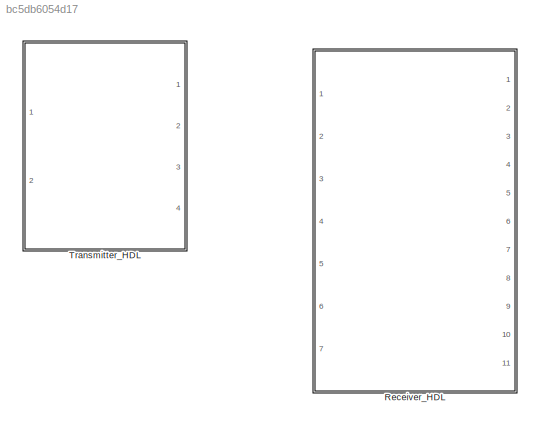
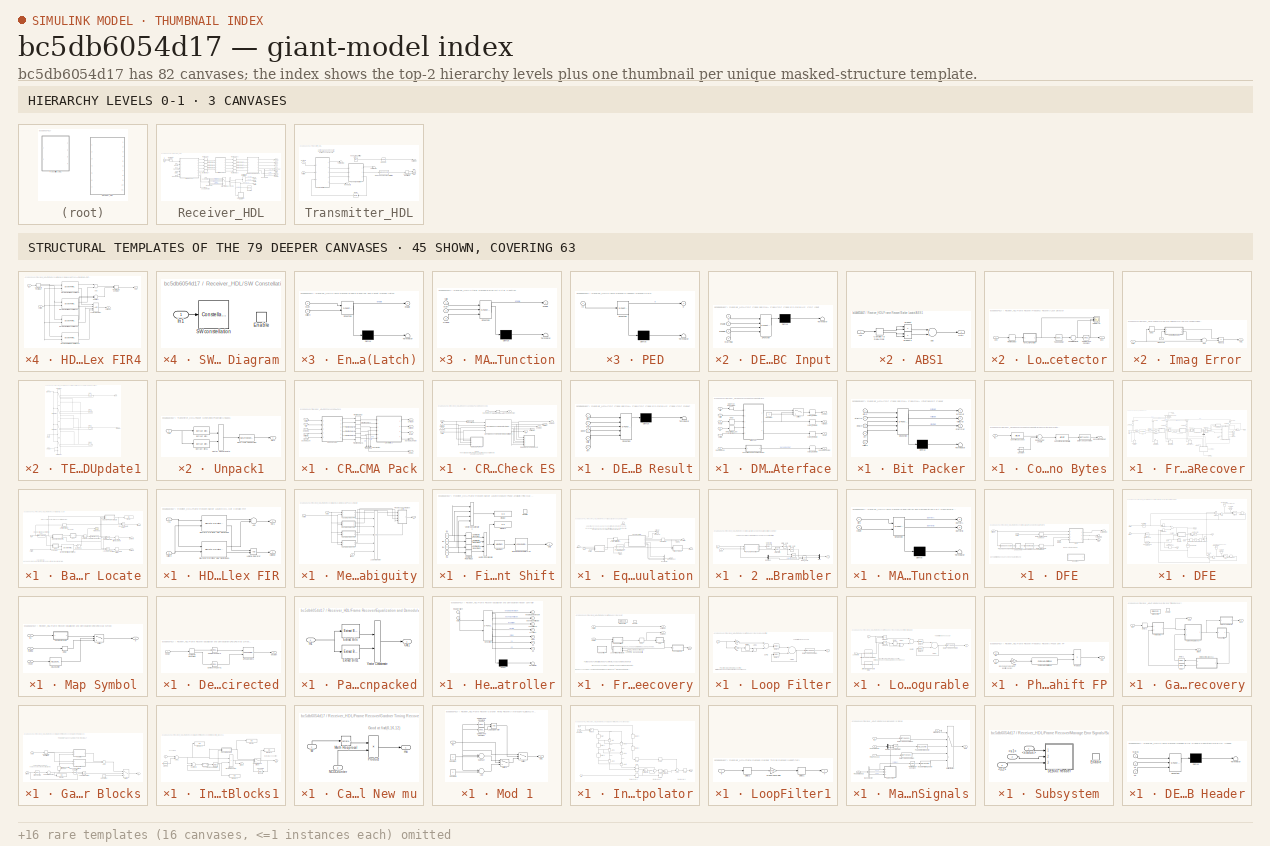
[diagram: thumbnail index - top-2 hierarchy levels (3 canvases) + 45 structural-template representatives of the remaining 79 canvases]
MODEL slx_bc5db6054d17
KIND library
CONFIG AbsTol = auto
CONFIG EnableMultiTasking = off
CONFIG FixedStep = auto
CONFIG MaxStep = auto
CONFIG MinStep = auto
CONFIG RelTol = 1e-3
CONFIG SampleTimeConstraint = Unconstrained
CONFIG Solver = VariableStepAuto
CONFIG SolverName = VariableStepAuto
CONFIG StartTime = 0.0
CONFIG StopTime = 10.0
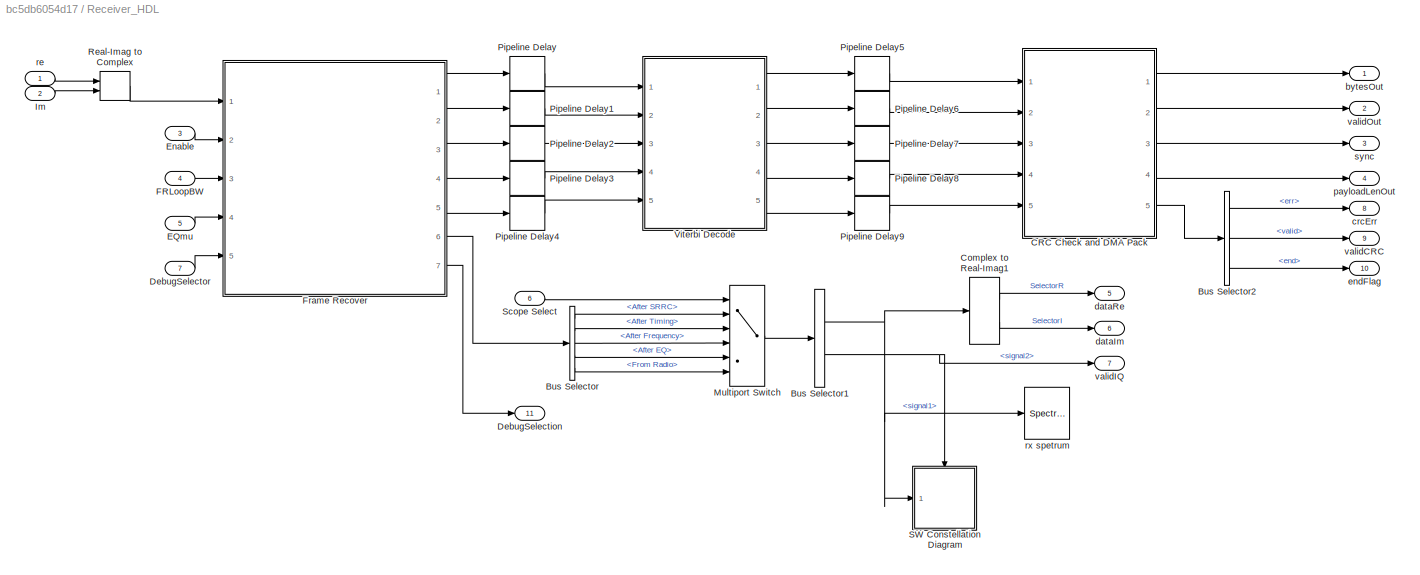
BLOCK [SubSystem] Receiver_HDL
  Ports = [7, 11]
  RequestExecContextInheritance = off
  TreatAsAtomicUnit = on
BLOCK [BusSelector] Receiver_HDL/Bus Selector
  OutputAsBus = off
  OutputSignals = After SRRC,After Timing,After Frequency,After EQ,From Radio
  Ports = [1, 5]
BLOCK [BusSelector] Receiver_HDL/Bus Selector1
  OutputAsBus = off
  OutputSignals = signal1,signal2
  Ports = [1, 2]
BLOCK [BusSelector] Receiver_HDL/Bus Selector2
  OutputAsBus = off
  OutputSignals = err,valid,end
  Ports = [1, 3]
BLOCK [SubSystem] Receiver_HDL/CRC Check and DMA Pack
  Ports = [5, 5]
  RequestExecContextInheritance = off
BLOCK [BusCreator] Receiver_HDL/CRC Check and DMA Pack/Bus Creator
  DisplayOption = bar
  InheritFromInputs = on
  Inputs = 3
  Ports = [3, 1]
BLOCK [SubSystem] Receiver_HDL/CRC Check and DMA Pack/CRC Check ES
  Ports = [5, 6]
  RequestExecContextInheritance = off
BLOCK [Inport] Receiver_HDL/CRC Check and DMA Pack/CRC Check ES/Bits
  IconDisplay = Port number
  Port = 2
BLOCK [Delay] Receiver_HDL/CRC Check and DMA Pack/CRC Check ES/CRC Decode Lag
  DelayLength = crcDecodeLag
  InputPortMap = u0
  Ports = [1, 1]
BLOCK [DataTypeConversion] Receiver_HDL/CRC Check and DMA Pack/CRC Check ES/Convert To fi
  OutDataTypeStr = fixdt(0,1,0)
  RndMeth = Floor
BLOCK [SubSystem] Receiver_HDL/CRC Check and DMA Pack/CRC Check ES/DEBUG: CRC Input
  Commented = on
  ErrorFcn = Stateflow.Translate.translate
  PermitHierarchicalResolution = ExplicitOnly
  Ports = [4]
  RequestExecContextInheritance = off
  SFBlockType = MATLAB Function
  TreatAsAtomicUnit = on
BLOCK [Demux] Receiver_HDL/CRC Check and DMA Pack/CRC Check ES/DEBUG: CRC Input/ Demux 
  Outputs = 1
  Ports = [1, 1]
BLOCK [S-Function] Receiver_HDL/CRC Check and DMA Pack/CRC Check ES/DEBUG: CRC Input/ SFunction 
  EnableBusSupport = off
  FunctionName = sf_sfun
  PortCounts = [4 1]
  Ports = [4, 1]
  SFcnIsStateOwnerBlock = off
  SFunctionDeploymentMode = off
  Tag = Stateflow S-Function RxTxFixedPointLibrary 8
BLOCK [Terminator] Receiver_HDL/CRC Check and DMA Pack/CRC Check ES/DEBUG: CRC Input/ Terminator 
BLOCK [Inport] Receiver_HDL/CRC Check and DMA Pack/CRC Check ES/DEBUG: CRC Input/enable
  IconDisplay = Port number
  Port = 2
BLOCK [Inport] Receiver_HDL/CRC Check and DMA Pack/CRC Check ES/DEBUG: CRC Input/endFlag
  IconDisplay = Port number
  Port = 3
BLOCK [Inport] Receiver_HDL/CRC Check and DMA Pack/CRC Check ES/DEBUG: CRC Input/startFlag
  IconDisplay = Port number
  Port = 4
BLOCK [Inport] Receiver_HDL/CRC Check and DMA Pack/CRC Check ES/DEBUG: CRC Input/u
  IconDisplay = Port number
BLOCK [SubSystem] Receiver_HDL/CRC Check and DMA Pack/CRC Check ES/DEBUG: Check CRC Result
  Commented = on
  ErrorFcn = Stateflow.Translate.translate
  PermitHierarchicalResolution = ExplicitOnly
  Ports = [5]
  RequestExecContextInheritance = off
  SFBlockType = MATLAB Function
  TreatAsAtomicUnit = on
BLOCK [Demux] Receiver_HDL/CRC Check and DMA Pack/CRC Check ES/DEBUG: Check CRC Result/ Demux 
  Outputs = 1
  Ports = [1, 1]
BLOCK [S-Function] Receiver_HDL/CRC Check and DMA Pack/CRC Check ES/DEBUG: Check CRC Result/ SFunction 
  EnableBusSupport = off
  FunctionName = sf_sfun
  PortCounts = [5 1]
  Ports = [5, 1]
  SFcnIsStateOwnerBlock = off
  SFunctionDeploymentMode = off
  Tag = Stateflow S-Function RxTxFixedPointLibrary 7
BLOCK [Terminator] Receiver_HDL/CRC Check and DMA Pack/CRC Check ES/DEBUG: Check CRC Result/ Terminator 
BLOCK [Inport] Receiver_HDL/CRC Check and DMA Pack/CRC Check ES/DEBUG: Check CRC Result/bits
  IconDisplay = Port number
BLOCK [Inport] Receiver_HDL/CRC Check and DMA Pack/CRC Check ES/DEBUG: Check CRC Result/done
  IconDisplay = Port number
  Port = 3
BLOCK [Inport] Receiver_HDL/CRC Check and DMA Pack/CRC Check ES/DEBUG: Check CRC Result/err
  IconDisplay = Port number
  Port = 5
BLOCK [Inport] Receiver_HDL/CRC Check and DMA Pack/CRC Check ES/DEBUG: Check CRC Result/start
  IconDisplay = Port number
  Port = 2
BLOCK [Inport] Receiver_HDL/CRC Check and DMA Pack/CRC Check ES/DEBUG: Check CRC Result/valid
  IconDisplay = Port number
  Port = 4
BLOCK [Reference] Receiver_HDL/CRC Check and DMA Pack/CRC Check ES/General CRC Syndrom Detector HDL Optimized  REF=commcrc2/General CRC
Syndrome
Detector
HDL Optimized
  Ports = [4, 5]
  SourceBlock = commcrc2/General CRC\nSyndrome\nDetector\nHDL Optimized
  SourceProductBaseCode = CM
  SourceProductName = Communications System Toolbox
  SourceType = General CRC Syndrome Detector HDL Optimized
BLOCK [Inport] Receiver_HDL/CRC Check and DMA Pack/CRC Check ES/StartData
  IconDisplay = Port number
  Port = 4
BLOCK [Inport] Receiver_HDL/CRC Check and DMA Pack/CRC Check ES/Valid
  IconDisplay = Port number
BLOCK [Outport] Receiver_HDL/CRC Check and DMA Pack/CRC Check ES/dataOut
  IconDisplay = Port number
  InitialOutput = 0
BLOCK [Inport] Receiver_HDL/CRC Check and DMA Pack/CRC Check ES/endCRC
  IconDisplay = Port number
  Port = 3
BLOCK [Outport] Receiver_HDL/CRC Check and DMA Pack/CRC Check ES/endOut
  IconDisplay = Port number
  InitialOutput = 0
  Port = 3
BLOCK [Outport] Receiver_HDL/CRC Check and DMA Pack/CRC Check ES/err
  IconDisplay = Port number
  InitialOutput = 0
  Port = 5
BLOCK [Inport] Receiver_HDL/CRC Check and DMA Pack/CRC Check ES/payloadLen
  IconDisplay = Port number
  Port = 5
BLOCK [Outport] Receiver_HDL/CRC Check and DMA Pack/CRC Check ES/payloadLenOut
  IconDisplay = Port number
  InitialOutput = 0
  Port = 6
BLOCK [Outport] Receiver_HDL/CRC Check and DMA Pack/CRC Check ES/startOut
  IconDisplay = Port number
  InitialOutput = 0
  Port = 2
BLOCK [Outport] Receiver_HDL/CRC Check and DMA Pack/CRC Check ES/validOut
  IconDisplay = Port number
  InitialOutput = 0
  Port = 4
BLOCK [SubSystem] Receiver_HDL/CRC Check and DMA Pack/DMA Interface
  Ports = [6, 4]
  RequestExecContextInheritance = off
BLOCK [SubSystem] Receiver_HDL/CRC Check and DMA Pack/DMA Interface/Bit Packer
  ErrorFcn = Stateflow.Translate.translate
  PermitHierarchicalResolution = ExplicitOnly
  Ports = [5, 3]
  RequestExecContextInheritance = off
  SFBlockType = MATLAB Function
  TreatAsAtomicUnit = on
BLOCK [Demux] Receiver_HDL/CRC Check and DMA Pack/DMA Interface/Bit Packer/ Demux 
  Outputs = 1
  Ports = [1, 1]
BLOCK [S-Function] Receiver_HDL/CRC Check and DMA Pack/DMA Interface/Bit Packer/ SFunction 
  EnableBusSupport = off
  FunctionName = sf_sfun
  PortCounts = [5 4]
  Ports = [5, 4]
  SFcnIsStateOwnerBlock = off
  SFunctionDeploymentMode = off
  Tag = Stateflow S-Function RxTxFixedPointLibrary 11
BLOCK [Terminator] Receiver_HDL/CRC Check and DMA Pack/DMA Interface/Bit Packer/ Terminator 
BLOCK [Inport] Receiver_HDL/CRC Check and DMA Pack/DMA Interface/Bit Packer/bitIn
  IconDisplay = Port number
BLOCK [Outport] Receiver_HDL/CRC Check and DMA Pack/DMA Interface/Bit Packer/byteOut
  IconDisplay = Port number
BLOCK [Inport] Receiver_HDL/CRC Check and DMA Pack/DMA Interface/Bit Packer/endIn
  IconDisplay = Port number
  Port = 3
BLOCK [Inport] Receiver_HDL/CRC Check and DMA Pack/DMA Interface/Bit Packer/err
  IconDisplay = Port number
  Port = 4
BLOCK [Inport] Receiver_HDL/CRC Check and DMA Pack/DMA Interface/Bit Packer/startIn
  IconDisplay = Port number
  Port = 2
BLOCK [Outport] Receiver_HDL/CRC Check and DMA Pack/DMA Interface/Bit Packer/startOut
  IconDisplay = Port number
  Port = 3
BLOCK [Inport] Receiver_HDL/CRC Check and DMA Pack/DMA Interface/Bit Packer/validIn
  IconDisplay = Port number
  Port = 5
BLOCK [Outport] Receiver_HDL/CRC Check and DMA Pack/DMA Interface/Bit Packer/validOut
  IconDisplay = Port number
  Port = 2
BLOCK [Constant] Receiver_HDL/CRC Check and DMA Pack/DMA Interface/Constant
  OutDataTypeStr = fixdt(0,64,0)
  SampleTime = -1
  Value = 0
BLOCK [SubSystem] Receiver_HDL/CRC Check and DMA Pack/DMA Interface/Convert Payload Length To Bytes
  Ports = [1, 1]
  RequestExecContextInheritance = off
BLOCK [Constant] Receiver_HDL/CRC Check and DMA Pack/DMA Interface/Convert Payload Length To Bytes/Constant
  SampleTime = -1
  Value = uint16(32-1)
BLOCK [ArithShift] Receiver_HDL/CRC Check and DMA Pack/DMA Interface/Convert Payload Length To Bytes/Convert To Bytes From Bits
  BitShiftDirection = Right
  BitShiftNumber = 3
  InputPortMap = u0
  Ports = [1, 1]
BLOCK [ArithShift] Receiver_HDL/CRC Check and DMA Pack/DMA Interface/Convert Payload Length To Bytes/Convert To Uncoded
  BitShiftDirection = Right
  BitShiftNumber = 1
  InputPortMap = u0
  Ports = [1, 1]
BLOCK [DataTypeConversion] Receiver_HDL/CRC Check and DMA Pack/DMA Interface/Convert Payload Length To Bytes/Data Type Conversion
  OutDataTypeStr = uint16
  RndMeth = Floor
  SaturateOnIntegerOverflow = off
BLOCK [Inport] Receiver_HDL/CRC Check and DMA Pack/DMA Interface/Convert Payload Length To Bytes/In1
  IconDisplay = Port number
BLOCK [Sum] Receiver_HDL/CRC Check and DMA Pack/DMA Interface/Convert Payload Length To Bytes/Remove CRC Length
  AccumDataTypeStr = uint16
  InputSameDT = off
  Inputs = +-
  OutDataTypeStr = Inherit: Inherit via internal rule
  Ports = [2, 1]
  SaturateOnIntegerOverflow = off
BLOCK [Outport] Receiver_HDL/CRC Check and DMA Pack/DMA Interface/Convert Payload Length To Bytes/packetLengthOut
  IconDisplay = Port number
BLOCK [DataTypeConversion] Receiver_HDL/CRC Check and DMA Pack/DMA Interface/Data Type Conversion
  OutDataTypeStr = boolean
  RndMeth = Floor
  SaturateOnIntegerOverflow = off
BLOCK [Delay] Receiver_HDL/CRC Check and DMA Pack/DMA Interface/Delay
  DelayLength = 1
  InputPortMap = u0
  Ports = [1, 1]
BLOCK [Delay] Receiver_HDL/CRC Check and DMA Pack/DMA Interface/Delay Error To Last Byte of Out
  DelayLength = 1
  InputPortMap = u0
  Ports = [1, 1]
BLOCK [Switch] Receiver_HDL/CRC Check and DMA Pack/DMA Interface/Switch
  InputSameDT = off
  SaturateOnIntegerOverflow = off
BLOCK [Inport] Receiver_HDL/CRC Check and DMA Pack/DMA Interface/bitIn
  IconDisplay = Port number
BLOCK [Outport] Receiver_HDL/CRC Check and DMA Pack/DMA Interface/byteOut
  IconDisplay = Port number
BLOCK [Inport] Receiver_HDL/CRC Check and DMA Pack/DMA Interface/endIn
  IconDisplay = Port number
  Port = 3
BLOCK [Inport] Receiver_HDL/CRC Check and DMA Pack/DMA Interface/err
  IconDisplay = Port number
  Port = 5
BLOCK [Delay] Receiver_HDL/CRC Check and DMA Pack/DMA Interface/output_register
  DelayLength = 1
  InputPortMap = u0
  Ports = [1, 1]
BLOCK [Delay] Receiver_HDL/CRC Check and DMA Pack/DMA Interface/output_register1
  DelayLength = 1
  InputPortMap = u0
  Ports = [1, 1]
BLOCK [Delay] Receiver_HDL/CRC Check and DMA Pack/DMA Interface/output_register2
  DelayLength = 1
  InputPortMap = u0
  Ports = [1, 1]
BLOCK [Delay] Receiver_HDL/CRC Check and DMA Pack/DMA Interface/output_register3
  DelayLength = 1
  InputPortMap = u0
  Ports = [1, 1]
BLOCK [Inport] Receiver_HDL/CRC Check and DMA Pack/DMA Interface/payloadLen
  IconDisplay = Port number
  Port = 6
BLOCK [Outport] Receiver_HDL/CRC Check and DMA Pack/DMA Interface/payloadLenOut
  IconDisplay = Port number
  Port = 4
BLOCK [Inport] Receiver_HDL/CRC Check and DMA Pack/DMA Interface/startIn
  IconDisplay = Port number
  Port = 2
BLOCK [Outport] Receiver_HDL/CRC Check and DMA Pack/DMA Interface/sync
  IconDisplay = Port number
  Port = 3
BLOCK [Inport] Receiver_HDL/CRC Check and DMA Pack/DMA Interface/validIn
  IconDisplay = Port number
  Port = 4
BLOCK [Outport] Receiver_HDL/CRC Check and DMA Pack/DMA Interface/validOut
  IconDisplay = Port number
  Port = 2
BLOCK [Delay] Receiver_HDL/CRC Check and DMA Pack/Pipeline Delay
  DelayLength = 1
  InputPortMap = u0
  Ports = [1, 1]
BLOCK [Delay] Receiver_HDL/CRC Check and DMA Pack/Pipeline Delay1
  DelayLength = 1
  InputPortMap = u0
  Ports = [1, 1]
BLOCK [Delay] Receiver_HDL/CRC Check and DMA Pack/Pipeline Delay2
  DelayLength = 1
  InputPortMap = u0
  Ports = [1, 1]
BLOCK [Delay] Receiver_HDL/CRC Check and DMA Pack/Pipeline Delay3
  DelayLength = 1
  InputPortMap = u0
  Ports = [1, 1]
BLOCK [Delay] Receiver_HDL/CRC Check and DMA Pack/Pipeline Delay4
  DelayLength = 1
  InputPortMap = u0
  Ports = [1, 1]
BLOCK [Delay] Receiver_HDL/CRC Check and DMA Pack/Pipeline Delay5
  DelayLength = 1
  InputPortMap = u0
  Ports = [1, 1]
BLOCK [Inport] Receiver_HDL/CRC Check and DMA Pack/bits
  IconDisplay = Port number
  Port = 2
  PortDimensions = 1
BLOCK [Outport] Receiver_HDL/CRC Check and DMA Pack/byteOut
  IconDisplay = Port number
BLOCK [Outport] Receiver_HDL/CRC Check and DMA Pack/crcBus
  IconDisplay = Port number
  Port = 5
BLOCK [Inport] Receiver_HDL/CRC Check and DMA Pack/endCRC
  IconDisplay = Port number
  Port = 3
  PortDimensions = 1
BLOCK [Inport] Receiver_HDL/CRC Check and DMA Pack/payloadLen
  IconDisplay = Port number
  Port = 5
  PortDimensions = 1
BLOCK [Outport] Receiver_HDL/CRC Check and DMA Pack/payloadLenOut
  IconDisplay = Port number
  Port = 4
BLOCK [Inport] Receiver_HDL/CRC Check and DMA Pack/startData
  IconDisplay = Port number
  Port = 4
  PortDimensions = 1
BLOCK [Outport] Receiver_HDL/CRC Check and DMA Pack/sync
  IconDisplay = Port number
  Port = 3
BLOCK [Inport] Receiver_HDL/CRC Check and DMA Pack/validIn
  IconDisplay = Port number
  PortDimensions = 1
BLOCK [Outport] Receiver_HDL/CRC Check and DMA Pack/validOut
  IconDisplay = Port number
  Port = 2
BLOCK [ComplexToRealImag] Receiver_HDL/Complex to Real-Imag1
  Ports = [1, 2]
BLOCK [Outport] Receiver_HDL/DebugSelection
  IconDisplay = Port number
  Port = 11
BLOCK [Inport] Receiver_HDL/DebugSelector
  IconDisplay = Port number
  Port = 7
BLOCK [Inport] Receiver_HDL/EQmu
  IconDisplay = Port number
  Port = 5
BLOCK [Inport] Receiver_HDL/Enable
  IconDisplay = Port number
  Port = 3
BLOCK [Inport] Receiver_HDL/FRLoopBW
  IconDisplay = Port number
  Port = 4
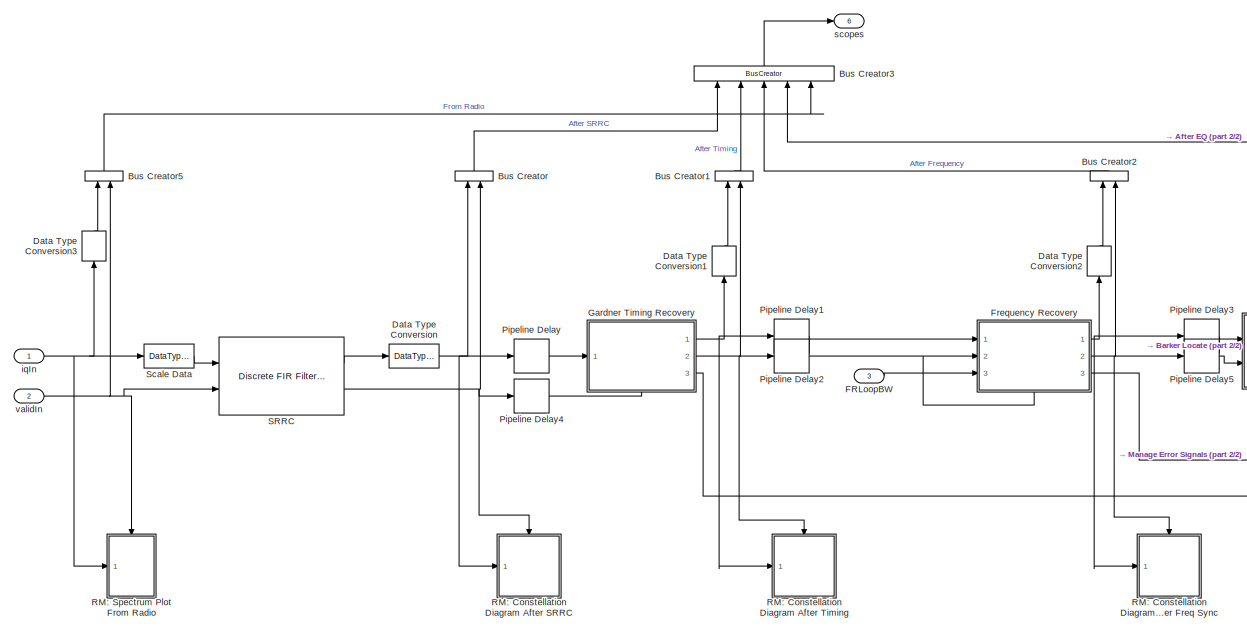
[diagram: Receiver_HDL/Frame Recover - part 1/2, middle left region]
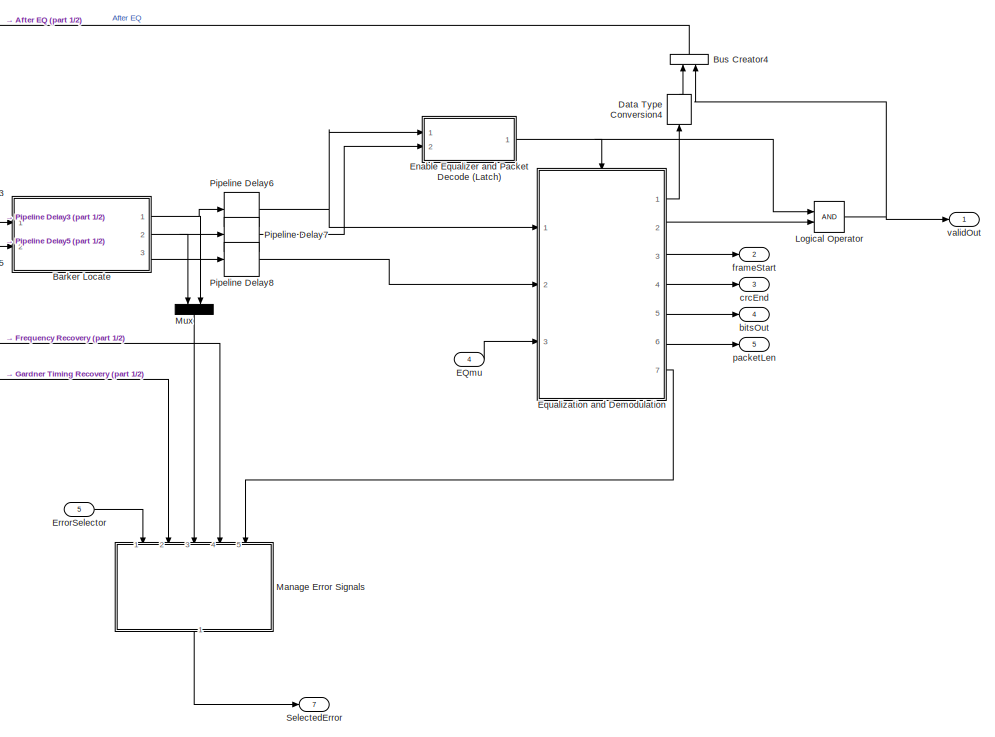
[diagram: Receiver_HDL/Frame Recover - part 2/2, right side, full height]
BLOCK [SubSystem] Receiver_HDL/Frame Recover
  Ports = [5, 7]
  RequestExecContextInheritance = off
BLOCK [SubSystem] Receiver_HDL/Frame Recover/Barker Locate
  Ports = [2, 3]
  RequestExecContextInheritance = off
BLOCK [SubSystem] Receiver_HDL/Frame Recover/Barker Locate/ABS1
  Ports = [1, 1]
  RequestExecContextInheritance = off
BLOCK [Sum] Receiver_HDL/Frame Recover/Barker Locate/ABS1/Add
  InputSameDT = off
  OutDataTypeStr = Inherit: Inherit via internal rule
  Ports = [2, 1]
  SaturateOnIntegerOverflow = off
BLOCK [ComplexToRealImag] Receiver_HDL/Frame Recover/Barker Locate/ABS1/Complex to Real-Imag
  Ports = [1, 2]
BLOCK [Inport] Receiver_HDL/Frame Recover/Barker Locate/ABS1/In1
  IconDisplay = Port number
BLOCK [Outport] Receiver_HDL/Frame Recover/Barker Locate/ABS1/Out1
  IconDisplay = Port number
BLOCK [Product] Receiver_HDL/Frame Recover/Barker Locate/ABS1/Product
  InputSameDT = off
  OutDataTypeStr = int16
  Ports = [2, 1]
  RndMeth = Floor
  SaturateOnIntegerOverflow = off
BLOCK [Product] Receiver_HDL/Frame Recover/Barker Locate/ABS1/Product1
  InputSameDT = off
  OutDataTypeStr = int16
  Ports = [2, 1]
  RndMeth = Floor
  SaturateOnIntegerOverflow = off
BLOCK [SubSystem] Receiver_HDL/Frame Recover/Barker Locate/ABS2
  Ports = [1, 1]
  RequestExecContextInheritance = off
BLOCK [Sum] Receiver_HDL/Frame Recover/Barker Locate/ABS2/Add
  InputSameDT = off
  OutDataTypeStr = Inherit: Inherit via internal rule
  Ports = [2, 1]
BLOCK [ComplexToRealImag] Receiver_HDL/Frame Recover/Barker Locate/ABS2/Complex to Real-Imag
  Ports = [1, 2]
BLOCK [Inport] Receiver_HDL/Frame Recover/Barker Locate/ABS2/In1
  IconDisplay = Port number
BLOCK [Outport] Receiver_HDL/Frame Recover/Barker Locate/ABS2/Out1
  IconDisplay = Port number
BLOCK [Product] Receiver_HDL/Frame Recover/Barker Locate/ABS2/Product
  InputSameDT = off
  OutDataTypeStr = int16
  Ports = [2, 1]
  RndMeth = Floor
  SaturateOnIntegerOverflow = off
BLOCK [Product] Receiver_HDL/Frame Recover/Barker Locate/ABS2/Product1
  InputSameDT = off
  OutDataTypeStr = int16
  Ports = [2, 1]
  RndMeth = Floor
  SaturateOnIntegerOverflow = off
BLOCK [Reference] Receiver_HDL/Frame Recover/Barker Locate/Compare To Constant  REF=simulink/Logic and Bit
Operations/Compare
To Constant
  Ports = [1, 1]
  SourceBlock = simulink/Logic and Bit\nOperations/Compare\nTo Constant
  SourceProductBaseCode = SL
  SourceProductName = Simulink
  SourceType = Compare To Constant
BLOCK [Delay] Receiver_HDL/Frame Recover/Barker Locate/Delay to start training sample 
  DelayLength = 1
  InputPortMap = u0
  Ports = [1, 1]
BLOCK [Outport] Receiver_HDL/Frame Recover/Barker Locate/Detector
  IconDisplay = Port number
BLOCK [Reference] Receiver_HDL/Frame Recover/Barker Locate/Discrete FIR Filter HDL Optimized  REF=dsphdlfiltering/Discrete FIR Filter
HDL Optimized
  Ports = [2, 2]
  SourceBlock = dsphdlfiltering/Discrete FIR Filter\nHDL Optimized
  SourceProductBaseCode = DS
  SourceProductName = DSP System Toolbox
  SourceType = Discrete FIR Filter HDL Optimized
BLOCK [Display] Receiver_HDL/Frame Recover/Barker Locate/Display
  Decimation = 1
  Ports = [1]
BLOCK [DataTypeConversion] Receiver_HDL/Frame Recover/Barker Locate/Force Scaling To something easy
  OutDataTypeStr = int16
  RndMeth = Floor
BLOCK [Delay] Receiver_HDL/Frame Recover/Barker Locate/HDL FIR Has additional Delay
  DelayLength = length(xPreambleSeq(end:-1:1))+4
  InputPortMap = u0
  Ports = [1, 1]
BLOCK [SubSystem] Receiver_HDL/Frame Recover/Barker Locate/HDL Opt Complex FIR
  Ports = [2, 2]
  RequestExecContextInheritance = off
BLOCK [Sum] Receiver_HDL/Frame Recover/Barker Locate/HDL Opt Complex FIR/Add
  AccumDataTypeStr = fixdt(1,16,0)
  InputSameDT = off
  OutDataTypeStr = Inherit: Inherit via internal rule
  Ports = [2, 1]
  SaturateOnIntegerOverflow = off
BLOCK [Reference] Receiver_HDL/Frame Recover/Barker Locate/HDL Opt Complex FIR/Discrete FIR Filter HDL Optimized  REF=dsphdlfiltering/Discrete FIR Filter
HDL Optimized
  Ports = [2, 2]
  SourceBlock = dsphdlfiltering/Discrete FIR Filter\nHDL Optimized
  SourceProductBaseCode = DS
  SourceProductName = DSP System Toolbox
  SourceType = Discrete FIR Filter HDL Optimized
BLOCK [Reference] Receiver_HDL/Frame Recover/Barker Locate/HDL Opt Complex FIR/Discrete FIR Filter HDL Optimized1  REF=dsphdlfiltering/Discrete FIR Filter
HDL Optimized
  Ports = [2, 2]
  SourceBlock = dsphdlfiltering/Discrete FIR Filter\nHDL Optimized
  SourceProductBaseCode = DS
  SourceProductName = DSP System Toolbox
  SourceType = Discrete FIR Filter HDL Optimized
BLOCK [Inport] Receiver_HDL/Frame Recover/Barker Locate/HDL Opt Complex FIR/In1
  IconDisplay = Port number
BLOCK [Logic] Receiver_HDL/Frame Recover/Barker Locate/HDL Opt Complex FIR/Logical Operator
  AllPortsSameDT = off
  OutDataTypeStr = boolean
  Ports = [2, 1]
BLOCK [Outport] Receiver_HDL/Frame Recover/Barker Locate/HDL Opt Complex FIR/Out1
  IconDisplay = Port number
BLOCK [Inport] Receiver_HDL/Frame Recover/Barker Locate/HDL Opt Complex FIR/validIn
  IconDisplay = Port number
  Port = 2
BLOCK [Outport] Receiver_HDL/Frame Recover/Barker Locate/HDL Opt Complex FIR/validOut
  IconDisplay = Port number
  Port = 2
BLOCK [Inport] Receiver_HDL/Frame Recover/Barker Locate/In1
  IconDisplay = Port number
  PortDimensions = 1
BLOCK [Logic] Receiver_HDL/Frame Recover/Barker Locate/Logical Operator
  AllPortsSameDT = off
  Inputs = 3
  OutDataTypeStr = boolean
  Ports = [3, 1]
BLOCK [Logic] Receiver_HDL/Frame Recover/Barker Locate/Logical Operator1
  AllPortsSameDT = off
  OutDataTypeStr = boolean
  Ports = [2, 1]
BLOCK [Delay] Receiver_HDL/Frame Recover/Barker Locate/Match Above Flag Timing
  DelayLength = 1
  InputPortMap = u0
  Ports = [1, 1]
BLOCK [SubSystem] Receiver_HDL/Frame Recover/Barker Locate/Measure Phase Ambiguity
  Ports = [3, 1]
  RequestExecContextInheritance = off
BLOCK [SubSystem] Receiver_HDL/Frame Recover/Barker Locate/Measure Phase Ambiguity/Find Max and Set Output Shift
  Ports = [4, 1, 1]
  RequestExecContextInheritance = off
BLOCK [ComplexToRealImag] Receiver_HDL/Frame Recover/Barker Locate/Measure Phase Ambiguity/Find Max and Set Output Shift/Complex to Real-Imag
  Output = Imag
  Ports = [1, 1]
BLOCK [ComplexToRealImag] Receiver_HDL/Frame Recover/Barker Locate/Measure Phase Ambiguity/Find Max and Set Output Shift/Complex to Real-Imag1
  Output = Imag
  Ports = [1, 1]
BLOCK [ComplexToRealImag] Receiver_HDL/Frame Recover/Barker Locate/Measure Phase Ambiguity/Find Max and Set Output Shift/Complex to Real-Imag2
  Output = Imag
  Ports = [1, 1]
BLOCK [ComplexToRealImag] Receiver_HDL/Frame Recover/Barker Locate/Measure Phase Ambiguity/Find Max and Set Output Shift/Complex to Real-Imag3
  Output = Imag
  Ports = [1, 1]
BLOCK [LookupNDDirect] Receiver_HDL/Frame Recover/Barker Locate/Measure Phase Ambiguity/Find Max and Set Output Shift/Direct Lookup Table (n-D)
  DiagnosticForOutOfRangeInput = Error
  NumberOfTableDimensions = 1
  Ports = [1, 1]
  Table = exp(-(0:pi/2:(pi*3/2)) .* 1i).'
  TableDataTypeStr = fixdt(1,16,13)
BLOCK [Display] Receiver_HDL/Frame Recover/Barker Locate/Measure Phase Ambiguity/Find Max and Set Output Shift/Display
  Decimation = 1
  Ports = [1]
BLOCK [Display] Receiver_HDL/Frame Recover/Barker Locate/Measure Phase Ambiguity/Find Max and Set Output Shift/Display1
  Decimation = 1
  Ports = [1]
BLOCK [EnablePort] Receiver_HDL/Frame Recover/Barker Locate/Measure Phase Ambiguity/Find Max and Set Output Shift/Enable
  Ports = []
BLOCK [Inport] Receiver_HDL/Frame Recover/Barker Locate/Measure Phase Ambiguity/Find Max and Set Output Shift/In1
  IconDisplay = Port number
BLOCK [Inport] Receiver_HDL/Frame Recover/Barker Locate/Measure Phase Ambiguity/Find Max and Set Output Shift/In2
  IconDisplay = Port number
  Port = 2
BLOCK [Inport] Receiver_HDL/Frame Recover/Barker Locate/Measure Phase Ambiguity/Find Max and Set Output Shift/In4
  IconDisplay = Port number
  Port = 3
BLOCK [Inport] Receiver_HDL/Frame Recover/Barker Locate/Measure Phase Ambiguity/Find Max and Set Output Shift/In5
  IconDisplay = Port number
  Port = 4
BLOCK [Reference] Receiver_HDL/Frame Recover/Barker Locate/Measure Phase Ambiguity/Find Max and Set Output Shift/Maximum  REF=dspstat3/Maximum
  Ports = [1, 1]
  SourceBlock = dspstat3/Maximum
  SourceProductBaseCode = DS
  SourceProductName = DSP System Toolbox
  SourceType = Maximum
  UserDataPersistent = on
BLOCK [Outport] Receiver_HDL/Frame Recover/Barker Locate/Measure Phase Ambiguity/Find Max and Set Output Shift/Out1
  IconDisplay = Port number
  InitialOutput = 0
BLOCK [Concatenate] Receiver_HDL/Frame Recover/Barker Locate/Measure Phase Ambiguity/Find Max and Set Output Shift/Vector Concatenate
  NumInputs = 4
  Ports = [4, 1]
BLOCK [Concatenate] Receiver_HDL/Frame Recover/Barker Locate/Measure Phase Ambiguity/Find Max and Set Output Shift/Vector Concatenate1
  NumInputs = 4
  Ports = [4, 1]
BLOCK [SubSystem] Receiver_HDL/Frame Recover/Barker Locate/Measure Phase Ambiguity/HDL Opt Complex FIR4
  Ports = [2, 2]
  RequestExecContextInheritance = off
BLOCK [Sum] Receiver_HDL/Frame Recover/Barker Locate/Measure Phase Ambiguity/HDL Opt Complex FIR4/Add
  AccumDataTypeStr = fixdt(1,16,0)
  InputSameDT = off
  Inputs = +-
  OutDataTypeStr = Inherit: Inherit via internal rule
  Ports = [2, 1]
  SaturateOnIntegerOverflow = off
BLOCK [ComplexToRealImag] Receiver_HDL/Frame Recover/Barker Locate/Measure Phase Ambiguity/HDL Opt Complex FIR4/Complex to Real-Imag
  Ports = [1, 2]
BLOCK [Reference] Receiver_HDL/Frame Recover/Barker Locate/Measure Phase Ambiguity/HDL Opt Complex FIR4/Discrete FIR Filter HDL Optimized  REF=dsphdlfiltering/Discrete FIR Filter
HDL Optimized
  Ports = [2, 2]
  SourceBlock = dsphdlfiltering/Discrete FIR Filter\nHDL Optimized
  SourceProductBaseCode = DS
  SourceProductName = DSP System Toolbox
  SourceType = Discrete FIR Filter HDL Optimized
BLOCK [Reference] Receiver_HDL/Frame Recover/Barker Locate/Measure Phase Ambiguity/HDL Opt Complex FIR4/Discrete FIR Filter HDL Optimized1  REF=dsphdlfiltering/Discrete FIR Filter
HDL Optimized
  Ports = [2, 2]
  SourceBlock = dsphdlfiltering/Discrete FIR Filter\nHDL Optimized
  SourceProductBaseCode = DS
  SourceProductName = DSP System Toolbox
  SourceType = Discrete FIR Filter HDL Optimized
BLOCK [Reference] Receiver_HDL/Frame Recover/Barker Locate/Measure Phase Ambiguity/HDL Opt Complex FIR4/Discrete FIR Filter HDL Optimized2  REF=dsphdlfiltering/Discrete FIR Filter
HDL Optimized
  Ports = [2, 2]
  SourceBlock = dsphdlfiltering/Discrete FIR Filter\nHDL Optimized
  SourceProductBaseCode = DS
  SourceProductName = DSP System Toolbox
  SourceType = Discrete FIR Filter HDL Optimized
BLOCK [Reference] Receiver_HDL/Frame Recover/Barker Locate/Measure Phase Ambiguity/HDL Opt Complex FIR4/Discrete FIR Filter HDL Optimized3  REF=dsphdlfiltering/Discrete FIR Filter
HDL Optimized
  Ports = [2, 2]
  SourceBlock = dsphdlfiltering/Discrete FIR Filter\nHDL Optimized
  SourceProductBaseCode = DS
  SourceProductName = DSP System Toolbox
  SourceType = Discrete FIR Filter HDL Optimized
BLOCK [Inport] Receiver_HDL/Frame Recover/Barker Locate/Measure Phase Ambiguity/HDL Opt Complex FIR4/In1
  IconDisplay = Port number
BLOCK [Logic] Receiver_HDL/Frame Recover/Barker Locate/Measure Phase Ambiguity/HDL Opt Complex FIR4/Logical Operator
  AllPortsSameDT = off
  Inputs = 4
  OutDataTypeStr = boolean
  Ports = [4, 1]
BLOCK [Outport] Receiver_HDL/Frame Recover/Barker Locate/Measure Phase Ambiguity/HDL Opt Complex FIR4/Out1
  IconDisplay = Port number
BLOCK [RealImagToComplex] Receiver_HDL/Frame Recover/Barker Locate/Measure Phase Ambiguity/HDL Opt Complex FIR4/Real-Imag to Complex
  Ports = [2, 1]
BLOCK [Sum] Receiver_HDL/Frame Recover/Barker Locate/Measure Phase Ambiguity/HDL Opt Complex FIR4/Subtract
  InputSameDT = off
  OutDataTypeStr = int16
  Ports = [2, 1]
  SaturateOnIntegerOverflow = off
BLOCK [Inport] Receiver_HDL/Frame Recover/Barker Locate/Measure Phase Ambiguity/HDL Opt Complex FIR4/validIn
  IconDisplay = Port number
  Port = 2
BLOCK [Outport] Receiver_HDL/Frame Recover/Barker Locate/Measure Phase Ambiguity/HDL Opt Complex FIR4/validOut
  IconDisplay = Port number
  Port = 2
BLOCK [SubSystem] Receiver_HDL/Frame Recover/Barker Locate/Measure Phase Ambiguity/HDL Opt Complex FIR5
  Ports = [2, 2]
  RequestExecContextInheritance = off
BLOCK [Sum] Receiver_HDL/Frame Recover/Barker Locate/Measure Phase Ambiguity/HDL Opt Complex FIR5/Add
  AccumDataTypeStr = fixdt(1,16,0)
  InputSameDT = off
  Inputs = +-
  OutDataTypeStr = Inherit: Inherit via internal rule
  Ports = [2, 1]
  SaturateOnIntegerOverflow = off
BLOCK [ComplexToRealImag] Receiver_HDL/Frame Recover/Barker Locate/Measure Phase Ambiguity/HDL Opt Complex FIR5/Complex to Real-Imag
  Ports = [1, 2]
BLOCK [Reference] Receiver_HDL/Frame Recover/Barker Locate/Measure Phase Ambiguity/HDL Opt Complex FIR5/Discrete FIR Filter HDL Optimized  REF=dsphdlfiltering/Discrete FIR Filter
HDL Optimized
  Ports = [2, 2]
  SourceBlock = dsphdlfiltering/Discrete FIR Filter\nHDL Optimized
  SourceProductBaseCode = DS
  SourceProductName = DSP System Toolbox
  SourceType = Discrete FIR Filter HDL Optimized
BLOCK [Reference] Receiver_HDL/Frame Recover/Barker Locate/Measure Phase Ambiguity/HDL Opt Complex FIR5/Discrete FIR Filter HDL Optimized1  REF=dsphdlfiltering/Discrete FIR Filter
HDL Optimized
  Ports = [2, 2]
  SourceBlock = dsphdlfiltering/Discrete FIR Filter\nHDL Optimized
  SourceProductBaseCode = DS
  SourceProductName = DSP System Toolbox
  SourceType = Discrete FIR Filter HDL Optimized
BLOCK [Reference] Receiver_HDL/Frame Recover/Barker Locate/Measure Phase Ambiguity/HDL Opt Complex FIR5/Discrete FIR Filter HDL Optimized2  REF=dsphdlfiltering/Discrete FIR Filter
HDL Optimized
  Ports = [2, 2]
  SourceBlock = dsphdlfiltering/Discrete FIR Filter\nHDL Optimized
  SourceProductBaseCode = DS
  SourceProductName = DSP System Toolbox
  SourceType = Discrete FIR Filter HDL Optimized
BLOCK [Reference] Receiver_HDL/Frame Recover/Barker Locate/Measure Phase Ambiguity/HDL Opt Complex FIR5/Discrete FIR Filter HDL Optimized3  REF=dsphdlfiltering/Discrete FIR Filter
HDL Optimized
  Ports = [2, 2]
  SourceBlock = dsphdlfiltering/Discrete FIR Filter\nHDL Optimized
  SourceProductBaseCode = DS
  SourceProductName = DSP System Toolbox
  SourceType = Discrete FIR Filter HDL Optimized
BLOCK [Inport] Receiver_HDL/Frame Recover/Barker Locate/Measure Phase Ambiguity/HDL Opt Complex FIR5/In1
  IconDisplay = Port number
BLOCK [Logic] Receiver_HDL/Frame Recover/Barker Locate/Measure Phase Ambiguity/HDL Opt Complex FIR5/Logical Operator
  AllPortsSameDT = off
  Inputs = 4
  OutDataTypeStr = boolean
  Ports = [4, 1]
BLOCK [Outport] Receiver_HDL/Frame Recover/Barker Locate/Measure Phase Ambiguity/HDL Opt Complex FIR5/Out1
  IconDisplay = Port number
BLOCK [RealImagToComplex] Receiver_HDL/Frame Recover/Barker Locate/Measure Phase Ambiguity/HDL Opt Complex FIR5/Real-Imag to Complex
  Ports = [2, 1]
BLOCK [Sum] Receiver_HDL/Frame Recover/Barker Locate/Measure Phase Ambiguity/HDL Opt Complex FIR5/Subtract
  InputSameDT = off
  OutDataTypeStr = int16
  Ports = [2, 1]
  SaturateOnIntegerOverflow = off
BLOCK [Inport] Receiver_HDL/Frame Recover/Barker Locate/Measure Phase Ambiguity/HDL Opt Complex FIR5/validIn
  IconDisplay = Port number
  Port = 2
BLOCK [Outport] Receiver_HDL/Frame Recover/Barker Locate/Measure Phase Ambiguity/HDL Opt Complex FIR5/validOut
  IconDisplay = Port number
  Port = 2
BLOCK [SubSystem] Receiver_HDL/Frame Recover/Barker Locate/Measure Phase Ambiguity/HDL Opt Complex FIR6
  Ports = [2, 2]
  RequestExecContextInheritance = off
BLOCK [Sum] Receiver_HDL/Frame Recover/Barker Locate/Measure Phase Ambiguity/HDL Opt Complex FIR6/Add
  AccumDataTypeStr = fixdt(1,16,0)
  InputSameDT = off
  Inputs = +-
  OutDataTypeStr = Inherit: Inherit via internal rule
  Ports = [2, 1]
  SaturateOnIntegerOverflow = off
BLOCK [ComplexToRealImag] Receiver_HDL/Frame Recover/Barker Locate/Measure Phase Ambiguity/HDL Opt Complex FIR6/Complex to Real-Imag
  Ports = [1, 2]
BLOCK [Reference] Receiver_HDL/Frame Recover/Barker Locate/Measure Phase Ambiguity/HDL Opt Complex FIR6/Discrete FIR Filter HDL Optimized  REF=dsphdlfiltering/Discrete FIR Filter
HDL Optimized
  Ports = [2, 2]
  SourceBlock = dsphdlfiltering/Discrete FIR Filter\nHDL Optimized
  SourceProductBaseCode = DS
  SourceProductName = DSP System Toolbox
  SourceType = Discrete FIR Filter HDL Optimized
BLOCK [Reference] Receiver_HDL/Frame Recover/Barker Locate/Measure Phase Ambiguity/HDL Opt Complex FIR6/Discrete FIR Filter HDL Optimized1  REF=dsphdlfiltering/Discrete FIR Filter
HDL Optimized
  Ports = [2, 2]
  SourceBlock = dsphdlfiltering/Discrete FIR Filter\nHDL Optimized
  SourceProductBaseCode = DS
  SourceProductName = DSP System Toolbox
  SourceType = Discrete FIR Filter HDL Optimized
BLOCK [Reference] Receiver_HDL/Frame Recover/Barker Locate/Measure Phase Ambiguity/HDL Opt Complex FIR6/Discrete FIR Filter HDL Optimized2  REF=dsphdlfiltering/Discrete FIR Filter
HDL Optimized
  Ports = [2, 2]
  SourceBlock = dsphdlfiltering/Discrete FIR Filter\nHDL Optimized
  SourceProductBaseCode = DS
  SourceProductName = DSP System Toolbox
  SourceType = Discrete FIR Filter HDL Optimized
BLOCK [Reference] Receiver_HDL/Frame Recover/Barker Locate/Measure Phase Ambiguity/HDL Opt Complex FIR6/Discrete FIR Filter HDL Optimized3  REF=dsphdlfiltering/Discrete FIR Filter
HDL Optimized
  Ports = [2, 2]
  SourceBlock = dsphdlfiltering/Discrete FIR Filter\nHDL Optimized
  SourceProductBaseCode = DS
  SourceProductName = DSP System Toolbox
  SourceType = Discrete FIR Filter HDL Optimized
BLOCK [Inport] Receiver_HDL/Frame Recover/Barker Locate/Measure Phase Ambiguity/HDL Opt Complex FIR6/In1
  IconDisplay = Port number
BLOCK [Logic] Receiver_HDL/Frame Recover/Barker Locate/Measure Phase Ambiguity/HDL Opt Complex FIR6/Logical Operator
  AllPortsSameDT = off
  Inputs = 4
  OutDataTypeStr = boolean
  Ports = [4, 1]
BLOCK [Outport] Receiver_HDL/Frame Recover/Barker Locate/Measure Phase Ambiguity/HDL Opt Complex FIR6/Out1
  IconDisplay = Port number
BLOCK [RealImagToComplex] Receiver_HDL/Frame Recover/Barker Locate/Measure Phase Ambiguity/HDL Opt Complex FIR6/Real-Imag to Complex
  Ports = [2, 1]
BLOCK [Sum] Receiver_HDL/Frame Recover/Barker Locate/Measure Phase Ambiguity/HDL Opt Complex FIR6/Subtract
  InputSameDT = off
  OutDataTypeStr = int16
  Ports = [2, 1]
  SaturateOnIntegerOverflow = off
BLOCK [Inport] Receiver_HDL/Frame Recover/Barker Locate/Measure Phase Ambiguity/HDL Opt Complex FIR6/validIn
  IconDisplay = Port number
  Port = 2
BLOCK [Outport] Receiver_HDL/Frame Recover/Barker Locate/Measure Phase Ambiguity/HDL Opt Complex FIR6/validOut
  IconDisplay = Port number
  Port = 2
BLOCK [SubSystem] Receiver_HDL/Frame Recover/Barker Locate/Measure Phase Ambiguity/HDL Opt Complex FIR7
  Ports = [2, 2]
  RequestExecContextInheritance = off
BLOCK [Sum] Receiver_HDL/Frame Recover/Barker Locate/Measure Phase Ambiguity/HDL Opt Complex FIR7/Add
  AccumDataTypeStr = fixdt(1,16,0)
  InputSameDT = off
  Inputs = +-
  OutDataTypeStr = Inherit: Inherit via internal rule
  Ports = [2, 1]
  SaturateOnIntegerOverflow = off
BLOCK [ComplexToRealImag] Receiver_HDL/Frame Recover/Barker Locate/Measure Phase Ambiguity/HDL Opt Complex FIR7/Complex to Real-Imag
  Ports = [1, 2]
BLOCK [Reference] Receiver_HDL/Frame Recover/Barker Locate/Measure Phase Ambiguity/HDL Opt Complex FIR7/Discrete FIR Filter HDL Optimized  REF=dsphdlfiltering/Discrete FIR Filter
HDL Optimized
  Ports = [2, 2]
  SourceBlock = dsphdlfiltering/Discrete FIR Filter\nHDL Optimized
  SourceProductBaseCode = DS
  SourceProductName = DSP System Toolbox
  SourceType = Discrete FIR Filter HDL Optimized
BLOCK [Reference] Receiver_HDL/Frame Recover/Barker Locate/Measure Phase Ambiguity/HDL Opt Complex FIR7/Discrete FIR Filter HDL Optimized1  REF=dsphdlfiltering/Discrete FIR Filter
HDL Optimized
  Ports = [2, 2]
  SourceBlock = dsphdlfiltering/Discrete FIR Filter\nHDL Optimized
  SourceProductBaseCode = DS
  SourceProductName = DSP System Toolbox
  SourceType = Discrete FIR Filter HDL Optimized
BLOCK [Reference] Receiver_HDL/Frame Recover/Barker Locate/Measure Phase Ambiguity/HDL Opt Complex FIR7/Discrete FIR Filter HDL Optimized2  REF=dsphdlfiltering/Discrete FIR Filter
HDL Optimized
  Ports = [2, 2]
  SourceBlock = dsphdlfiltering/Discrete FIR Filter\nHDL Optimized
  SourceProductBaseCode = DS
  SourceProductName = DSP System Toolbox
  SourceType = Discrete FIR Filter HDL Optimized
BLOCK [Reference] Receiver_HDL/Frame Recover/Barker Locate/Measure Phase Ambiguity/HDL Opt Complex FIR7/Discrete FIR Filter HDL Optimized3  REF=dsphdlfiltering/Discrete FIR Filter
HDL Optimized
  Ports = [2, 2]
  SourceBlock = dsphdlfiltering/Discrete FIR Filter\nHDL Optimized
  SourceProductBaseCode = DS
  SourceProductName = DSP System Toolbox
  SourceType = Discrete FIR Filter HDL Optimized
BLOCK [Inport] Receiver_HDL/Frame Recover/Barker Locate/Measure Phase Ambiguity/HDL Opt Complex FIR7/In1
  IconDisplay = Port number
BLOCK [Logic] Receiver_HDL/Frame Recover/Barker Locate/Measure Phase Ambiguity/HDL Opt Complex FIR7/Logical Operator
  AllPortsSameDT = off
  Inputs = 4
  OutDataTypeStr = boolean
  Ports = [4, 1]
BLOCK [Outport] Receiver_HDL/Frame Recover/Barker Locate/Measure Phase Ambiguity/HDL Opt Complex FIR7/Out1
  IconDisplay = Port number
BLOCK [RealImagToComplex] Receiver_HDL/Frame Recover/Barker Locate/Measure Phase Ambiguity/HDL Opt Complex FIR7/Real-Imag to Complex
  Ports = [2, 1]
BLOCK [Sum] Receiver_HDL/Frame Recover/Barker Locate/Measure Phase Ambiguity/HDL Opt Complex FIR7/Subtract
  InputSameDT = off
  OutDataTypeStr = int16
  Ports = [2, 1]
  SaturateOnIntegerOverflow = off
BLOCK [Inport] Receiver_HDL/Frame Recover/Barker Locate/Measure Phase Ambiguity/HDL Opt Complex FIR7/validIn
  IconDisplay = Port number
  Port = 2
BLOCK [Outport] Receiver_HDL/Frame Recover/Barker Locate/Measure Phase Ambiguity/HDL Opt Complex FIR7/validOut
  IconDisplay = Port number
  Port = 2
BLOCK [Logic] Receiver_HDL/Frame Recover/Barker Locate/Measure Phase Ambiguity/Logical Operator
  AllPortsSameDT = off
  Inputs = 5
  OutDataTypeStr = boolean
  Ports = [5, 1]
BLOCK [Outport] Receiver_HDL/Frame Recover/Barker Locate/Measure Phase Ambiguity/PA
  IconDisplay = Port number
  InitialOutput = 0
BLOCK [Inport] Receiver_HDL/Frame Recover/Barker Locate/Measure Phase Ambiguity/data
  IconDisplay = Port number
  OutDataTypeStr = int16
BLOCK [Inport] Receiver_HDL/Frame Recover/Barker Locate/Measure Phase Ambiguity/trigger
  IconDisplay = Port number
  Port = 2
BLOCK [Inport] Receiver_HDL/Frame Recover/Barker Locate/Measure Phase Ambiguity/validIn
  IconDisplay = Port number
  Port = 3
BLOCK [Product] Receiver_HDL/Frame Recover/Barker Locate/Normalize
  InputSameDT = off
  Inputs = **
  OutDataTypeStr = int16
  Ports = [2, 1]
  RndMeth = Simplest
BLOCK [Product] Receiver_HDL/Frame Recover/Barker Locate/Phase Ambiguity Correct
  InputSameDT = off
  OutDataTypeStr = fixdt(1,16,14)
  Ports = [2, 1]
  RndMeth = Floor
  SaturateOnIntegerOverflow = off
BLOCK [Product] Receiver_HDL/Frame Recover/Barker Locate/Reciprocal
  InputSameDT = off
  Inputs = /
  OutDataTypeStr = Inherit: Inherit via internal rule
  Ports = [1, 1]
BLOCK [Outport] Receiver_HDL/Frame Recover/Barker Locate/Signal
  IconDisplay = Port number
  Port = 3
BLOCK [Scope] Receiver_HDL/Frame Recover/Barker Locate/Time Scope
  DefaultConfigurationName = spbscopes.TimeScopeBlockCfg
  Floating = off
  NumInputPorts = 1
  Ports = [1]
  ScopeSpecificationString = spbscopes.TimeScopeBlockCfg('CurrentConfiguration', extmgr.ConfigurationSet(extmgr.Configuration('Core','General UI',true,'FigureColor',[0.156862745098039 0.156862745098039 0.156862745098039]),extmgr.Configuration('Core','Source UI',true),extmgr.Configuration('Sources','WiredSimulink',true),extmgr.Configuration('Visuals','Time Domain',true,'DisplayPropertyDefaults',struct('MinYLimReal','-0.5','Max...<+1487ch>
  UserDataPersistent = on
BLOCK [Inport] Receiver_HDL/Frame Recover/Barker Locate/validIn
  IconDisplay = Port number
  Port = 2
  PortDimensions = 1
BLOCK [Outport] Receiver_HDL/Frame Recover/Barker Locate/validOut
  IconDisplay = Port number
  Port = 2
BLOCK [BusCreator] Receiver_HDL/Frame Recover/Bus Creator
  DisplayOption = bar
  InheritFromInputs = on
  Inputs = 2
  Ports = [2, 1]
BLOCK [BusCreator] Receiver_HDL/Frame Recover/Bus Creator1
  DisplayOption = bar
  InheritFromInputs = on
  Inputs = 2
  Ports = [2, 1]
BLOCK [BusCreator] Receiver_HDL/Frame Recover/Bus Creator2
  DisplayOption = bar
  InheritFromInputs = on
  Inputs = 2
  Ports = [2, 1]
BLOCK [BusCreator] Receiver_HDL/Frame Recover/Bus Creator3
  DisplayOption = bar
  InheritFromInputs = on
  Inputs = 5
  Ports = [5, 1]
BLOCK [BusCreator] Receiver_HDL/Frame Recover/Bus Creator4
  DisplayOption = bar
  InheritFromInputs = on
  Inputs = 2
  Ports = [2, 1]
BLOCK [BusCreator] Receiver_HDL/Frame Recover/Bus Creator5
  DisplayOption = bar
  InheritFromInputs = on
  Inputs = 2
  Ports = [2, 1]
BLOCK [DataTypeConversion] Receiver_HDL/Frame Recover/Data Type Conversion
  OutDataTypeStr = fixdt(1,16,13)
  RndMeth = Floor
  SaturateOnIntegerOverflow = off
BLOCK [DataTypeConversion] Receiver_HDL/Frame Recover/Data Type Conversion1
  OutDataTypeStr = fixdt(1,16,13)
  RndMeth = Floor
  SaturateOnIntegerOverflow = off
BLOCK [DataTypeConversion] Receiver_HDL/Frame Recover/Data Type Conversion2
  OutDataTypeStr = fixdt(1,16,13)
  RndMeth = Floor
  SaturateOnIntegerOverflow = off
BLOCK [DataTypeConversion] Receiver_HDL/Frame Recover/Data Type Conversion3
  OutDataTypeStr = fixdt(1,16,13)
  RndMeth = Floor
  SaturateOnIntegerOverflow = off
BLOCK [DataTypeConversion] Receiver_HDL/Frame Recover/Data Type Conversion4
  OutDataTypeStr = fixdt(1,16,13)
  RndMeth = Floor
  SaturateOnIntegerOverflow = off
BLOCK [Inport] Receiver_HDL/Frame Recover/EQmu
  IconDisplay = Port number
  Port = 4
BLOCK [SubSystem] Receiver_HDL/Frame Recover/Enable Equalizer and Packet Decode (Latch)
  ErrorFcn = Stateflow.Translate.translate
  PermitHierarchicalResolution = ExplicitOnly
  Ports = [2, 1]
  RequestExecContextInheritance = off
  SFBlockType = MATLAB Function
  TreatAsAtomicUnit = on
BLOCK [Demux] Receiver_HDL/Frame Recover/Enable Equalizer and Packet Decode (Latch)/ Demux 
  Outputs = 1
  Ports = [1, 1]
BLOCK [S-Function] Receiver_HDL/Frame Recover/Enable Equalizer and Packet Decode (Latch)/ SFunction 
  EnableBusSupport = off
  FunctionName = sf_sfun
  PortCounts = [2 2]
  Ports = [2, 2]
  SFcnIsStateOwnerBlock = off
  SFunctionDeploymentMode = off
  Tag = Stateflow S-Function RxTxFixedPointLibrary 12
BLOCK [Terminator] Receiver_HDL/Frame Recover/Enable Equalizer and Packet Decode (Latch)/ Terminator 
BLOCK [Outport] Receiver_HDL/Frame Recover/Enable Equalizer and Packet Decode (Latch)/enable
  IconDisplay = Port number
BLOCK [Inport] Receiver_HDL/Frame Recover/Enable Equalizer and Packet Decode (Latch)/start
  IconDisplay = Port number
BLOCK [Inport] Receiver_HDL/Frame Recover/Enable Equalizer and Packet Decode (Latch)/validIn
  IconDisplay = Port number
  Port = 2
BLOCK [SubSystem] Receiver_HDL/Frame Recover/Equalization and Demodulation
  Ports = [3, 7, 1]
  RequestExecContextInheritance = off
BLOCK [SubSystem] Receiver_HDL/Frame Recover/Equalization and Demodulation/2 Bit Descrambler
  Ports = [2, 1]
  RequestExecContextInheritance = off
BLOCK [Demux] Receiver_HDL/Frame Recover/Equalization and Demodulation/2 Bit Descrambler/Demux1
  DisplayOption = bar
  Outputs = 2
  Ports = [1, 2]
BLOCK [SubSystem] Receiver_HDL/Frame Recover/Equalization and Demodulation/2 Bit Descrambler/MATLAB Function
  ErrorFcn = Stateflow.Translate.translate
  PermitHierarchicalResolution = ExplicitOnly
  Ports = [2, 2]
  RequestExecContextInheritance = off
  SFBlockType = MATLAB Function
  TreatAsAtomicUnit = on
BLOCK [Demux] Receiver_HDL/Frame Recover/Equalization and Demodulation/2 Bit Descrambler/MATLAB Function/ Demux 
  Outputs = 1
  Ports = [1, 1]
BLOCK [S-Function] Receiver_HDL/Frame Recover/Equalization and Demodulation/2 Bit Descrambler/MATLAB Function/ SFunction 
  EnableBusSupport = off
  FunctionName = sf_sfun
  PortCounts = [2 3]
  Ports = [2, 3]
  SFcnIsStateOwnerBlock = off
  SFunctionDeploymentMode = off
  Tag = Stateflow S-Function RxTxFixedPointLibrary 10
BLOCK [Terminator] Receiver_HDL/Frame Recover/Equalization and Demodulation/2 Bit Descrambler/MATLAB Function/ Terminator 
BLOCK [Inport] Receiver_HDL/Frame Recover/Equalization and Demodulation/2 Bit Descrambler/MATLAB Function/bits
  IconDisplay = Port number
BLOCK [Outport] Receiver_HDL/Frame Recover/Equalization and Demodulation/2 Bit Descrambler/MATLAB Function/bufferA
  IconDisplay = Port number
BLOCK [Outport] Receiver_HDL/Frame Recover/Equalization and Demodulation/2 Bit Descrambler/MATLAB Function/bufferB
  IconDisplay = Port number
  Port = 2
BLOCK [Inport] Receiver_HDL/Frame Recover/Equalization and Demodulation/2 Bit Descrambler/MATLAB Function/reset
  IconDisplay = Port number
  Port = 2
BLOCK [Mux] Receiver_HDL/Frame Recover/Equalization and Demodulation/2 Bit Descrambler/Mux
  DisplayOption = bar
  Inputs = 2
  Ports = [2, 1]
BLOCK [Selector] Receiver_HDL/Frame Recover/Equalization and Demodulation/2 Bit Descrambler/Selector1
  IndexOptions = Index vector (dialog)
  Indices = find(polynom(2:end))
  OutputSizes = 1
  Ports = [1, 1]
BLOCK [Selector] Receiver_HDL/Frame Recover/Equalization and Demodulation/2 Bit Descrambler/Selector2
  IndexOptions = Index vector (dialog)
  Indices = find(polynom(2:end))
  OutputSizes = 1
  Ports = [1, 1]
BLOCK [Logic] Receiver_HDL/Frame Recover/Equalization and Demodulation/2 Bit Descrambler/input_xor1
  AllPortsSameDT = off
  IconShape = distinctive
  Operator = XOR
  OutDataTypeStr = boolean
  Ports = [2, 1]
BLOCK [Logic] Receiver_HDL/Frame Recover/Equalization and Demodulation/2 Bit Descrambler/input_xor2
  AllPortsSameDT = off
  IconShape = distinctive
  Operator = XOR
  OutDataTypeStr = boolean
  Ports = [2, 1]
BLOCK [Inport] Receiver_HDL/Frame Recover/Equalization and Demodulation/2 Bit Descrambler/reset
  IconDisplay = Port number
  Port = 2
BLOCK [Logic] Receiver_HDL/Frame Recover/Equalization and Demodulation/2 Bit Descrambler/state_xor1
  AllPortsSameDT = off
  IconShape = distinctive
  Inputs = 1
  Operator = XOR
  OutDataTypeStr = boolean
  Ports = [1, 1]
BLOCK [Logic] Receiver_HDL/Frame Recover/Equalization and Demodulation/2 Bit Descrambler/state_xor2
  AllPortsSameDT = off
  IconShape = distinctive
  Inputs = 1
  Operator = XOR
  OutDataTypeStr = boolean
  Ports = [1, 1]
BLOCK [Inport] Receiver_HDL/Frame Recover/Equalization and Demodulation/2 Bit Descrambler/u1
  IconDisplay = Port number
BLOCK [Outport] Receiver_HDL/Frame Recover/Equalization and Demodulation/2 Bit Descrambler/y1
  IconDisplay = Port number
  InitialOutput = 0
BLOCK [Outport] Receiver_HDL/Frame Recover/Equalization and Demodulation/AfterEQ
  IconDisplay = Port number
  InitialOutput = 0
BLOCK [Delay] Receiver_HDL/Frame Recover/Equalization and Demodulation/Align with Start
  DelayLength = 1
  InputPortMap = u0
  Ports = [1, 1]
BLOCK [BusCreator] Receiver_HDL/Frame Recover/Equalization and Demodulation/Bus Creator
  DisplayOption = bar
  InheritFromInputs = on
  Inputs = 3
  Ports = [3, 1]
BLOCK [SubSystem] Receiver_HDL/Frame Recover/Equalization and Demodulation/DFE
  Ports = [3, 2]
  RequestExecContextInheritance = off
BLOCK [SubSystem] Receiver_HDL/Frame Recover/Equalization and Demodulation/DFE/DFE
  Ports = [4, 3]
  RequestExecContextInheritance = off
BLOCK [Sum] Receiver_HDL/Frame Recover/Equalization and Demodulation/DFE/DFE/Add
  InputSameDT = off
  OutDataTypeStr = fixdt(1,16,14)
  Ports = [2, 1]
  SaturateOnIntegerOverflow = off
BLOCK [Sum] Receiver_HDL/Frame Recover/Equalization and Demodulation/DFE/DFE/Add1
  InputSameDT = off
  Inputs = -+
  OutDataTypeStr = fixdt(1,16,19)
  Ports = [2, 1]
  SaturateOnIntegerOverflow = off
BLOCK [Memory] Receiver_HDL/Frame Recover/Equalization and Demodulation/DFE/DFE/Backward Taps
  InheritSampleTime = on
  InitialCondition = complex(zeros(numBTaps,1))
BLOCK [Constant] Receiver_HDL/Frame Recover/Equalization and Demodulation/DFE/DFE/Constant2
  OutDataTypeStr = fixdt(1,16,4)
  SampleTime = -1
  Value = complex(zeros(numBTaps,1))
BLOCK [Constant] Receiver_HDL/Frame Recover/Equalization and Demodulation/DFE/DFE/Constant3
  OutDataTypeStr = fixdt(1,16,4)
  SampleTime = -1
  Value = [complex(zeros(numFTaps-1-refTap,1));1;complex(zeros(refTap,1))]
BLOCK [Reference] Receiver_HDL/Frame Recover/Equalization and Demodulation/DFE/DFE/Decision Buffer  REF=simulink/Discrete/Tapped Delay
  Ports = [1, 1]
  SourceBlock = simulink/Discrete/Tapped Delay
  SourceProductBaseCode = SL
  SourceProductName = Simulink
  SourceType = Tapped Delay Line
BLOCK [Delay] Receiver_HDL/Frame Recover/Equalization and Demodulation/DFE/DFE/Delay To Reference Tap
  DelayLength = refTap
  ExternalReset = Level
  InputPortMap = u0,r5
  Ports = [2, 1]
BLOCK [Delay] Receiver_HDL/Frame Recover/Equalization and Demodulation/DFE/DFE/Delay To Reference Tap2
  DelayLength = refTap+1
  InputPortMap = u0
  Ports = [1, 1]
BLOCK [Delay] Receiver_HDL/Frame Recover/Equalization and Demodulation/DFE/DFE/Delay data so DFE can reset1
  DelayLength = 1
  InputPortMap = u0
  Ports = [1, 1]
BLOCK [DotProduct] Receiver_HDL/Frame Recover/Equalization and Demodulation/DFE/DFE/Dot Product
  OutDataTypeStr = fixdt(1,16,14)
  SaturateOnIntegerOverflow = on
BLOCK [DotProduct] Receiver_HDL/Frame Recover/Equalization and Demodulation/DFE/DFE/Dot Product1
  OutDataTypeStr = fixdt(1,16,18)
  SaturateOnIntegerOverflow = on
BLOCK [Inport] Receiver_HDL/Frame Recover/Equalization and Demodulation/DFE/DFE/EQmu
  IconDisplay = Port number
  Port = 4
BLOCK [Memory] Receiver_HDL/Frame Recover/Equalization and Demodulation/DFE/DFE/Forward Taps
  InheritSampleTime = on
  InitialCondition = [complex(zeros(numFTaps-1-refTap,1));1;complex(zeros(refTap,1))]
BLOCK [Reference] Receiver_HDL/Frame Recover/Equalization and Demodulation/DFE/DFE/InputBuffer  REF=simulink/Discrete/Tapped Delay
  Ports = [1, 1]
  SourceBlock = simulink/Discrete/Tapped Delay
  SourceProductBaseCode = SL
  SourceProductName = Simulink
  SourceType = Tapped Delay Line
BLOCK [SubSystem] Receiver_HDL/Frame Recover/Equalization and Demodulation/DFE/DFE/Map Symbol
  Ports = [3, 1]
  RequestExecContextInheritance = off
BLOCK [SubSystem] Receiver_HDL/Frame Recover/Equalization and Demodulation/DFE/DFE/Map Symbol/Decision Directed
  Ports = [1, 1]
  RequestExecContextInheritance = off
BLOCK [Reference] Receiver_HDL/Frame Recover/Equalization and Demodulation/DFE/DFE/Map Symbol/Decision Directed/Compare To Zero  REF=simulink/Logic and Bit
Operations/Compare
To Zero
  Ports = [1, 1]
  SourceBlock = simulink/Logic and Bit\nOperations/Compare\nTo Zero
  SourceProductBaseCode = SL
  SourceProductName = Simulink
  SourceType = Compare To Zero
BLOCK [Reference] Receiver_HDL/Frame Recover/Equalization and Demodulation/DFE/DFE/Map Symbol/Decision Directed/Compare To Zero1  REF=simulink/Logic and Bit
Operations/Compare
To Zero
  Ports = [1, 1]
  SourceBlock = simulink/Logic and Bit\nOperations/Compare\nTo Zero
  SourceProductBaseCode = SL
  SourceProductName = Simulink
  SourceType = Compare To Zero
BLOCK [ComplexToRealImag] Receiver_HDL/Frame Recover/Equalization and Demodulation/DFE/DFE/Map Symbol/Decision Directed/Complex to Real-Imag
  Ports = [1, 2]
BLOCK [LookupNDDirect] Receiver_HDL/Frame Recover/Equalization and Demodulation/DFE/DFE/Map Symbol/Decision Directed/QPSK Decisions
  DiagnosticForOutOfRangeInput = Error
  Ports = [2, 1]
  Table = [-0.7071 - 0.7071i, -0.7071 + 0.7071i; 0.7071 - 0.7071i, 0.7071 + 0.7071i]
  TableDataTypeStr = fixdt(1,16,15)
BLOCK [Outport] Receiver_HDL/Frame Recover/Equalization and Demodulation/DFE/DFE/Map Symbol/Decision Directed/decision
  IconDisplay = Port number
BLOCK [Inport] Receiver_HDL/Frame Recover/Equalization and Demodulation/DFE/DFE/Map Symbol/Decision Directed/eqOut
  IconDisplay = Port number
  OutDataTypeStr = fixdt(1,16,14)
BLOCK [Delay] Receiver_HDL/Frame Recover/Equalization and Demodulation/DFE/DFE/Map Symbol/Delay
  DelayLength = 1
  InputPortMap = u0
  Ports = [1, 1]
BLOCK [Reference] Receiver_HDL/Frame Recover/Equalization and Demodulation/DFE/DFE/Map Symbol/HDL Counter  REF=hdlsllib/Sources/HDL Counter
  Ports = [1, 1]
  SourceBlock = hdlsllib/Sources/HDL Counter
  SourceProductBaseCode = HD
  SourceProductName = HDL Coder
  SourceType = HDL Counter
BLOCK [Inport] Receiver_HDL/Frame Recover/Equalization and Demodulation/DFE/DFE/Map Symbol/In1
  IconDisplay = Port number
  OutDataTypeStr = fixdt(1,16,14)
BLOCK [Switch] Receiver_HDL/Frame Recover/Equalization and Demodulation/DFE/DFE/Map Symbol/Switch
  Criteria = u2 > Threshold
  InputSameDT = off
  OutDataTypeStr = fixdt(1,16,15)
  SaturateOnIntegerOverflow = off
  Threshold = numTrainingSamples
BLOCK [Outport] Receiver_HDL/Frame Recover/Equalization and Demodulation/DFE/DFE/Map Symbol/d
  IconDisplay = Port number
BLOCK [Inport] Receiver_HDL/Frame Recover/Equalization and Demodulation/DFE/DFE/Map Symbol/reset
  IconDisplay = Port number
  Port = 3
BLOCK [Inport] Receiver_HDL/Frame Recover/Equalization and Demodulation/DFE/DFE/Map Symbol/training
  IconDisplay = Port number
  OutDataTypeStr = fixdt(1,16,15)
  Port = 2
BLOCK [Math] Receiver_HDL/Frame Recover/Equalization and Demodulation/DFE/DFE/Math Function
  Operator = conj
  Ports = [1, 1]
  RndMeth = Zero
BLOCK [Delay] Receiver_HDL/Frame Recover/Equalization and Demodulation/DFE/DFE/Pipeline Delay1
  DelayLength = 1
  InputPortMap = u0
  Ports = [1, 1]
BLOCK [Delay] Receiver_HDL/Frame Recover/Equalization and Demodulation/DFE/DFE/Pipeline Delay2
  DelayLength = 1
  InputPortMap = u0
  Ports = [1, 1]
BLOCK [Product] Receiver_HDL/Frame Recover/Equalization and Demodulation/DFE/DFE/Product1
  InputSameDT = off
  OutDataTypeStr = fixdt(1,16,22)
  Ports = [2, 1]
  RndMeth = Floor
  SaturateOnIntegerOverflow = off
BLOCK [Product] Receiver_HDL/Frame Recover/Equalization and Demodulation/DFE/DFE/Product2
  InputSameDT = off
  OutDataTypeStr = fixdt(1,16,22)
  Ports = [2, 1]
  RndMeth = Floor
  SaturateOnIntegerOverflow = off
BLOCK [Product] Receiver_HDL/Frame Recover/Equalization and Demodulation/DFE/DFE/Product3
  InputSameDT = off
  OutDataTypeStr = fixdt(1,16,21)
  Ports = [2, 1]
  RndMeth = Floor
  SaturateOnIntegerOverflow = off
BLOCK [Product] Receiver_HDL/Frame Recover/Equalization and Demodulation/DFE/DFE/Reciprocal
  InputSameDT = off
  Inputs = /
  OutDataTypeStr = fixdt(0,16,22)
  Ports = [1, 1]
BLOCK [Sum] Receiver_HDL/Frame Recover/Equalization and Demodulation/DFE/DFE/Subtract
  InputSameDT = off
  Inputs = -+
  OutDataTypeStr = fixdt(1,16,15)
  Ports = [2, 1]
  SaturateOnIntegerOverflow = off
BLOCK [Sum] Receiver_HDL/Frame Recover/Equalization and Demodulation/DFE/DFE/Subtract2
  InputSameDT = off
  Inputs = +-
  OutDataTypeStr = fixdt(1,16,14)
  Ports = [2, 1]
  SaturateOnIntegerOverflow = off
BLOCK [Switch] Receiver_HDL/Frame Recover/Equalization and Demodulation/DFE/DFE/Switch
  Criteria = u2 > Threshold
  InputSameDT = off
  OutDataTypeStr = fixdt(1,16,15)
  SaturateOnIntegerOverflow = off
BLOCK [Switch] Receiver_HDL/Frame Recover/Equalization and Demodulation/DFE/DFE/Switch2
  Criteria = u2 > Threshold
  InputSameDT = off
  OutDataTypeStr = fixdt(1,16,14)
  SaturateOnIntegerOverflow = off
BLOCK [Inport] Receiver_HDL/Frame Recover/Equalization and Demodulation/DFE/DFE/dataIn
  IconDisplay = Port number
  OutDataTypeStr = fixdt(1,16,14)
  Port = 2
BLOCK [Outport] Receiver_HDL/Frame Recover/Equalization and Demodulation/DFE/DFE/eqOut
  IconDisplay = Port number
BLOCK [Outport] Receiver_HDL/Frame Recover/Equalization and Demodulation/DFE/DFE/err
  IconDisplay = Port number
  Port = 2
BLOCK [Inport] Receiver_HDL/Frame Recover/Equalization and Demodulation/DFE/DFE/reset
  IconDisplay = Port number
BLOCK [Goto] Receiver_HDL/Frame Recover/Equalization and Demodulation/DFE/DFE/resetTag
  GotoTag = reset
BLOCK [From] Receiver_HDL/Frame Recover/Equalization and Demodulation/DFE/DFE/resetTagFrom
  GotoTag = reset
BLOCK [From] Receiver_HDL/Frame Recover/Equalization and Demodulation/DFE/DFE/resetTagFrom1
  GotoTag = reset
BLOCK [Outport] Receiver_HDL/Frame Recover/Equalization and Demodulation/DFE/DFE/start
  IconDisplay = Port number
  Port = 3
BLOCK [Inport] Receiver_HDL/Frame Recover/Equalization and Demodulation/DFE/DFE/training
  IconDisplay = Port number
  OutDataTypeStr = fixdt(1,16,15)
  Port = 3
BLOCK [Delay] Receiver_HDL/Frame Recover/Equalization and Demodulation/DFE/Delay data so DFE can reset
  DelayLength = 1
  InputPortMap = u0
  Ports = [1, 1]
BLOCK [Delay] Receiver_HDL/Frame Recover/Equalization and Demodulation/DFE/Delay ref so DFE can reset
  DelayLength = 1
  InputPortMap = u0
  Ports = [1, 1]
BLOCK [Inport] Receiver_HDL/Frame Recover/Equalization and Demodulation/DFE/EQmu
  IconDisplay = Port number
  Port = 3
BLOCK [SubSystem] Receiver_HDL/Frame Recover/Equalization and Demodulation/DFE/Equalizer
  Commented = on
  ErrorFcn = Stateflow.Translate.translate
  PermitHierarchicalResolution = ExplicitOnly
  Ports = [3, 1]
  RequestExecContextInheritance = off
  SFBlockType = MATLAB Function
  TreatAsAtomicUnit = on
BLOCK [Demux] Receiver_HDL/Frame Recover/Equalization and Demodulation/DFE/Equalizer/ Demux 
  Outputs = 1
  Ports = [1, 1]
BLOCK [S-Function] Receiver_HDL/Frame Recover/Equalization and Demodulation/DFE/Equalizer/ SFunction 
  EnableBusSupport = off
  FunctionName = sf_sfun
  PortCounts = [3 2]
  Ports = [3, 2]
  SFcnIsStateOwnerBlock = off
  SFunctionDeploymentMode = off
  Tag = Stateflow S-Function RxTxFixedPointLibrary 14
BLOCK [Terminator] Receiver_HDL/Frame Recover/Equalization and Demodulation/DFE/Equalizer/ Terminator 
BLOCK [Inport] Receiver_HDL/Frame Recover/Equalization and Demodulation/DFE/Equalizer/data
  IconDisplay = Port number
  Port = 2
BLOCK [Outport] Receiver_HDL/Frame Recover/Equalization and Demodulation/DFE/Equalizer/eqOut
  IconDisplay = Port number
BLOCK [Inport] Receiver_HDL/Frame Recover/Equalization and Demodulation/DFE/Equalizer/trainingSymbol
  IconDisplay = Port number
  Port = 3
BLOCK [Inport] Receiver_HDL/Frame Recover/Equalization and Demodulation/DFE/Equalizer/trigger
  IconDisplay = Port number
BLOCK [Reference] Receiver_HDL/Frame Recover/Equalization and Demodulation/DFE/PN Sequence Generator  REF=commseqgen3/PN Sequence
Generator
  Ports = [1, 1]
  SourceBlock = commseqgen3/PN Sequence\nGenerator
  SourceProductBaseCode = CM
  SourceProductName = Communications System Toolbox
  SourceType = PN Sequence Generator
BLOCK [SubSystem] Receiver_HDL/Frame Recover/Equalization and Demodulation/DFE/Packeted To Unpacked
  Ports = [1, 1]
  RequestExecContextInheritance = off
BLOCK [Reference] Receiver_HDL/Frame Recover/Equalization and Demodulation/DFE/Packeted To Unpacked/Extract Bits  REF=simulink/Logic and Bit
Operations/Extract Bits
  Ports = [1, 1]
  SourceBlock = simulink/Logic and Bit\nOperations/Extract Bits
  SourceProductBaseCode = SL
  SourceProductName = Simulink
  SourceType = Extract Bits
BLOCK [Reference] Receiver_HDL/Frame Recover/Equalization and Demodulation/DFE/Packeted To Unpacked/Extract Bits1  REF=simulink/Logic and Bit
Operations/Extract Bits
  Ports = [1, 1]
  SourceBlock = simulink/Logic and Bit\nOperations/Extract Bits
  SourceProductBaseCode = SL
  SourceProductName = Simulink
  SourceType = Extract Bits
BLOCK [Inport] Receiver_HDL/Frame Recover/Equalization and Demodulation/DFE/Packeted To Unpacked/In1
  IconDisplay = Port number
BLOCK [Outport] Receiver_HDL/Frame Recover/Equalization and Demodulation/DFE/Packeted To Unpacked/Out1
  IconDisplay = Port number
BLOCK [Concatenate] Receiver_HDL/Frame Recover/Equalization and Demodulation/DFE/Packeted To Unpacked/Vector Concatenate
  Ports = [2, 1]
BLOCK [Reference] Receiver_HDL/Frame Recover/Equalization and Demodulation/DFE/QPSK Modulator Baseband  REF=commdigbbndpm3/QPSK
Modulator
Baseband
  Ports = [1, 1]
  SourceBlock = commdigbbndpm3/QPSK\nModulator\nBaseband
  SourceProductBaseCode = CM
  SourceProductName = Communications System Toolbox
  SourceType = QPSK Modulator Baseband
BLOCK [Terminator] Receiver_HDL/Frame Recover/Equalization and Demodulation/DFE/Terminator1
BLOCK [Inport] Receiver_HDL/Frame Recover/Equalization and Demodulation/DFE/Trigger
  IconDisplay = Port number
  PortDimensions = 1
BLOCK [Inport] Receiver_HDL/Frame Recover/Equalization and Demodulation/DFE/data
  IconDisplay = Port number
  Port = 2
  PortDimensions = 1
  SignalType = complex
BLOCK [Outport] Receiver_HDL/Frame Recover/Equalization and Demodulation/DFE/dataEQed
  IconDisplay = Port number
BLOCK [Outport] Receiver_HDL/Frame Recover/Equalization and Demodulation/DFE/start
  IconDisplay = Port number
  Port = 2
BLOCK [Inport] Receiver_HDL/Frame Recover/Equalization and Demodulation/Data
  IconDisplay = Port number
  Port = 2
BLOCK [Inport] Receiver_HDL/Frame Recover/Equalization and Demodulation/EQmu
  IconDisplay = Port number
  Port = 3
BLOCK [EnablePort] Receiver_HDL/Frame Recover/Equalization and Demodulation/Enable
  Ports = []
BLOCK [SubSystem] Receiver_HDL/Frame Recover/Equalization and Demodulation/Header Controller
  ErrorFcn = Stateflow.Translate.translate
  PermitHierarchicalResolution = ExplicitOnly
  Ports = [2, 7]
  RequestExecContextInheritance = off
  SFBlockType = MATLAB Function
  TreatAsAtomicUnit = on
BLOCK [Demux] Receiver_HDL/Frame Recover/Equalization and Demodulation/Header Controller/ Demux 
  Outputs = 1
  Ports = [1, 1]
BLOCK [S-Function] Receiver_HDL/Frame Recover/Equalization and Demodulation/Header Controller/ SFunction 
  EnableBusSupport = off
  FunctionName = sf_sfun
  PortCounts = [2 8]
  Ports = [2, 8]
  SFcnIsStateOwnerBlock = off
  SFunctionDeploymentMode = off
  Tag = Stateflow S-Function RxTxFixedPointLibrary 15
BLOCK [Terminator] Receiver_HDL/Frame Recover/Equalization and Demodulation/Header Controller/ Terminator 
BLOCK [Outport] Receiver_HDL/Frame Recover/Equalization and Demodulation/Header Controller/crcStart
  IconDisplay = Port number
  Port = 4
BLOCK [Inport] Receiver_HDL/Frame Recover/Equalization and Demodulation/Header Controller/data
  IconDisplay = Port number
  Port = 2
BLOCK [Outport] Receiver_HDL/Frame Recover/Equalization and Demodulation/Header Controller/enableDownstream
  IconDisplay = Port number
BLOCK [Inport] Receiver_HDL/Frame Recover/Equalization and Demodulation/Header Controller/headerStart
  IconDisplay = Port number
BLOCK [Outport] Receiver_HDL/Frame Recover/Equalization and Demodulation/Header Controller/packetLenBitsOut
  IconDisplay = Port number
  Port = 2
BLOCK [Outport] Receiver_HDL/Frame Recover/Equalization and Demodulation/Header Controller/resetViterbi
  IconDisplay = Port number
  Port = 3
BLOCK [Outport] Receiver_HDL/Frame Recover/Equalization and Demodulation/Header Controller/s1
  IconDisplay = Port number
  Port = 6
BLOCK [Outport] Receiver_HDL/Frame Recover/Equalization and Demodulation/Header Controller/s2
  IconDisplay = Port number
  Port = 7
BLOCK [Outport] Receiver_HDL/Frame Recover/Equalization and Demodulation/Header Controller/status
  IconDisplay = Port number
  Port = 5
BLOCK [Outport] Receiver_HDL/Frame Recover/Equalization and Demodulation/HeaderDebug
  IconDisplay = Port number
  InitialOutput = 0
  Port = 7
BLOCK [Reference] Receiver_HDL/Frame Recover/Equalization and Demodulation/QPSK Demodulator Baseband  REF=commdigbbndpm3/QPSK
Demodulator
Baseband
  Ports = [1, 1]
  SourceBlock = commdigbbndpm3/QPSK\nDemodulator\nBaseband
  SourceProductBaseCode = CM
  SourceProductName = Communications System Toolbox
  SourceType = QPSK Demodulator Baseband
BLOCK [Delay] Receiver_HDL/Frame Recover/Equalization and Demodulation/Skip EQ Training Symbols After Barker
  DelayLength = numTrainingSamples
  InputPortMap = u0
  Ports = [1, 1]
BLOCK [Inport] Receiver_HDL/Frame Recover/Equalization and Demodulation/Trigger
  IconDisplay = Port number
BLOCK [Outport] Receiver_HDL/Frame Recover/Equalization and Demodulation/crcEnd
  IconDisplay = Port number
  InitialOutput = 0
  Port = 4
BLOCK [Outport] Receiver_HDL/Frame Recover/Equalization and Demodulation/dataOut
  IconDisplay = Port number
  InitialOutput = 0
  Port = 5
BLOCK [Outport] Receiver_HDL/Frame Recover/Equalization and Demodulation/packLen
  IconDisplay = Port number
  InitialOutput = 0
  Port = 6
BLOCK [Outport] Receiver_HDL/Frame Recover/Equalization and Demodulation/resetViterbi
  IconDisplay = Port number
  InitialOutput = 0
  Port = 3
BLOCK [Outport] Receiver_HDL/Frame Recover/Equalization and Demodulation/validOut
  IconDisplay = Port number
  InitialOutput = 0
  Port = 2
BLOCK [Inport] Receiver_HDL/Frame Recover/ErrorSelector
  IconDisplay = Port number
  Port = 5
  PortDimensions = 1
BLOCK [Inport] Receiver_HDL/Frame Recover/FRLoopBW
  IconDisplay = Port number
  Port = 3
BLOCK [SubSystem] Receiver_HDL/Frame Recover/Frequency Recovery
  Ports = [3, 3, 1]
  RequestExecContextInheritance = off
BLOCK [Delay] Receiver_HDL/Frame Recover/Frequency Recovery/Delay
  DelayLength = 1
  InputPortMap = u0
  Ports = [1, 1]
BLOCK [EnablePort] Receiver_HDL/Frame Recover/Frequency Recovery/Enable
  Ports = []
BLOCK [SubSystem] Receiver_HDL/Frame Recover/Frequency Recovery/Lock Detector
  Ports = [1, 1]
  RequestExecContextInheritance = off
BLOCK [Reference] Receiver_HDL/Frame Recover/Frequency Recovery/Lock Detector/Compare To Constant  REF=simulink/Logic and Bit
Operations/Compare
To Constant
  Ports = [1, 1]
  SourceBlock = simulink/Logic and Bit\nOperations/Compare\nTo Constant
  SourceProductBaseCode = SL
  SourceProductName = Simulink
  SourceType = Compare To Constant
BLOCK [SubSystem] Receiver_HDL/Frame Recover/Frequency Recovery/Lock Detector/MATLAB Function
  ErrorFcn = Stateflow.Translate.translate
  PermitHierarchicalResolution = ExplicitOnly
  Ports = [1, 1]
  RequestExecContextInheritance = off
  SFBlockType = MATLAB Function
  TreatAsAtomicUnit = on
BLOCK [Demux] Receiver_HDL/Frame Recover/Frequency Recovery/Lock Detector/MATLAB Function/ Demux 
  Outputs = 1
  Ports = [1, 1]
BLOCK [S-Function] Receiver_HDL/Frame Recover/Frequency Recovery/Lock Detector/MATLAB Function/ SFunction 
  EnableBusSupport = off
  FunctionName = sf_sfun
  PortCounts = [1 2]
  Ports = [1, 2]
  SFcnIsStateOwnerBlock = off
  SFunctionDeploymentMode = off
  Tag = Stateflow S-Function RxTxFixedPointLibrary 1
BLOCK [Terminator] Receiver_HDL/Frame Recover/Frequency Recovery/Lock Detector/MATLAB Function/ Terminator 
BLOCK [Inport] Receiver_HDL/Frame Recover/Frequency Recovery/Lock Detector/MATLAB Function/u
  IconDisplay = Port number
BLOCK [Outport] Receiver_HDL/Frame Recover/Frequency Recovery/Lock Detector/MATLAB Function/y
  IconDisplay = Port number
BLOCK [Scope] Receiver_HDL/Frame Recover/Frequency Recovery/Lock Detector/PED Error
  Commented = on
  DefaultConfigurationName = spbscopes.TimeScopeBlockCfg
  Floating = off
  NumInputPorts = 3
  Ports = [3]
  ScopeSpecificationString = spbscopes.TimeScopeBlockCfg('CurrentConfiguration', extmgr.ConfigurationSet(extmgr.Configuration('Core','General UI',true,'FigureColor',[0.156862745098039 0.156862745098039 0.156862745098039]),extmgr.Configuration('Core','Source UI',true),extmgr.Configuration('Sources','WiredSimulink',true,'DataLoggingVariableName','ScopeData1'),extmgr.Configuration('Visuals','Time Domain',true,'DisplayPropertyDef...<+1415ch>
  UserDataPersistent = on
BLOCK [Delay] Receiver_HDL/Frame Recover/Frequency Recovery/Lock Detector/Pipeline Delay
  DelayLength = 1
  InputPortMap = u0
  Ports = [1, 1]
BLOCK [Sum] Receiver_HDL/Frame Recover/Frequency Recovery/Lock Detector/Sum of Elements
  InputSameDT = off
  Inputs = +
  OutDataTypeStr = Inherit: Inherit via internal rule
  Ports = [1, 1]
  SaturateOnIntegerOverflow = off
BLOCK [Reference] Receiver_HDL/Frame Recover/Frequency Recovery/Lock Detector/Tapped Delay  REF=simulink/Discrete/Tapped Delay
  Ports = [1, 1]
  SourceBlock = simulink/Discrete/Tapped Delay
  SourceProductBaseCode = SL
  SourceProductName = Simulink
  SourceType = Tapped Delay Line
BLOCK [Outport] Receiver_HDL/Frame Recover/Frequency Recovery/Lock Detector/lock
  IconDisplay = Port number
BLOCK [Inport] Receiver_HDL/Frame Recover/Frequency Recovery/Lock Detector/ped
  IconDisplay = Port number
BLOCK [SubSystem] Receiver_HDL/Frame Recover/Frequency Recovery/Loop Filter
  Commented = on
  Ports = [1, 1]
  RequestExecContextInheritance = off
BLOCK [SubSystem] Receiver_HDL/Frame Recover/Frequency Recovery/Loop Filter Configurable
  Ports = [2, 1]
  RequestExecContextInheritance = off
BLOCK [Sum] Receiver_HDL/Frame Recover/Frequency Recovery/Loop Filter Configurable/Add1
  InputSameDT = off
  Ports = [2, 1]
  RndMeth = Nearest
  SaturateOnIntegerOverflow = off
BLOCK [Sum] Receiver_HDL/Frame Recover/Frequency Recovery/Loop Filter Configurable/Add2
  InputSameDT = off
  Ports = [2, 1]
  SaturateOnIntegerOverflow = off
BLOCK [DataTypeConversion] Receiver_HDL/Frame Recover/Frequency Recovery/Loop Filter Configurable/Data Type Conversion
  OutDataTypeStr = fixdt(1,25,20)
  RndMeth = Floor
  SaturateOnIntegerOverflow = off
BLOCK [Delay] Receiver_HDL/Frame Recover/Frequency Recovery/Loop Filter Configurable/Delay
  DelayLength = 1
  InputPortMap = u0
  Ports = [1, 1]
BLOCK [Delay] Receiver_HDL/Frame Recover/Frequency Recovery/Loop Filter Configurable/Delay3
  DelayLength = 1
  InputPortMap = u0
  Ports = [1, 1]
BLOCK [Delay] Receiver_HDL/Frame Recover/Frequency Recovery/Loop Filter Configurable/Delay4
  DelayLength = 1
  InputPortMap = u0
  Ports = [1, 1]
BLOCK [LookupNDDirect] Receiver_HDL/Frame Recover/Frequency Recovery/Loop Filter Configurable/Direct Lookup Table (n-D)
  DiagnosticForOutOfRangeInput = Error
  NumberOfTableDimensions = 1
  Ports = [1, 1]
  Table = K1
BLOCK [LookupNDDirect] Receiver_HDL/Frame Recover/Frequency Recovery/Loop Filter Configurable/Direct Lookup Table (n-D)1
  DiagnosticForOutOfRangeInput = Error
  NumberOfTableDimensions = 1
  Ports = [1, 1]
  Table = K2
BLOCK [Inport] Receiver_HDL/Frame Recover/Frequency Recovery/Loop Filter Configurable/LoopBW
  IconDisplay = Port number
  Port = 2
BLOCK [Product] Receiver_HDL/Frame Recover/Frequency Recovery/Loop Filter Configurable/Product
  InputSameDT = off
  Ports = [2, 1]
  RndMeth = Floor
  SaturateOnIntegerOverflow = off
BLOCK [Product] Receiver_HDL/Frame Recover/Frequency Recovery/Loop Filter Configurable/Product1
  InputSameDT = off
  Ports = [2, 1]
  RndMeth = Floor
  SaturateOnIntegerOverflow = off
BLOCK [Sum] Receiver_HDL/Frame Recover/Frequency Recovery/Loop Filter Configurable/Sum2
  InputSameDT = off
  Ports = [2, 1]
  SaturateOnIntegerOverflow = off
BLOCK [Inport] Receiver_HDL/Frame Recover/Frequency Recovery/Loop Filter Configurable/e
  IconDisplay = Port number
BLOCK [Outport] Receiver_HDL/Frame Recover/Frequency Recovery/Loop Filter Configurable/v
  IconDisplay = Port number
BLOCK [Sum] Receiver_HDL/Frame Recover/Frequency Recovery/Loop Filter/Add1
  InputSameDT = off
  Ports = [2, 1]
  RndMeth = Nearest
  SaturateOnIntegerOverflow = off
BLOCK [Sum] Receiver_HDL/Frame Recover/Frequency Recovery/Loop Filter/Add2
  InputSameDT = off
  Ports = [2, 1]
  SaturateOnIntegerOverflow = off
BLOCK [DataTypeConversion] Receiver_HDL/Frame Recover/Frequency Recovery/Loop Filter/Data Type Conversion
  OutDataTypeStr = fixdt(1,25,20)
  RndMeth = Floor
  SaturateOnIntegerOverflow = off
BLOCK [Delay] Receiver_HDL/Frame Recover/Frequency Recovery/Loop Filter/Delay
  DelayLength = 1
  InputPortMap = u0
  Ports = [1, 1]
BLOCK [Delay] Receiver_HDL/Frame Recover/Frequency Recovery/Loop Filter/Delay3
  DelayLength = 1
  InputPortMap = u0
  Ports = [1, 1]
BLOCK [Delay] Receiver_HDL/Frame Recover/Frequency Recovery/Loop Filter/Delay4
  DelayLength = 1
  InputPortMap = u0
  Ports = [1, 1]
BLOCK [Gain] Receiver_HDL/Frame Recover/Frequency Recovery/Loop Filter/K1
  Gain = K2
  ParamDataTypeStr = Inherit: Inherit via internal rule
  SaturateOnIntegerOverflow = off
BLOCK [Gain] Receiver_HDL/Frame Recover/Frequency Recovery/Loop Filter/K2
  Gain = K1
  ParamDataTypeStr = Inherit: Inherit via internal rule
  SaturateOnIntegerOverflow = off
BLOCK [Sum] Receiver_HDL/Frame Recover/Frequency Recovery/Loop Filter/Sum2
  InputSameDT = off
  Ports = [2, 1]
  SaturateOnIntegerOverflow = off
BLOCK [Inport] Receiver_HDL/Frame Recover/Frequency Recovery/Loop Filter/e
  IconDisplay = Port number
BLOCK [Outport] Receiver_HDL/Frame Recover/Frequency Recovery/Loop Filter/v
  IconDisplay = Port number
BLOCK [Inport] Receiver_HDL/Frame Recover/Frequency Recovery/LoopBW
  IconDisplay = Port number
  Port = 3
BLOCK [SubSystem] Receiver_HDL/Frame Recover/Frequency Recovery/PED
  ErrorFcn = Stateflow.Translate.translate
  PermitHierarchicalResolution = ExplicitOnly
  Ports = [1, 1]
  RequestExecContextInheritance = off
  SFBlockType = MATLAB Function
  TreatAsAtomicUnit = on
BLOCK [Demux] Receiver_HDL/Frame Recover/Frequency Recovery/PED/ Demux 
  Outputs = 1
  Ports = [1, 1]
BLOCK [S-Function] Receiver_HDL/Frame Recover/Frequency Recovery/PED/ SFunction 
  EnableBusSupport = off
  FunctionName = sf_sfun
  PortCounts = [1 2]
  Ports = [1, 2]
  SFcnIsStateOwnerBlock = off
  SFunctionDeploymentMode = off
  Tag = Stateflow S-Function RxTxFixedPointLibrary 16
BLOCK [Terminator] Receiver_HDL/Frame Recover/Frequency Recovery/PED/ Terminator 
BLOCK [Inport] Receiver_HDL/Frame Recover/Frequency Recovery/PED/In
  IconDisplay = Port number
BLOCK [Outport] Receiver_HDL/Frame Recover/Frequency Recovery/PED/e
  IconDisplay = Port number
BLOCK [SubSystem] Receiver_HDL/Frame Recover/Frequency Recovery/Phase Shift FP
  Ports = [2, 1]
  RequestExecContextInheritance = off
BLOCK [Reference] Receiver_HDL/Frame Recover/Frequency Recovery/Phase Shift FP/Cosine HDL Optimized  REF=hdlsllib/Lookup
Tables/Cosine
HDL Optimized
  Ports = [1, 1]
  SourceBlock = hdlsllib/Lookup\nTables/Cosine\nHDL Optimized
  SourceProductBaseCode = HD
  SourceProductName = HDL Coder
  SourceType = Sine and Cosine HDL optimized block
BLOCK [Gain] Receiver_HDL/Frame Recover/Frequency Recovery/Phase Shift FP/Gain
  Gain = -1/(2*pi)
  OutDataTypeStr = fixdt(1,16,12)
  ParamDataTypeStr = fixdt(1,25,20)
BLOCK [Inport] Receiver_HDL/Frame Recover/Frequency Recovery/Phase Shift FP/In1
  IconDisplay = Port number
BLOCK [Outport] Receiver_HDL/Frame Recover/Frequency Recovery/Phase Shift FP/Out1
  IconDisplay = Port number
BLOCK [Inport] Receiver_HDL/Frame Recover/Frequency Recovery/Phase Shift FP/Phi
  IconDisplay = Port number
  Port = 2
BLOCK [Product] Receiver_HDL/Frame Recover/Frequency Recovery/Phase Shift FP/Product
  InputSameDT = off
  OutDataTypeStr = fixdt(1,16,13)
  Ports = [2, 1]
  RndMeth = Floor
BLOCK [StateControl] Receiver_HDL/Frame Recover/Frequency Recovery/State Control
  StateControl = Synchronous
BLOCK [Inport] Receiver_HDL/Frame Recover/Frequency Recovery/dataIn
  IconDisplay = Port number
BLOCK [Outport] Receiver_HDL/Frame Recover/Frequency Recovery/dataOut
  IconDisplay = Port number
BLOCK [Outport] Receiver_HDL/Frame Recover/Frequency Recovery/lock
  IconDisplay = Port number
  Port = 3
BLOCK [Inport] Receiver_HDL/Frame Recover/Frequency Recovery/validIn
  IconDisplay = Port number
  Port = 2
BLOCK [Outport] Receiver_HDL/Frame Recover/Frequency Recovery/validOut
  IconDisplay = Port number
  Port = 2
BLOCK [SubSystem] Receiver_HDL/Frame Recover/Gardner Timing Recovery
  Ports = [1, 3, 1]
  RequestExecContextInheritance = off
BLOCK [Delay] Receiver_HDL/Frame Recover/Gardner Timing Recovery/Delay
  DelayLength = 1
  InputPortMap = u0
  Ports = [1, 1]
BLOCK [Delay] Receiver_HDL/Frame Recover/Gardner Timing Recovery/Delay1
  DelayLength = 1
  InputPortMap = u0
  Ports = [1, 1]
BLOCK [Delay] Receiver_HDL/Frame Recover/Gardner Timing Recovery/Delay2
  DelayLength = 6
  InputPortMap = u0
  Ports = [1, 1]
BLOCK [EnablePort] Receiver_HDL/Frame Recover/Gardner Timing Recovery/Enable
  Ports = []
BLOCK [SubSystem] Receiver_HDL/Frame Recover/Gardner Timing Recovery/Gardner TED Blocks
  Ports = [2, 1]
  RequestExecContextInheritance = off
BLOCK [Sum] Receiver_HDL/Frame Recover/Gardner Timing Recovery/Gardner TED Blocks/Add
  InputSameDT = off
  OutDataTypeStr = fixdt(1,16,15)
  Ports = [2, 1]
  SaturateOnIntegerOverflow = off
BLOCK [Reference] Receiver_HDL/Frame Recover/Gardner Timing Recovery/Gardner TED Blocks/Check Only Strobe Condition  REF=simulink/Logic and Bit
Operations/Compare
To Constant
  Ports = [1, 1]
  SourceBlock = simulink/Logic and Bit\nOperations/Compare\nTo Constant
  SourceProductBaseCode = SL
  SourceProductName = Simulink
  SourceType = Compare To Constant
BLOCK [ComplexToRealImag] Receiver_HDL/Frame Recover/Gardner Timing Recovery/Gardner TED Blocks/Complex to Real-Imag
  Ports = [1, 2]
BLOCK [Constant] Receiver_HDL/Frame Recover/Gardner Timing Recovery/Gardner TED Blocks/Constant
  OutDataTypeStr = Inherit: Inherit via back propagation
  SampleTime = -1
  Value = 0
BLOCK [Display] Receiver_HDL/Frame Recover/Gardner Timing Recovery/Gardner TED Blocks/Display
  Decimation = 1
  Ports = [1]
BLOCK [SubSystem] Receiver_HDL/Frame Recover/Gardner Timing Recovery/Gardner TED Blocks/Imag Error
  Ports = [2, 1]
  RequestExecContextInheritance = off
BLOCK [Delay] Receiver_HDL/Frame Recover/Gardner Timing Recovery/Gardner TED Blocks/Imag Error/Delay
  DelayLength = 1
  InputPortMap = u0
  Ports = [1, 1]
BLOCK [Outport] Receiver_HDL/Frame Recover/Gardner Timing Recovery/Gardner TED Blocks/Imag Error/Out1
  IconDisplay = Port number
BLOCK [Product] Receiver_HDL/Frame Recover/Gardner Timing Recovery/Gardner TED Blocks/Imag Error/Product1
  InputSameDT = off
  OutDataTypeStr = Inherit: Inherit via internal rule
  Ports = [2, 1]
  RndMeth = Floor
  SaturateOnIntegerOverflow = off
BLOCK [Sum] Receiver_HDL/Frame Recover/Gardner Timing Recovery/Gardner TED Blocks/Imag Error/Sub
  AccumDataTypeStr = Inherit: Same as first input
  InputSameDT = off
  Inputs = +-
  OutDataTypeStr = Inherit: Inherit via internal rule
  Ports = [2, 1]
  SaturateOnIntegerOverflow = off
BLOCK [SubSystem] Receiver_HDL/Frame Recover/Gardner Timing Recovery/Gardner TED Blocks/Imag Error/TED Buffer Update1
  Ports = [2, 2]
  RequestExecContextInheritance = off
BLOCK [Delay] Receiver_HDL/Frame Recover/Gardner Timing Recovery/Gardner TED Blocks/Imag Error/TED Buffer Update1/Delay
  DelayLength = 1
  InputPortMap = u0
  Ports = [1, 1]
BLOCK [Delay] Receiver_HDL/Frame Recover/Gardner Timing Recovery/Gardner TED Blocks/Imag Error/TED Buffer Update1/Delay1
  DelayLength = 1
  InputPortMap = u0
  Ports = [1, 1]
BLOCK [Delay] Receiver_HDL/Frame Recover/Gardner Timing Recovery/Gardner TED Blocks/Imag Error/TED Buffer Update1/Delay2
  DelayLength = 1
  InputPortMap = u0
  Ports = [1, 1]
BLOCK [Delay] Receiver_HDL/Frame Recover/Gardner Timing Recovery/Gardner TED Blocks/Imag Error/TED Buffer Update1/Delay3
  DelayLength = 1
  InputPortMap = u0
  Ports = [1, 1]
BLOCK [Outport] Receiver_HDL/Frame Recover/Gardner Timing Recovery/Gardner TED Blocks/Imag Error/TED Buffer Update1/Middle Indx
  IconDisplay = Port number
BLOCK [MultiPortSwitch] Receiver_HDL/Frame Recover/Gardner Timing Recovery/Gardner TED Blocks/Imag Error/TED Buffer Update1/Multiport Switch
  DataPortIndices = {0,1,[2,3]}
  DataPortOrder = Zero-based contiguous
  InputSameDT = off
  Ports = [4, 1]
  SaturateOnIntegerOverflow = off
  zeroidx = on
BLOCK [MultiPortSwitch] Receiver_HDL/Frame Recover/Gardner Timing Recovery/Gardner TED Blocks/Imag Error/TED Buffer Update1/Multiport Switch1
  DataPortIndices = {0,1,[2,3]}
  DataPortOrder = Zero-based contiguous
  InputSameDT = off
  Ports = [4, 1]
  SaturateOnIntegerOverflow = off
  zeroidx = on
BLOCK [MultiPortSwitch] Receiver_HDL/Frame Recover/Gardner Timing Recovery/Gardner TED Blocks/Imag Error/TED Buffer Update1/Multiport Switch2
  DataPortIndices = {0,1,[2,3]}
  DataPortOrder = Zero-based contiguous
  InputSameDT = off
  Ports = [4, 1]
  SaturateOnIntegerOverflow = off
  zeroidx = on
BLOCK [MultiPortSwitch] Receiver_HDL/Frame Recover/Gardner Timing Recovery/Gardner TED Blocks/Imag Error/TED Buffer Update1/Multiport Switch3
  DataPortIndices = {0,1,[2,3]}
  DataPortOrder = Zero-based contiguous
  InputSameDT = off
  Ports = [4, 1]
  SaturateOnIntegerOverflow = off
  zeroidx = on
BLOCK [Constant] Receiver_HDL/Frame Recover/Gardner Timing Recovery/Gardner TED Blocks/Imag Error/TED Buffer Update1/Zero bit
  OutDataTypeStr = fixdt(1,16,13)
  SampleTime = 1/RadioSampleRate
  Value = 0
BLOCK [Inport] Receiver_HDL/Frame Recover/Gardner Timing Recovery/Gardner TED Blocks/Imag Error/TED Buffer Update1/new data
  IconDisplay = Port number
BLOCK [Outport] Receiver_HDL/Frame Recover/Gardner Timing Recovery/Gardner TED Blocks/Imag Error/TED Buffer Update1/oldest
  IconDisplay = Port number
  Port = 2
BLOCK [Inport] Receiver_HDL/Frame Recover/Gardner Timing Recovery/Gardner TED Blocks/Imag Error/TED Buffer Update1/strobe sum
  IconDisplay = Port number
  Port = 2
BLOCK [Inport] Receiver_HDL/Frame Recover/Gardner Timing Recovery/Gardner TED Blocks/Imag Error/data
  IconDisplay = Port number
BLOCK [Inport] Receiver_HDL/Frame Recover/Gardner Timing Recovery/Gardner TED Blocks/Imag Error/strobe sum
  IconDisplay = Port number
  Port = 2
BLOCK [Logic] Receiver_HDL/Frame Recover/Gardner Timing Recovery/Gardner TED Blocks/Logical Operator
  AllPortsSameDT = off
  OutDataTypeStr = boolean
  Ports = [2, 1]
BLOCK [LookupNDDirect] Receiver_HDL/Frame Recover/Gardner Timing Recovery/Gardner TED Blocks/Map [0,1,2,3,4] to [0,1,2,2,2]
  DiagnosticForOutOfRangeInput = Error
  NumberOfTableDimensions = 1
  Ports = [1, 1]
  Table = [0 1 2 2 2]
  TableDataTypeStr = uint8
BLOCK [SubSystem] Receiver_HDL/Frame Recover/Gardner Timing Recovery/Gardner TED Blocks/Real Error
  Ports = [2, 1]
  RequestExecContextInheritance = off
BLOCK [Delay] Receiver_HDL/Frame Recover/Gardner Timing Recovery/Gardner TED Blocks/Real Error/Delay
  DelayLength = 1
  InputPortMap = u0
  Ports = [1, 1]
BLOCK [Outport] Receiver_HDL/Frame Recover/Gardner Timing Recovery/Gardner TED Blocks/Real Error/Out1
  IconDisplay = Port number
BLOCK [Product] Receiver_HDL/Frame Recover/Gardner Timing Recovery/Gardner TED Blocks/Real Error/Product1
  InputSameDT = off
  OutDataTypeStr = fixdt(1,16,12)
  Ports = [2, 1]
  RndMeth = Floor
  SaturateOnIntegerOverflow = off
BLOCK [Sum] Receiver_HDL/Frame Recover/Gardner Timing Recovery/Gardner TED Blocks/Real Error/Sub
  AccumDataTypeStr = Inherit: Same as first input
  InputSameDT = off
  Inputs = +-
  OutDataTypeStr = Inherit: Inherit via internal rule
  Ports = [2, 1]
  SaturateOnIntegerOverflow = off
BLOCK [SubSystem] Receiver_HDL/Frame Recover/Gardner Timing Recovery/Gardner TED Blocks/Real Error/TED Buffer Update1
  Ports = [2, 2]
  RequestExecContextInheritance = off
BLOCK [Delay] Receiver_HDL/Frame Recover/Gardner Timing Recovery/Gardner TED Blocks/Real Error/TED Buffer Update1/Delay
  DelayLength = 1
  InputPortMap = u0
  Ports = [1, 1]
BLOCK [Delay] Receiver_HDL/Frame Recover/Gardner Timing Recovery/Gardner TED Blocks/Real Error/TED Buffer Update1/Delay1
  DelayLength = 1
  InputPortMap = u0
  Ports = [1, 1]
BLOCK [Delay] Receiver_HDL/Frame Recover/Gardner Timing Recovery/Gardner TED Blocks/Real Error/TED Buffer Update1/Delay2
  DelayLength = 1
  InputPortMap = u0
  Ports = [1, 1]
BLOCK [Delay] Receiver_HDL/Frame Recover/Gardner Timing Recovery/Gardner TED Blocks/Real Error/TED Buffer Update1/Delay3
  DelayLength = 1
  InputPortMap = u0
  Ports = [1, 1]
BLOCK [Outport] Receiver_HDL/Frame Recover/Gardner Timing Recovery/Gardner TED Blocks/Real Error/TED Buffer Update1/Middle Indx
  IconDisplay = Port number
BLOCK [MultiPortSwitch] Receiver_HDL/Frame Recover/Gardner Timing Recovery/Gardner TED Blocks/Real Error/TED Buffer Update1/Multiport Switch
  DataPortIndices = {0,1,[2,3]}
  DataPortOrder = Zero-based contiguous
  InputSameDT = off
  Ports = [4, 1]
  SaturateOnIntegerOverflow = off
  zeroidx = on
BLOCK [MultiPortSwitch] Receiver_HDL/Frame Recover/Gardner Timing Recovery/Gardner TED Blocks/Real Error/TED Buffer Update1/Multiport Switch1
  DataPortIndices = {0,1,[2,3]}
  DataPortOrder = Zero-based contiguous
  InputSameDT = off
  Ports = [4, 1]
  SaturateOnIntegerOverflow = off
  zeroidx = on
BLOCK [MultiPortSwitch] Receiver_HDL/Frame Recover/Gardner Timing Recovery/Gardner TED Blocks/Real Error/TED Buffer Update1/Multiport Switch2
  DataPortIndices = {0,1,[2,3]}
  DataPortOrder = Zero-based contiguous
  InputSameDT = off
  Ports = [4, 1]
  SaturateOnIntegerOverflow = off
  zeroidx = on
BLOCK [MultiPortSwitch] Receiver_HDL/Frame Recover/Gardner Timing Recovery/Gardner TED Blocks/Real Error/TED Buffer Update1/Multiport Switch3
  DataPortIndices = {0,1,[2,3]}
  DataPortOrder = Zero-based contiguous
  InputSameDT = off
  Ports = [4, 1]
  SaturateOnIntegerOverflow = off
  zeroidx = on
BLOCK [Constant] Receiver_HDL/Frame Recover/Gardner Timing Recovery/Gardner TED Blocks/Real Error/TED Buffer Update1/Zero bit
  OutDataTypeStr = fixdt(1,16,13)
  SampleTime = 1/RadioSampleRate
  Value = 0
BLOCK [Inport] Receiver_HDL/Frame Recover/Gardner Timing Recovery/Gardner TED Blocks/Real Error/TED Buffer Update1/new data
  IconDisplay = Port number
BLOCK [Outport] Receiver_HDL/Frame Recover/Gardner Timing Recovery/Gardner TED Blocks/Real Error/TED Buffer Update1/oldest
  IconDisplay = Port number
  Port = 2
BLOCK [Inport] Receiver_HDL/Frame Recover/Gardner Timing Recovery/Gardner TED Blocks/Real Error/TED Buffer Update1/strobe sum
  IconDisplay = Port number
  Port = 2
BLOCK [Inport] Receiver_HDL/Frame Recover/Gardner Timing Recovery/Gardner TED Blocks/Real Error/data
  IconDisplay = Port number
BLOCK [Inport] Receiver_HDL/Frame Recover/Gardner Timing Recovery/Gardner TED Blocks/Real Error/strobe sum
  IconDisplay = Port number
  Port = 2
BLOCK [Reference] Receiver_HDL/Frame Recover/Gardner Timing Recovery/Gardner TED Blocks/Strobe Buffer1  REF=simulink/Discrete/Tapped Delay
  Ports = [1, 1]
  SourceBlock = simulink/Discrete/Tapped Delay
  SourceProductBaseCode = SL
  SourceProductName = Simulink
  SourceType = Tapped Delay Line
BLOCK [Sum] Receiver_HDL/Frame Recover/Gardner Timing Recovery/Gardner TED Blocks/Sum of Elements1
  InputSameDT = off
  Inputs = +
  OutDataTypeStr = int8
  Ports = [1, 1]
  SaturateOnIntegerOverflow = off
BLOCK [Switch] Receiver_HDL/Frame Recover/Gardner Timing Recovery/Gardner TED Blocks/Switch
  Criteria = u2 ~= 0
  InputSameDT = off
BLOCK [Inport] Receiver_HDL/Frame Recover/Gardner Timing Recovery/Gardner TED Blocks/data
  IconDisplay = Port number
BLOCK [Outport] Receiver_HDL/Frame Recover/Gardner Timing Recovery/Gardner TED Blocks/e
  IconDisplay = Port number
BLOCK [Inport] Receiver_HDL/Frame Recover/Gardner Timing Recovery/Gardner TED Blocks/strobe
  IconDisplay = Port number
  Port = 2
BLOCK [Inport] Receiver_HDL/Frame Recover/Gardner Timing Recovery/In1
  IconDisplay = Port number
BLOCK [SubSystem] Receiver_HDL/Frame Recover/Gardner Timing Recovery/InterpControl_Blocks1
  Ports = [1, 2]
  RequestExecContextInheritance = off
BLOCK [Constant] Receiver_HDL/Frame Recover/Gardner Timing Recovery/InterpControl_Blocks1/1//SPS1
  OutDataTypeStr = fixdt(0,2,2)
  SampleTime = -1
  Value = fi(1/samplesPerSymbol,0,2,2)
BLOCK [Sum] Receiver_HDL/Frame Recover/Gardner Timing Recovery/InterpControl_Blocks1/Add1
  InputSameDT = off
  OutDataTypeStr = fixdt(0,16,16)
  Ports = [2, 1]
  SaturateOnIntegerOverflow = off
BLOCK [SubSystem] Receiver_HDL/Frame Recover/Gardner Timing Recovery/InterpControl_Blocks1/Calculate New mu
  Ports = [2, 1]
  RequestExecContextInheritance = off
BLOCK [Math] Receiver_HDL/Frame Recover/Gardner Timing Recovery/InterpControl_Blocks1/Calculate New mu/Math Reciprocal
  Operator = reciprocal
  OutDataTypeStr = fixdt(1,16,12)
  Ports = [1, 1]
  RndMeth = Zero
BLOCK [Inport] Receiver_HDL/Frame Recover/Gardner Timing Recovery/InterpControl_Blocks1/Calculate New mu/NCOCounter
  IconDisplay = Port number
  Port = 2
BLOCK [Product] Receiver_HDL/Frame Recover/Gardner Timing Recovery/InterpControl_Blocks1/Calculate New mu/Product
  InputSameDT = off
  OutDataTypeStr = fixdt(0,15,14)
  Ports = [2, 1]
  RndMeth = Floor
  SaturateOnIntegerOverflow = off
BLOCK [Inport] Receiver_HDL/Frame Recover/Gardner Timing Recovery/InterpControl_Blocks1/Calculate New mu/W
  IconDisplay = Port number
BLOCK [Outport] Receiver_HDL/Frame Recover/Gardner Timing Recovery/InterpControl_Blocks1/Calculate New mu/mu
  IconDisplay = Port number
BLOCK [Display] Receiver_HDL/Frame Recover/Gardner Timing Recovery/InterpControl_Blocks1/Display
  Decimation = 1
  Ports = [1]
BLOCK [Display] Receiver_HDL/Frame Recover/Gardner Timing Recovery/InterpControl_Blocks1/Display1
  Decimation = 1
  Ports = [1]
BLOCK [Display] Receiver_HDL/Frame Recover/Gardner Timing Recovery/InterpControl_Blocks1/Display2
  Decimation = 1
  Format = long
  Ports = [1]
BLOCK [Display] Receiver_HDL/Frame Recover/Gardner Timing Recovery/InterpControl_Blocks1/Display3
  Decimation = 1
  Ports = [1]
BLOCK [SubSystem] Receiver_HDL/Frame Recover/Gardner Timing Recovery/InterpControl_Blocks1/Mod 1
  Ports = [1, 1]
  RequestExecContextInheritance = off
BLOCK [Sum] Receiver_HDL/Frame Recover/Gardner Timing Recovery/InterpControl_Blocks1/Mod 1/Add
  AccumDataTypeStr = Inherit: Same as first input
  InputSameDT = off
  OutDataTypeStr = Inherit: Inherit via internal rule
  Ports = [2, 1]
  SaturateOnIntegerOverflow = off
BLOCK [Reference] Receiver_HDL/Frame Recover/Gardner Timing Recovery/InterpControl_Blocks1/Mod 1/Compare To Constant  REF=simulink/Logic and Bit
Operations/Compare
To Constant
  Ports = [1, 1]
  SourceBlock = simulink/Logic and Bit\nOperations/Compare\nTo Constant
  SourceProductBaseCode = SL
  SourceProductName = Simulink
  SourceType = Compare To Constant
BLOCK [Reference] Receiver_HDL/Frame Recover/Gardner Timing Recovery/InterpControl_Blocks1/Mod 1/Compare To Constant1  REF=simulink/Logic and Bit
Operations/Compare
To Constant
  Ports = [1, 1]
  SourceBlock = simulink/Logic and Bit\nOperations/Compare\nTo Constant
  SourceProductBaseCode = SL
  SourceProductName = Simulink
  SourceType = Compare To Constant
BLOCK [Constant] Receiver_HDL/Frame Recover/Gardner Timing Recovery/InterpControl_Blocks1/Mod 1/Constant
  OutDataTypeStr = fixdt(0,1,0)
  SampleTime = -1
BLOCK [Constant] Receiver_HDL/Frame Recover/Gardner Timing Recovery/InterpControl_Blocks1/Mod 1/Constant1
  OutDataTypeStr = fixdt(0,1,0)
  SampleTime = -1
BLOCK [Inport] Receiver_HDL/Frame Recover/Gardner Timing Recovery/InterpControl_Blocks1/Mod 1/In1
  IconDisplay = Port number
BLOCK [Logic] Receiver_HDL/Frame Recover/Gardner Timing Recovery/InterpControl_Blocks1/Mod 1/Logical Operator
  AllPortsSameDT = off
  OutDataTypeStr = boolean
  Ports = [2, 1]
BLOCK [Outport] Receiver_HDL/Frame Recover/Gardner Timing Recovery/InterpControl_Blocks1/Mod 1/Out1
  IconDisplay = Port number
BLOCK [Sum] Receiver_HDL/Frame Recover/Gardner Timing Recovery/InterpControl_Blocks1/Mod 1/Subtract
  AccumDataTypeStr = Inherit: Same as first input
  InputSameDT = off
  Inputs = +-
  OutDataTypeStr = Inherit: Inherit via internal rule
  Ports = [2, 1]
  SaturateOnIntegerOverflow = off
BLOCK [Switch] Receiver_HDL/Frame Recover/Gardner Timing Recovery/InterpControl_Blocks1/Mod 1/Switch
  Criteria = u2 > Threshold
  InputSameDT = off
  SaturateOnIntegerOverflow = off
BLOCK [Switch] Receiver_HDL/Frame Recover/Gardner Timing Recovery/InterpControl_Blocks1/Mod 1/Switch1
  InputSameDT = off
  SaturateOnIntegerOverflow = off
BLOCK [Delay] Receiver_HDL/Frame Recover/Gardner Timing Recovery/InterpControl_Blocks1/NCOCounter State
  DelayLength = 1
  InitialCondition = 0
  InputPortMap = u0
  Ports = [1, 1]
BLOCK [Sum] Receiver_HDL/Frame Recover/Gardner Timing Recovery/InterpControl_Blocks1/Subtract1
  InputSameDT = off
  Inputs = -+
  Ports = [2, 1]
  SaturateOnIntegerOverflow = off
BLOCK [Switch] Receiver_HDL/Frame Recover/Gardner Timing Recovery/InterpControl_Blocks1/Update mu on strobe
  Criteria = u2 > Threshold
  InputSameDT = off
  SaturateOnIntegerOverflow = off
BLOCK [Inport] Receiver_HDL/Frame Recover/Gardner Timing Recovery/InterpControl_Blocks1/e
  IconDisplay = Port number
BLOCK [Outport] Receiver_HDL/Frame Recover/Gardner Timing Recovery/InterpControl_Blocks1/mu
  IconDisplay = Port number
  Port = 2
BLOCK [Delay] Receiver_HDL/Frame Recover/Gardner Timing Recovery/InterpControl_Blocks1/saved mu
  DelayLength = 1
  InputPortMap = u0
  Ports = [1, 1]
BLOCK [Outport] Receiver_HDL/Frame Recover/Gardner Timing Recovery/InterpControl_Blocks1/strobe
  IconDisplay = Port number
BLOCK [RelationalOperator] Receiver_HDL/Frame Recover/Gardner Timing Recovery/InterpControl_Blocks1/strobe == W>NCOCounter
  InputSameDT = off
  Operator = >
  OutDataTypeStr = boolean
  Ports = [2, 1]
BLOCK [SubSystem] Receiver_HDL/Frame Recover/Gardner Timing Recovery/Interpolator
  Ports = [2, 1]
  RequestExecContextInheritance = off
BLOCK [Sum] Receiver_HDL/Frame Recover/Gardner Timing Recovery/Interpolator/Add
  IconShape = round
  InputSameDT = off
  Inputs = +-
  Ports = [2, 1]
  SaturateOnIntegerOverflow = off
BLOCK [Sum] Receiver_HDL/Frame Recover/Gardner Timing Recovery/Interpolator/Add1
  IconShape = round
  InputSameDT = off
  OutDataTypeStr = Inherit: Inherit via internal rule
  Ports = [2, 1]
  SaturateOnIntegerOverflow = off
BLOCK [Sum] Receiver_HDL/Frame Recover/Gardner Timing Recovery/Interpolator/Add2
  IconShape = round
  InputSameDT = off
  Inputs = -+
  OutDataTypeStr = Inherit: Inherit via internal rule
  Ports = [2, 1]
  SaturateOnIntegerOverflow = off
BLOCK [Sum] Receiver_HDL/Frame Recover/Gardner Timing Recovery/Interpolator/Add3
  IconShape = round
  InputSameDT = off
  Inputs = -++
  OutDataTypeStr = Inherit: Inherit via internal rule
  Ports = [3, 1]
  SaturateOnIntegerOverflow = off
BLOCK [Sum] Receiver_HDL/Frame Recover/Gardner Timing Recovery/Interpolator/Add4
  IconShape = round
  InputSameDT = off
  OutDataTypeStr = Inherit: Inherit via internal rule
  Ports = [2, 1]
  SaturateOnIntegerOverflow = off
BLOCK [Sum] Receiver_HDL/Frame Recover/Gardner Timing Recovery/Interpolator/Add5
  IconShape = round
  InputSameDT = off
  OutDataTypeStr = Inherit: Inherit via internal rule
  Ports = [2, 1]
  SaturateOnIntegerOverflow = off
BLOCK [Sum] Receiver_HDL/Frame Recover/Gardner Timing Recovery/Interpolator/Add7
  IconShape = round
  InputSameDT = off
  OutDataTypeStr = Inherit: Inherit via internal rule
  Ports = [2, 1]
  SaturateOnIntegerOverflow = off
BLOCK [Sum] Receiver_HDL/Frame Recover/Gardner Timing Recovery/Interpolator/Add9
  IconShape = round
  InputSameDT = off
  OutDataTypeStr = fixdt(1,16,10)
  Ports = [2, 1]
  SaturateOnIntegerOverflow = off
BLOCK [Constant] Receiver_HDL/Frame Recover/Gardner Timing Recovery/Interpolator/Constant1
  OutDataTypeStr = fixdt(1,2,2)
  SampleTime = -1
  Value = -0.5
BLOCK [Delay] Receiver_HDL/Frame Recover/Gardner Timing Recovery/Interpolator/Delay
  DelayLength = 1
  InputPortMap = u0
  Ports = [1, 1]
BLOCK [Delay] Receiver_HDL/Frame Recover/Gardner Timing Recovery/Interpolator/Delay1
  DelayLength = 1
  InputPortMap = u0
  Ports = [1, 1]
BLOCK [Delay] Receiver_HDL/Frame Recover/Gardner Timing Recovery/Interpolator/Delay2
  DelayLength = 1
  InputPortMap = u0
  Ports = [1, 1]
BLOCK [Delay] Receiver_HDL/Frame Recover/Gardner Timing Recovery/Interpolator/Delay3
  DelayLength = 1
  InputPortMap = u0
  Ports = [1, 1]
BLOCK [Delay] Receiver_HDL/Frame Recover/Gardner Timing Recovery/Interpolator/Delay4
  DelayLength = 1
  InputPortMap = u0
  Ports = [1, 1]
BLOCK [Inport] Receiver_HDL/Frame Recover/Gardner Timing Recovery/Interpolator/In1
  IconDisplay = Port number
BLOCK [Outport] Receiver_HDL/Frame Recover/Gardner Timing Recovery/Interpolator/Out1
  IconDisplay = Port number
BLOCK [Delay] Receiver_HDL/Frame Recover/Gardner Timing Recovery/Interpolator/PLD
  DelayLength = 1
  InputPortMap = u0
  Ports = [1, 1]
BLOCK [Delay] Receiver_HDL/Frame Recover/Gardner Timing Recovery/Interpolator/PLD1
  DelayLength = 1
  InputPortMap = u0
  Ports = [1, 1]
BLOCK [Delay] Receiver_HDL/Frame Recover/Gardner Timing Recovery/Interpolator/PLD2
  DelayLength = 1
  InputPortMap = u0
  Ports = [1, 1]
BLOCK [Delay] Receiver_HDL/Frame Recover/Gardner Timing Recovery/Interpolator/PLD3
  DelayLength = 1
  InputPortMap = u0
  Ports = [1, 1]
BLOCK [Delay] Receiver_HDL/Frame Recover/Gardner Timing Recovery/Interpolator/PLD4
  DelayLength = 1
  InputPortMap = u0
  Ports = [1, 1]
BLOCK [Delay] Receiver_HDL/Frame Recover/Gardner Timing Recovery/Interpolator/PLD5
  DelayLength = 1
  InputPortMap = u0
  Ports = [1, 1]
BLOCK [Delay] Receiver_HDL/Frame Recover/Gardner Timing Recovery/Interpolator/PLD6
  DelayLength = 1
  InputPortMap = u0
  Ports = [1, 1]
BLOCK [Delay] Receiver_HDL/Frame Recover/Gardner Timing Recovery/Interpolator/PLD7
  InputPortMap = u0
  Ports = [1, 1]
BLOCK [Product] Receiver_HDL/Frame Recover/Gardner Timing Recovery/Interpolator/Product
  InputSameDT = off
  OutDataTypeStr = fixdt(1,16,14)
  Ports = [2, 1]
  RndMeth = Floor
  SaturateOnIntegerOverflow = off
BLOCK [Product] Receiver_HDL/Frame Recover/Gardner Timing Recovery/Interpolator/Product1
  InputSameDT = off
  OutDataTypeStr = Inherit: Inherit via internal rule
  Ports = [2, 1]
  RndMeth = Floor
  SaturateOnIntegerOverflow = off
BLOCK [Product] Receiver_HDL/Frame Recover/Gardner Timing Recovery/Interpolator/Product2
  InputSameDT = off
  OutDataTypeStr = fixdt(1,16,10)
  Ports = [2, 1]
  RndMeth = Floor
  SaturateOnIntegerOverflow = off
BLOCK [Inport] Receiver_HDL/Frame Recover/Gardner Timing Recovery/Interpolator/mu
  IconDisplay = Port number
  Port = 2
BLOCK [SubSystem] Receiver_HDL/Frame Recover/Gardner Timing Recovery/LoopFilter1
  Ports = [1, 1]
  RequestExecContextInheritance = off
BLOCK [Delay] Receiver_HDL/Frame Recover/Gardner Timing Recovery/LoopFilter1/Delay1
  DelayLength = 1
  InputPortMap = u0
  Ports = [1, 1]
BLOCK [Delay] Receiver_HDL/Frame Recover/Gardner Timing Recovery/LoopFilter1/Delay2
  DelayLength = 1
  InputPortMap = u0
  Ports = [1, 1]
BLOCK [Gain] Receiver_HDL/Frame Recover/Gardner Timing Recovery/LoopFilter1/Proportional Gain
  Gain = fi(ProportionalGain,1,16,15)
  OutDataTypeStr = fixdt(1,16,24)
  ParamDataTypeStr = Inherit: Inherit via internal rule
  SaturateOnIntegerOverflow = off
BLOCK [Inport] Receiver_HDL/Frame Recover/Gardner Timing Recovery/LoopFilter1/e
  IconDisplay = Port number
BLOCK [Outport] Receiver_HDL/Frame Recover/Gardner Timing Recovery/LoopFilter1/v
  IconDisplay = Port number
BLOCK [Outport] Receiver_HDL/Frame Recover/Gardner Timing Recovery/Out1
  IconDisplay = Port number
  InitialOutput = 0
BLOCK [StateControl] Receiver_HDL/Frame Recover/Gardner Timing Recovery/State Control
  StateControl = Synchronous
BLOCK [SubSystem] Receiver_HDL/Frame Recover/Gardner Timing Recovery/TED Lock Detector
  AncestorBlock = RxTxFixedPointLibrary/Receiver HDL/Frame Recover/Frequency Recovery/Lock Detector
  Ports = [1, 1]
  RequestExecContextInheritance = off
BLOCK [Reference] Receiver_HDL/Frame Recover/Gardner Timing Recovery/TED Lock Detector/Compare To Constant  REF=simulink/Logic and Bit
Operations/Compare
To Constant
  Ports = [1, 1]
  SourceBlock = simulink/Logic and Bit\nOperations/Compare\nTo Constant
  SourceProductBaseCode = SL
  SourceProductName = Simulink
  SourceType = Compare To Constant
BLOCK [SubSystem] Receiver_HDL/Frame Recover/Gardner Timing Recovery/TED Lock Detector/MATLAB Function
  ErrorFcn = Stateflow.Translate.translate
  PermitHierarchicalResolution = ExplicitOnly
  Ports = [1, 1]
  RequestExecContextInheritance = off
  SFBlockType = MATLAB Function
  TreatAsAtomicUnit = on
BLOCK [Demux] Receiver_HDL/Frame Recover/Gardner Timing Recovery/TED Lock Detector/MATLAB Function/ Demux 
  Outputs = 1
  Ports = [1, 1]
BLOCK [S-Function] Receiver_HDL/Frame Recover/Gardner Timing Recovery/TED Lock Detector/MATLAB Function/ SFunction 
  EnableBusSupport = off
  FunctionName = sf_sfun
  PortCounts = [1 2]
  Ports = [1, 2]
  SFcnIsStateOwnerBlock = off
  SFunctionDeploymentMode = off
  Tag = Stateflow S-Function RxTxFixedPointLibrary 5
BLOCK [Terminator] Receiver_HDL/Frame Recover/Gardner Timing Recovery/TED Lock Detector/MATLAB Function/ Terminator 
BLOCK [Inport] Receiver_HDL/Frame Recover/Gardner Timing Recovery/TED Lock Detector/MATLAB Function/u
  IconDisplay = Port number
BLOCK [Outport] Receiver_HDL/Frame Recover/Gardner Timing Recovery/TED Lock Detector/MATLAB Function/y
  IconDisplay = Port number
BLOCK [Delay] Receiver_HDL/Frame Recover/Gardner Timing Recovery/TED Lock Detector/Pipeline Delay
  DelayLength = 1
  InputPortMap = u0
  Ports = [1, 1]
BLOCK [Sum] Receiver_HDL/Frame Recover/Gardner Timing Recovery/TED Lock Detector/Sum of Elements
  InputSameDT = off
  Inputs = +
  OutDataTypeStr = Inherit: Inherit via internal rule
  Ports = [1, 1]
  SaturateOnIntegerOverflow = off
BLOCK [Scope] Receiver_HDL/Frame Recover/Gardner Timing Recovery/TED Lock Detector/TED Error
  Commented = on
  DefaultConfigurationName = spbscopes.TimeScopeBlockCfg
  Floating = off
  NumInputPorts = 3
  Ports = [3]
  ScopeSpecificationString = spbscopes.TimeScopeBlockCfg('CurrentConfiguration', extmgr.ConfigurationSet(extmgr.Configuration('Core','General UI',true,'FigureColor',[0.156862745098039 0.156862745098039 0.156862745098039]),extmgr.Configuration('Core','Source UI',true),extmgr.Configuration('Sources','WiredSimulink',true,'DataLoggingVariableName','ScopeData1'),extmgr.Configuration('Visuals','Time Domain',true,'DisplayPropertyDef...<+1415ch>
  UserDataPersistent = on
BLOCK [Reference] Receiver_HDL/Frame Recover/Gardner Timing Recovery/TED Lock Detector/Tapped Delay  REF=simulink/Discrete/Tapped Delay
  Ports = [1, 1]
  SourceBlock = simulink/Discrete/Tapped Delay
  SourceProductBaseCode = SL
  SourceProductName = Simulink
  SourceType = Tapped Delay Line
BLOCK [Outport] Receiver_HDL/Frame Recover/Gardner Timing Recovery/TED Lock Detector/lock
  IconDisplay = Port number
BLOCK [Inport] Receiver_HDL/Frame Recover/Gardner Timing Recovery/TED Lock Detector/ted
  IconDisplay = Port number
BLOCK [Outport] Receiver_HDL/Frame Recover/Gardner Timing Recovery/lock
  IconDisplay = Port number
  InitialOutput = 0
  Port = 3
BLOCK [Outport] Receiver_HDL/Frame Recover/Gardner Timing Recovery/strobe
  IconDisplay = Port number
  InitialOutput = false
  Port = 2
BLOCK [Logic] Receiver_HDL/Frame Recover/Logical Operator
  AllPortsSameDT = off
  OutDataTypeStr = boolean
  Ports = [2, 1]
BLOCK [SubSystem] Receiver_HDL/Frame Recover/Manage Error Signals
  Ports = [5, 1]
  RequestExecContextInheritance = off
BLOCK [BusSelector] Receiver_HDL/Frame Recover/Manage Error Signals/Bus Selector
  OutputAsBus = off
  OutputSignals = status,s1,s2
  Ports = [1, 3]
BLOCK [Reference] Receiver_HDL/Frame Recover/Manage Error Signals/Compare To Constant  REF=simulink/Logic and Bit
Operations/Compare
To Constant
  Ports = [1, 1]
  SourceBlock = simulink/Logic and Bit\nOperations/Compare\nTo Constant
  SourceProductBaseCode = SL
  SourceProductName = Simulink
  SourceType = Compare To Constant
BLOCK [DataTypeConversion] Receiver_HDL/Frame Recover/Manage Error Signals/Data Type Conversion
  OutDataTypeStr = int32
  RndMeth = Floor
  SaturateOnIntegerOverflow = off
BLOCK [DataTypeConversion] Receiver_HDL/Frame Recover/Manage Error Signals/Data Type Conversion1
  OutDataTypeStr = int32
  RndMeth = Floor
  SaturateOnIntegerOverflow = off
BLOCK [Demux] Receiver_HDL/Frame Recover/Manage Error Signals/Demux
  DisplayOption = bar
  Outputs = 2
  Ports = [1, 2]
BLOCK [Inport] Receiver_HDL/Frame Recover/Manage Error Signals/ErrorSelector
  IconDisplay = Port number
BLOCK [Inport] Receiver_HDL/Frame Recover/Manage Error Signals/FreqPLL Lock
  IconDisplay = Port number
  Port = 4
BLOCK [Inport] Receiver_HDL/Frame Recover/Manage Error Signals/Header Debug
  IconDisplay = Port number
  Port = 5
BLOCK [Reference] Receiver_HDL/Frame Recover/Manage Error Signals/Header Failure Counter  REF=hdlsllib/Sources/HDL Counter
  Ports = [1, 1]
  SourceBlock = hdlsllib/Sources/HDL Counter
  SourceProductBaseCode = HD
  SourceProductName = HDL Coder
  SourceType = HDL Counter
BLOCK [Inport] Receiver_HDL/Frame Recover/Manage Error Signals/In2
  IconDisplay = Port number
  Port = 2
BLOCK [Logic] Receiver_HDL/Frame Recover/Manage Error Signals/Logical Operator
  AllPortsSameDT = off
  OutDataTypeStr = boolean
  Ports = [2, 1]
BLOCK [MultiPortSwitch] Receiver_HDL/Frame Recover/Manage Error Signals/Multiport Switch
  InputSameDT = off
  Inputs = 4
  Ports = [5, 1]
  SaturateOnIntegerOverflow = off
BLOCK [Outport] Receiver_HDL/Frame Recover/Manage Error Signals/Out1
  IconDisplay = Port number
BLOCK [Inport] Receiver_HDL/Frame Recover/Manage Error Signals/Peak Detector
  IconDisplay = Port number
  Port = 3
BLOCK [Reference] Receiver_HDL/Frame Recover/Manage Error Signals/Peak Detector Counter  REF=hdlsllib/Sources/HDL Counter
  Ports = [1, 1]
  SourceBlock = hdlsllib/Sources/HDL Counter
  SourceProductBaseCode = HD
  SourceProductName = HDL Coder
  SourceType = HDL Counter
BLOCK [SubSystem] Receiver_HDL/Frame Recover/Manage Error Signals/Subsystem
  Ports = [3, 0, 1]
  RequestExecContextInheritance = off
BLOCK [Inport] Receiver_HDL/Frame Recover/Manage Error Signals/Subsystem/<s1>
  IconDisplay = Port number
  Port = 2
BLOCK [Inport] Receiver_HDL/Frame Recover/Manage Error Signals/Subsystem/<s2>
  IconDisplay = Port number
  Port = 3
BLOCK [Inport] Receiver_HDL/Frame Recover/Manage Error Signals/Subsystem/<status>
  IconDisplay = Port number
BLOCK [SubSystem] Receiver_HDL/Frame Recover/Manage Error Signals/Subsystem/DEBUG: Header
  Commented = on
  ErrorFcn = Stateflow.Translate.translate
  PermitHierarchicalResolution = ExplicitOnly
  Ports = [3]
  RequestExecContextInheritance = off
  SFBlockType = MATLAB Function
  TreatAsAtomicUnit = on
BLOCK [Demux] Receiver_HDL/Frame Recover/Manage Error Signals/Subsystem/DEBUG: Header/ Demux 
  Outputs = 1
  Ports = [1, 1]
BLOCK [S-Function] Receiver_HDL/Frame Recover/Manage Error Signals/Subsystem/DEBUG: Header/ SFunction 
  EnableBusSupport = off
  FunctionName = sf_sfun
  PortCounts = [3 1]
  Ports = [3, 1]
  SFcnIsStateOwnerBlock = off
  SFunctionDeploymentMode = off
  Tag = Stateflow S-Function RxTxFixedPointLibrary 13
BLOCK [Terminator] Receiver_HDL/Frame Recover/Manage Error Signals/Subsystem/DEBUG: Header/ Terminator 
BLOCK [Inport] Receiver_HDL/Frame Recover/Manage Error Signals/Subsystem/DEBUG: Header/h1
  IconDisplay = Port number
  Port = 2
BLOCK [Inport] Receiver_HDL/Frame Recover/Manage Error Signals/Subsystem/DEBUG: Header/h2
  IconDisplay = Port number
  Port = 3
BLOCK [Inport] Receiver_HDL/Frame Recover/Manage Error Signals/Subsystem/DEBUG: Header/status
  IconDisplay = Port number
BLOCK [EnablePort] Receiver_HDL/Frame Recover/Manage Error Signals/Subsystem/Enable
  Ports = []
BLOCK [Mux] Receiver_HDL/Frame Recover/Mux
  DisplayOption = bar
  Inputs = 2
  Ports = [2, 1]
BLOCK [Delay] Receiver_HDL/Frame Recover/Pipeline Delay
  DelayLength = 1
  InputPortMap = u0
  Ports = [1, 1]
BLOCK [Delay] Receiver_HDL/Frame Recover/Pipeline Delay1
  DelayLength = 1
  InputPortMap = u0
  Ports = [1, 1]
BLOCK [Delay] Receiver_HDL/Frame Recover/Pipeline Delay2
  DelayLength = 1
  InputPortMap = u0
  Ports = [1, 1]
BLOCK [Delay] Receiver_HDL/Frame Recover/Pipeline Delay3
  DelayLength = 1
  InputPortMap = u0
  Ports = [1, 1]
BLOCK [Delay] Receiver_HDL/Frame Recover/Pipeline Delay4
  DelayLength = 1
  InputPortMap = u0
  Ports = [1, 1]
BLOCK [Delay] Receiver_HDL/Frame Recover/Pipeline Delay5
  DelayLength = 1
  InputPortMap = u0
  Ports = [1, 1]
BLOCK [Delay] Receiver_HDL/Frame Recover/Pipeline Delay6
  DelayLength = 1
  InputPortMap = u0
  Ports = [1, 1]
BLOCK [Delay] Receiver_HDL/Frame Recover/Pipeline Delay7
  DelayLength = 1
  InputPortMap = u0
  Ports = [1, 1]
BLOCK [Delay] Receiver_HDL/Frame Recover/Pipeline Delay8
  DelayLength = 1
  InputPortMap = u0
  Ports = [1, 1]
BLOCK [SubSystem] Receiver_HDL/Frame Recover/RM: Constellation Diagram After Freq Sync
  Commented = on
  Ports = [1, 0, 1]
  RequestExecContextInheritance = off
BLOCK [ConstellationDiagram] Receiver_HDL/Frame Recover/RM: Constellation Diagram After Freq Sync/After Frequency Recovery
  Ports = [1]
  ScopeSpecificationString = comm.scopes.ConstellationDiagramBlockCfg('CurrentConfiguration', extmgr.ConfigurationSet(extmgr.Configuration('Core','General UI',true),extmgr.Configuration('Core','Source UI',true),extmgr.Configuration('Sources','WiredSimulink',true),extmgr.Configuration('Sources','SimulinkEvent',false),extmgr.Configuration('Sources','Simulink',false),extmgr.Configuration('Sources','File',false),extmgr.Configurat...<+2168ch>
BLOCK [EnablePort] Receiver_HDL/Frame Recover/RM: Constellation Diagram After Freq Sync/Enable
  Ports = []
BLOCK [Inport] Receiver_HDL/Frame Recover/RM: Constellation Diagram After Freq Sync/In1
  IconDisplay = Port number
BLOCK [SubSystem] Receiver_HDL/Frame Recover/RM: Constellation Diagram After SRRC
  Commented = on
  Ports = [1, 0, 1]
  RequestExecContextInheritance = off
BLOCK [ConstellationDiagram] Receiver_HDL/Frame Recover/RM: Constellation Diagram After SRRC/After SRRC
  Ports = [1]
  ScopeSpecificationString = comm.scopes.ConstellationDiagramBlockCfg('CurrentConfiguration', extmgr.ConfigurationSet(extmgr.Configuration('Core','General UI',true),extmgr.Configuration('Core','Source UI',true),extmgr.Configuration('Sources','WiredSimulink',true),extmgr.Configuration('Sources','File',false),extmgr.Configuration('Sources','Workspace',false),extmgr.Configuration('Sources','Streaming',false),extmgr.Configuration...<+2120ch>
BLOCK [EnablePort] Receiver_HDL/Frame Recover/RM: Constellation Diagram After SRRC/Enable
  Ports = []
BLOCK [Inport] Receiver_HDL/Frame Recover/RM: Constellation Diagram After SRRC/In1
  IconDisplay = Port number
BLOCK [SubSystem] Receiver_HDL/Frame Recover/RM: Constellation Diagram After Timing
  Commented = on
  Ports = [1, 0, 1]
  RequestExecContextInheritance = off
BLOCK [ConstellationDiagram] Receiver_HDL/Frame Recover/RM: Constellation Diagram After Timing/After Timing Recovery
  Ports = [1]
  ScopeSpecificationString = comm.scopes.ConstellationDiagramBlockCfg('CurrentConfiguration', extmgr.ConfigurationSet(extmgr.Configuration('Core','General UI',true),extmgr.Configuration('Core','Source UI',true),extmgr.Configuration('Sources','WiredSimulink',true),extmgr.Configuration('Sources','File',false),extmgr.Configuration('Sources','Workspace',false),extmgr.Configuration('Sources','Streaming',false),extmgr.Configuration...<+2132ch>
BLOCK [EnablePort] Receiver_HDL/Frame Recover/RM: Constellation Diagram After Timing/Enable
  Ports = []
BLOCK [Inport] Receiver_HDL/Frame Recover/RM: Constellation Diagram After Timing/In1
  IconDisplay = Port number
BLOCK [SubSystem] Receiver_HDL/Frame Recover/RM: Spectrum Plot From Radio
  Commented = on
  Ports = [1, 0, 1]
  RequestExecContextInheritance = off
BLOCK [EnablePort] Receiver_HDL/Frame Recover/RM: Spectrum Plot From Radio/Enable
  Ports = []
BLOCK [SpectrumAnalyzer] Receiver_HDL/Frame Recover/RM: Spectrum Plot From Radio/From Radio
  Ports = [1]
  ScopeSpecificationString = spbscopes.SpectrumAnalyzerBlockCfg('CurrentConfiguration', extmgr.ConfigurationSet(extmgr.Configuration('Core','General UI',true),extmgr.Configuration('Core','Source UI',true),extmgr.Configuration('Sources','WiredSimulink',true),extmgr.Configuration('Visuals','Spectrum',true,'AxesProperties',struct('Color',{[0 0 0],[0 0 0]},'XColor',{[0.686274509803922 0.686274509803922 0.686274509803922],[0.68627...<+1694ch>
BLOCK [Inport] Receiver_HDL/Frame Recover/RM: Spectrum Plot From Radio/In1
  IconDisplay = Port number
BLOCK [Reference] Receiver_HDL/Frame Recover/SRRC  REF=dsphdlfiltering/Discrete FIR Filter
HDL Optimized
  Ports = [2, 2]
  SourceBlock = dsphdlfiltering/Discrete FIR Filter\nHDL Optimized
  SourceProductBaseCode = DS
  SourceProductName = DSP System Toolbox
  SourceType = Discrete FIR Filter HDL Optimized
BLOCK [DataTypeConversion] Receiver_HDL/Frame Recover/Scale Data
  ConvertRealWorld = Stored Integer (SI)
  OutDataTypeStr = fixdt(1,16,11)
  RndMeth = Floor
BLOCK [Outport] Receiver_HDL/Frame Recover/SelectedError
  IconDisplay = Port number
  Port = 7
BLOCK [Outport] Receiver_HDL/Frame Recover/bitsOut
  IconDisplay = Port number
  Port = 4
BLOCK [Outport] Receiver_HDL/Frame Recover/crcEnd
  IconDisplay = Port number
  Port = 3
BLOCK [Outport] Receiver_HDL/Frame Recover/frameStart
  IconDisplay = Port number
  Port = 2
BLOCK [Inport] Receiver_HDL/Frame Recover/iqIn
  IconDisplay = Port number
  PortDimensions = 1
BLOCK [Outport] Receiver_HDL/Frame Recover/packetLen
  IconDisplay = Port number
  Port = 5
BLOCK [Outport] Receiver_HDL/Frame Recover/scopes
  IconDisplay = Port number
  Port = 6
BLOCK [Inport] Receiver_HDL/Frame Recover/validIn
  IconDisplay = Port number
  Port = 2
  PortDimensions = 1
BLOCK [Outport] Receiver_HDL/Frame Recover/validOut
  IconDisplay = Port number
BLOCK [Inport] Receiver_HDL/Im
  IconDisplay = Port number
  OutDataTypeStr = int16
  Port = 2
BLOCK [MultiPortSwitch] Receiver_HDL/Multiport Switch
  InputSameDT = off
  Inputs = 5
  Ports = [6, 1]
  SaturateOnIntegerOverflow = off
BLOCK [Delay] Receiver_HDL/Pipeline Delay
  DelayLength = 1
  InputPortMap = u0
  Ports = [1, 1]
BLOCK [Delay] Receiver_HDL/Pipeline Delay1
  DelayLength = 1
  InputPortMap = u0
  Ports = [1, 1]
BLOCK [Delay] Receiver_HDL/Pipeline Delay2
  DelayLength = 1
  InputPortMap = u0
  Ports = [1, 1]
BLOCK [Delay] Receiver_HDL/Pipeline Delay3
  DelayLength = 1
  InputPortMap = u0
  Ports = [1, 1]
BLOCK [Delay] Receiver_HDL/Pipeline Delay4
  DelayLength = 1
  InputPortMap = u0
  Ports = [1, 1]
BLOCK [Delay] Receiver_HDL/Pipeline Delay5
  DelayLength = 1
  InputPortMap = u0
  Ports = [1, 1]
BLOCK [Delay] Receiver_HDL/Pipeline Delay6
  DelayLength = 1
  InputPortMap = u0
  Ports = [1, 1]
BLOCK [Delay] Receiver_HDL/Pipeline Delay7
  DelayLength = 1
  InputPortMap = u0
  Ports = [1, 1]
BLOCK [Delay] Receiver_HDL/Pipeline Delay8
  DelayLength = 1
  InputPortMap = u0
  Ports = [1, 1]
BLOCK [Delay] Receiver_HDL/Pipeline Delay9
  DelayLength = 1
  InputPortMap = u0
  Ports = [1, 1]
BLOCK [RealImagToComplex] Receiver_HDL/Real-Imag to Complex
  Ports = [2, 1]
BLOCK [SubSystem] Receiver_HDL/SW Constellation Diagram
  AncestorBlock = RxTxFixedPointLibrary/Receiver_HDL/Frame Recover/RM: Constellation Diagram\nAfter Freq Sync
  Ports = [1, 0, 1]
  RequestExecContextInheritance = off
BLOCK [EnablePort] Receiver_HDL/SW Constellation Diagram/Enable
  Ports = []
BLOCK [Inport] Receiver_HDL/SW Constellation Diagram/In1
  IconDisplay = Port number
BLOCK [ConstellationDiagram] Receiver_HDL/SW Constellation Diagram/SW constellation
  Ports = [1]
  ScopeSpecificationString = comm.scopes.ConstellationDiagramBlockCfg('CurrentConfiguration', extmgr.ConfigurationSet(extmgr.Configuration('Core','General UI',true),extmgr.Configuration('Core','Source UI',true),extmgr.Configuration('Sources','WiredSimulink',true),extmgr.Configuration('Sources','SimulinkEvent',false),extmgr.Configuration('Sources','Simulink',false),extmgr.Configuration('Sources','File',false),extmgr.Configurat...<+2168ch>
BLOCK [Inport] Receiver_HDL/Scope Select
  IconDisplay = Port number
  Port = 6
BLOCK [SubSystem] Receiver_HDL/Viterbi Decode
  Ports = [5, 5]
  RequestExecContextInheritance = off
  TreatAsAtomicUnit = on
BLOCK [Delay] Receiver_HDL/Viterbi Decode/Align with post reset data
  DelayLength = 1
  InputPortMap = u0
  Ports = [1, 1]
BLOCK [Inport] Receiver_HDL/Viterbi Decode/Bits
  IconDisplay = Port number
  Port = 4
BLOCK [SubSystem] Receiver_HDL/Viterbi Decode/Buffer
  Ports = [5, 5]
  RequestExecContextInheritance = off
BLOCK [Delay] Receiver_HDL/Viterbi Decode/Buffer/Allow Viterbi Reset1
  DelayLength = 1
  InputPortMap = u0
  Ports = [1, 1]
BLOCK [SubSystem] Receiver_HDL/Viterbi Decode/Buffer/DEBUG: Vitberi Check
  Commented = on
  Ports = [4]
  RequestExecContextInheritance = off
BLOCK [Delay] Receiver_HDL/Viterbi Decode/Buffer/DEBUG: Vitberi Check/Allow Viterbi Reset2
  DelayLength = 1
  InputPortMap = u0
  Ports = [1, 1]
BLOCK [Delay] Receiver_HDL/Viterbi Decode/Buffer/DEBUG: Vitberi Check/Allow Viterbi Reset3
  DelayLength = 34
  InputPortMap = u0
  Ports = [1, 1]
BLOCK [Delay] Receiver_HDL/Viterbi Decode/Buffer/DEBUG: Vitberi Check/Allow Viterbi Reset4
  DelayLength = 1
  InputPortMap = u0
  Ports = [1, 1]
BLOCK [Inport] Receiver_HDL/Viterbi Decode/Buffer/DEBUG: Vitberi Check/In1
  IconDisplay = Port number
BLOCK [Inport] Receiver_HDL/Viterbi Decode/Buffer/DEBUG: Vitberi Check/In2
  IconDisplay = Port number
  Port = 2
BLOCK [Inport] Receiver_HDL/Viterbi Decode/Buffer/DEBUG: Vitberi Check/In3
  IconDisplay = Port number
  Port = 3
BLOCK [Inport] Receiver_HDL/Viterbi Decode/Buffer/DEBUG: Vitberi Check/In4
  IconDisplay = Port number
  Port = 4
BLOCK [SubSystem] Receiver_HDL/Viterbi Decode/Buffer/DEBUG: Vitberi Check/MATLAB Function2
  ErrorFcn = Stateflow.Translate.translate
  PermitHierarchicalResolution = ExplicitOnly
  Ports = [4]
  RequestExecContextInheritance = off
  SFBlockType = MATLAB Function
  TreatAsAtomicUnit = on
BLOCK [Demux] Receiver_HDL/Viterbi Decode/Buffer/DEBUG: Vitberi Check/MATLAB Function2/ Demux 
  Outputs = 1
  Ports = [1, 1]
BLOCK [S-Function] Receiver_HDL/Viterbi Decode/Buffer/DEBUG: Vitberi Check/MATLAB Function2/ SFunction 
  EnableBusSupport = off
  FunctionName = sf_sfun
  PortCounts = [4 1]
  Ports = [4, 1]
  SFcnIsStateOwnerBlock = off
  SFunctionDeploymentMode = off
  Tag = Stateflow S-Function RxTxFixedPointLibrary 3
BLOCK [Terminator] Receiver_HDL/Viterbi Decode/Buffer/DEBUG: Vitberi Check/MATLAB Function2/ Terminator 
BLOCK [Inport] Receiver_HDL/Viterbi Decode/Buffer/DEBUG: Vitberi Check/MATLAB Function2/bits
  IconDisplay = Port number
BLOCK [Inport] Receiver_HDL/Viterbi Decode/Buffer/DEBUG: Vitberi Check/MATLAB Function2/crc
  IconDisplay = Port number
  Port = 4
BLOCK [Inport] Receiver_HDL/Viterbi Decode/Buffer/DEBUG: Vitberi Check/MATLAB Function2/enable
  IconDisplay = Port number
  Port = 2
BLOCK [Inport] Receiver_HDL/Viterbi Decode/Buffer/DEBUG: Vitberi Check/MATLAB Function2/reset
  IconDisplay = Port number
  Port = 3
BLOCK [Delay] Receiver_HDL/Viterbi Decode/Buffer/Delay
  DelayLength = 1
  InputPortMap = u0
  Ports = [1, 1]
BLOCK [Delay] Receiver_HDL/Viterbi Decode/Buffer/Delay To Trackback Length
  DelayLength = (VibertiTracebackLength)*4
  InputPortMap = u0
  Ports = [1, 1]
BLOCK [Delay] Receiver_HDL/Viterbi Decode/Buffer/Delay1
  DelayLength = 1
  InputPortMap = u0
  Ports = [1, 1]
BLOCK [Delay] Receiver_HDL/Viterbi Decode/Buffer/Delay2
  DelayLength = 1
  InputPortMap = u0
  Ports = [1, 1]
BLOCK [Demux] Receiver_HDL/Viterbi Decode/Buffer/Demux1
  DisplayOption = bar
  Outputs = 2
  Ports = [1, 2]
BLOCK [Display] Receiver_HDL/Viterbi Decode/Buffer/Display
  Decimation = 1
  Ports = [1]
BLOCK [Reference] Receiver_HDL/Viterbi Decode/Buffer/HDL FIFO  REF=hdlsllib/HDL RAMs/HDL FIFO
  Ports = [3, 2]
  SourceBlock = hdlsllib/HDL RAMs/HDL FIFO
  SourceProductBaseCode = HD
  SourceProductName = HDL Coder
  SourceType = HDL_FIFO
BLOCK [Reference] Receiver_HDL/Viterbi Decode/Buffer/HDL FIFO1  REF=hdlsllib/HDL RAMs/HDL FIFO
  Ports = [3, 1]
  SourceBlock = hdlsllib/HDL RAMs/HDL FIFO
  SourceProductBaseCode = HD
  SourceProductName = HDL Coder
  SourceType = HDL_FIFO
BLOCK [Reference] Receiver_HDL/Viterbi Decode/Buffer/HDL FIFO2  REF=hdlsllib/HDL RAMs/HDL FIFO
  Ports = [3, 1]
  SourceBlock = hdlsllib/HDL RAMs/HDL FIFO
  SourceProductBaseCode = HD
  SourceProductName = HDL Coder
  SourceType = HDL_FIFO
BLOCK [SubSystem] Receiver_HDL/Viterbi Decode/Buffer/MATLAB Function
  ErrorFcn = Stateflow.Translate.translate
  PermitHierarchicalResolution = ExplicitOnly
  Ports = [3, 1]
  RequestExecContextInheritance = off
  SFBlockType = MATLAB Function
  TreatAsAtomicUnit = on
BLOCK [Demux] Receiver_HDL/Viterbi Decode/Buffer/MATLAB Function/ Demux 
  Outputs = 1
  Ports = [1, 1]
BLOCK [S-Function] Receiver_HDL/Viterbi Decode/Buffer/MATLAB Function/ SFunction 
  EnableBusSupport = off
  FunctionName = sf_sfun
  PortCounts = [3 2]
  Ports = [3, 2]
  SFcnIsStateOwnerBlock = off
  SFunctionDeploymentMode = off
  Tag = Stateflow S-Function RxTxFixedPointLibrary 26
BLOCK [Terminator] Receiver_HDL/Viterbi Decode/Buffer/MATLAB Function/ Terminator 
BLOCK [Inport] Receiver_HDL/Viterbi Decode/Buffer/MATLAB Function/crcEnd
  IconDisplay = Port number
  Port = 3
BLOCK [Outport] Receiver_HDL/Viterbi Decode/Buffer/MATLAB Function/enable
  IconDisplay = Port number
BLOCK [Inport] Receiver_HDL/Viterbi Decode/Buffer/MATLAB Function/start
  IconDisplay = Port number
  Port = 2
BLOCK [Inport] Receiver_HDL/Viterbi Decode/Buffer/MATLAB Function/valid
  IconDisplay = Port number
BLOCK [SubSystem] Receiver_HDL/Viterbi Decode/Buffer/MATLAB Function1
  ErrorFcn = Stateflow.Translate.translate
  PermitHierarchicalResolution = ExplicitOnly
  Ports = [3, 4]
  RequestExecContextInheritance = off
  SFBlockType = MATLAB Function
  TreatAsAtomicUnit = on
BLOCK [Demux] Receiver_HDL/Viterbi Decode/Buffer/MATLAB Function1/ Demux 
  Outputs = 1
  Ports = [1, 1]
BLOCK [S-Function] Receiver_HDL/Viterbi Decode/Buffer/MATLAB Function1/ SFunction 
  EnableBusSupport = off
  FunctionName = sf_sfun
  PortCounts = [3 5]
  Ports = [3, 5]
  SFcnIsStateOwnerBlock = off
  SFunctionDeploymentMode = off
  Tag = Stateflow S-Function RxTxFixedPointLibrary 2
BLOCK [Terminator] Receiver_HDL/Viterbi Decode/Buffer/MATLAB Function1/ Terminator 
BLOCK [Outport] Receiver_HDL/Viterbi Decode/Buffer/MATLAB Function1/crcOut
  IconDisplay = Port number
  Port = 4
BLOCK [Inport] Receiver_HDL/Viterbi Decode/Buffer/MATLAB Function1/crcStart
  IconDisplay = Port number
  Port = 3
BLOCK [Outport] Receiver_HDL/Viterbi Decode/Buffer/MATLAB Function1/enablePop
  IconDisplay = Port number
BLOCK [Inport] Receiver_HDL/Viterbi Decode/Buffer/MATLAB Function1/packetLen
  IconDisplay = Port number
BLOCK [Inport] Receiver_HDL/Viterbi Decode/Buffer/MATLAB Function1/valid
  IconDisplay = Port number
  Port = 2
BLOCK [Outport] Receiver_HDL/Viterbi Decode/Buffer/MATLAB Function1/validOut
  IconDisplay = Port number
  Port = 2
BLOCK [Outport] Receiver_HDL/Viterbi Decode/Buffer/MATLAB Function1/viterbiReset
  IconDisplay = Port number
  Port = 3
BLOCK [Mux] Receiver_HDL/Viterbi Decode/Buffer/Mux
  DisplayOption = bar
  Inputs = 2
  Ports = [2, 1]
BLOCK [Inport] Receiver_HDL/Viterbi Decode/Buffer/crc
  IconDisplay = Port number
  Port = 4
BLOCK [Outport] Receiver_HDL/Viterbi Decode/Buffer/crcOut
  IconDisplay = Port number
  OutDataTypeStr = boolean
  Port = 4
BLOCK [Inport] Receiver_HDL/Viterbi Decode/Buffer/data
  IconDisplay = Port number
BLOCK [Outport] Receiver_HDL/Viterbi Decode/Buffer/dataOut
  IconDisplay = Port number
BLOCK [Inport] Receiver_HDL/Viterbi Decode/Buffer/packetLen
  IconDisplay = Port number
  Port = 5
BLOCK [Outport] Receiver_HDL/Viterbi Decode/Buffer/packetLenOut
  IconDisplay = Port number
  Port = 5
BLOCK [Outport] Receiver_HDL/Viterbi Decode/Buffer/resetOut
  IconDisplay = Port number
  Port = 2
BLOCK [Inport] Receiver_HDL/Viterbi Decode/Buffer/start
  IconDisplay = Port number
  Port = 2
BLOCK [Inport] Receiver_HDL/Viterbi Decode/Buffer/valid
  IconDisplay = Port number
  Port = 3
BLOCK [Outport] Receiver_HDL/Viterbi Decode/Buffer/validOut
  IconDisplay = Port number
  Port = 3
BLOCK [Outport] Receiver_HDL/Viterbi Decode/Decoded Bits
  IconDisplay = Port number
  InitialOutput = 0
  Port = 2
BLOCK [Logic] Receiver_HDL/Viterbi Decode/Logical Operator
  AllPortsSameDT = off
  OutDataTypeStr = boolean
  Ports = [2, 1]
BLOCK [Reference] Receiver_HDL/Viterbi Decode/Viterbi Decoder  REF=commcnvcod2/Viterbi Decoder
  Ports = [2, 1]
  SourceBlock = commcnvcod2/Viterbi Decoder
  SourceProductBaseCode = CM
  SourceProductName = Communications System Toolbox
  SourceType = Viterbi Decoder
BLOCK [Delay] Receiver_HDL/Viterbi Decode/Viterbi Lag
  DelayLength = VibertiTracebackLength
  InputPortMap = u0
  Ports = [1, 1]
BLOCK [Delay] Receiver_HDL/Viterbi Decode/Viterbi Lag1
  DelayLength = VibertiTracebackLength
  InputPortMap = u0
  Ports = [1, 1]
BLOCK [Delay] Receiver_HDL/Viterbi Decode/Viterbi Lag2
  DelayLength = VibertiTracebackLength
  InputPortMap = u0
  Ports = [1, 1]
BLOCK [Delay] Receiver_HDL/Viterbi Decode/Viterbi Lag3
  DelayLength = VibertiTracebackLength
  InputPortMap = u0
  Ports = [1, 1]
BLOCK [Inport] Receiver_HDL/Viterbi Decode/crcEnd
  IconDisplay = Port number
  Port = 3
BLOCK [Outport] Receiver_HDL/Viterbi Decode/crcEndOut
  IconDisplay = Port number
  InitialOutput = 0
  Port = 3
BLOCK [Outport] Receiver_HDL/Viterbi Decode/frameStart
  IconDisplay = Port number
  InitialOutput = 0
  Port = 4
BLOCK [Inport] Receiver_HDL/Viterbi Decode/packetLenIn
  IconDisplay = Port number
  Port = 5
BLOCK [Outport] Receiver_HDL/Viterbi Decode/packetLenOut
  IconDisplay = Port number
  InitialOutput = 0
  Port = 5
BLOCK [Inport] Receiver_HDL/Viterbi Decode/reset
  IconDisplay = Port number
  Port = 2
BLOCK [Inport] Receiver_HDL/Viterbi Decode/validIn
  IconDisplay = Port number
BLOCK [Outport] Receiver_HDL/Viterbi Decode/validOut
  IconDisplay = Port number
  InitialOutput = 0
BLOCK [Outport] Receiver_HDL/bytesOut
  IconDisplay = Port number
BLOCK [Outport] Receiver_HDL/crcErr
  IconDisplay = Port number
  Port = 8
BLOCK [Outport] Receiver_HDL/dataIm
  IconDisplay = Port number
  Port = 6
BLOCK [Outport] Receiver_HDL/dataRe
  IconDisplay = Port number
  Port = 5
BLOCK [Outport] Receiver_HDL/endFlag
  IconDisplay = Port number
  Port = 10
BLOCK [Outport] Receiver_HDL/payloadLenOut
  IconDisplay = Port number
  Port = 4
BLOCK [Inport] Receiver_HDL/re
  IconDisplay = Port number
  OutDataTypeStr = int16
BLOCK [SpectrumAnalyzer] Receiver_HDL/rx spetrum
  Ports = [1]
  ScopeSpecificationString = spbscopes.SpectrumAnalyzerBlockCfg('CurrentConfiguration', extmgr.ConfigurationSet(extmgr.Configuration('Core','General UI',true),extmgr.Configuration('Core','Source UI',true),extmgr.Configuration('Sources','WiredSimulink',true),extmgr.Configuration('Visuals','Spectrum',true,'AxesProperties',struct('Color',{[0 0 0],[0 0 0]},'XColor',{[0.686274509803922 0.686274509803922 0.686274509803922],[0.68627...<+1694ch>
BLOCK [Outport] Receiver_HDL/sync
  IconDisplay = Port number
  Port = 3
BLOCK [Outport] Receiver_HDL/validCRC
  IconDisplay = Port number
  Port = 9
BLOCK [Outport] Receiver_HDL/validIQ
  IconDisplay = Port number
  Port = 7
BLOCK [Outport] Receiver_HDL/validOut
  IconDisplay = Port number
  Port = 2
BLOCK [SubSystem] Transmitter_HDL
  Ports = [2, 4]
  RequestExecContextInheritance = off
  TreatAsAtomicUnit = on
BLOCK [ComplexToRealImag] Transmitter_HDL/Complex to Real-Imag
  Ports = [1, 2]
BLOCK [SubSystem] Transmitter_HDL/DMA Interface
  Ports = [3, 5]
  RequestExecContextInheritance = off
BLOCK [Delay] Transmitter_HDL/DMA Interface/Align with data
  DelayLength = 1
  InputPortMap = u0
  Ports = [1, 1]
BLOCK [SubSystem] Transmitter_HDL/DMA Interface/DMA Control
  ErrorFcn = Stateflow.Translate.translate
  PermitHierarchicalResolution = ExplicitOnly
  Ports = [3, 5]
  RequestExecContextInheritance = off
  SFBlockType = MATLAB Function
  TreatAsAtomicUnit = on
BLOCK [Demux] Transmitter_HDL/DMA Interface/DMA Control/ Demux 
  Outputs = 1
  Ports = [1, 1]
BLOCK [S-Function] Transmitter_HDL/DMA Interface/DMA Control/ SFunction 
  EnableBusSupport = off
  FunctionName = sf_sfun
  PortCounts = [3 6]
  Ports = [3, 6]
  SFcnIsStateOwnerBlock = off
  SFunctionDeploymentMode = off
  Tag = Stateflow S-Function RxTxFixedPointLibrary 18
BLOCK [Terminator] Transmitter_HDL/DMA Interface/DMA Control/ Terminator 
BLOCK [Inport] Transmitter_HDL/DMA Interface/DMA Control/EOF
  IconDisplay = Port number
  Port = 3
BLOCK [Outport] Transmitter_HDL/DMA Interface/DMA Control/bitOut
  IconDisplay = Port number
BLOCK [Inport] Transmitter_HDL/DMA Interface/DMA Control/byteIn
  IconDisplay = Port number
BLOCK [Outport] Transmitter_HDL/DMA Interface/DMA Control/payloadLength
  IconDisplay = Port number
  Port = 4
BLOCK [Outport] Transmitter_HDL/DMA Interface/DMA Control/readyForInput
  IconDisplay = Port number
  Port = 5
BLOCK [Outport] Transmitter_HDL/DMA Interface/DMA Control/startOut
  IconDisplay = Port number
  Port = 3
BLOCK [Inport] Transmitter_HDL/DMA Interface/DMA Control/validIn
  IconDisplay = Port number
  Port = 2
BLOCK [Outport] Transmitter_HDL/DMA Interface/DMA Control/validOut
  IconDisplay = Port number
  Port = 2
BLOCK [Inport] Transmitter_HDL/DMA Interface/EOF
  IconDisplay = Port number
  Port = 3
BLOCK [Outport] Transmitter_HDL/DMA Interface/bit
  IconDisplay = Port number
  Port = 2
BLOCK [Inport] Transmitter_HDL/DMA Interface/byteIn
  IconDisplay = Port number
BLOCK [Outport] Transmitter_HDL/DMA Interface/payloadLength
  IconDisplay = Port number
  OutDataTypeStr = uint16
  Port = 3
BLOCK [Outport] Transmitter_HDL/DMA Interface/readyForMore
  IconDisplay = Port number
  Port = 5
BLOCK [Outport] Transmitter_HDL/DMA Interface/startOut
  IconDisplay = Port number
  Port = 4
BLOCK [Inport] Transmitter_HDL/DMA Interface/validIn
  IconDisplay = Port number
  Port = 2
BLOCK [Outport] Transmitter_HDL/DMA Interface/validOut
  IconDisplay = Port number
BLOCK [Delay] Transmitter_HDL/Delay
  DelayLength = 1
  InputPortMap = u0
  Ports = [1, 1]
BLOCK [Constant] Transmitter_HDL/Keep Transmitting Always
  SampleTime = -1
  Value = true
BLOCK [Outport] Transmitter_HDL/Need Data
  IconDisplay = Port number
  Port = 4
BLOCK [SubSystem] Transmitter_HDL/Packet Generation
  Ports = [3, 3]
  RequestExecContextInheritance = off
BLOCK [Delay] Transmitter_HDL/Packet Generation/Delay For Preamble For Preamble
  DelayLength = EQTrainingSymbols+AGCBarkerSymbols+numHeaderBits-CRCGeneratorLag+1
  InitialCondition = false
  InputPortMap = u0
  Ports = [1, 1]
BLOCK [Delay] Transmitter_HDL/Packet Generation/Delay For Reset1
  DelayLength = 1
  InputPortMap = u0
  Ports = [1, 1]
BLOCK [Delay] Transmitter_HDL/Packet Generation/Delay For Reset2
  DelayLength = 1
  InitialCondition = false
  InputPortMap = u0
  Ports = [1, 1]
BLOCK [Display] Transmitter_HDL/Packet Generation/Display1
  Decimation = 1
  Ports = [1]
BLOCK [Concatenate] Transmitter_HDL/Packet Generation/Duplicate Header Bits
  Ports = [2, 1]
BLOCK [Outport] Transmitter_HDL/Packet Generation/EOF
  IconDisplay = Port number
  InitialOutput = 0
  OutDataTypeStr = boolean
  Port = 3
BLOCK [Reference] Transmitter_HDL/Packet Generation/Enable Mod and Filter  REF=simulink/Logic and Bit
Operations/Compare
To Constant
  Ports = [1, 1]
  SourceBlock = simulink/Logic and Bit\nOperations/Compare\nTo Constant
  SourceProductBaseCode = SL
  SourceProductName = Simulink
  SourceType = Compare To Constant
BLOCK [Reference] Transmitter_HDL/Packet Generation/Frame Indexer  REF=hdlsllib/Sources/HDL Counter
  Ports = [1, 1]
  SourceBlock = hdlsllib/Sources/HDL Counter
  SourceProductBaseCode = HD
  SourceProductName = HDL Coder
  SourceType = HDL Counter
BLOCK [MultiPortSwitch] Transmitter_HDL/Packet Generation/Multiport Switch
  InputSameDT = off
  Inputs = 4
  Ports = [5, 1]
  SaturateOnIntegerOverflow = off
BLOCK [MultiPortSwitch] Transmitter_HDL/Packet Generation/Multiport Switch1
  InputSameDT = off
  Inputs = 4
  Ports = [5, 1]
  SaturateOnIntegerOverflow = off
BLOCK [SubSystem] Transmitter_HDL/Packet Generation/Payload
  Ports = [4, 3]
  RequestExecContextInheritance = off
BLOCK [Delay] Transmitter_HDL/Packet Generation/Payload/Allow Reset
  DelayLength = 1
  InputPortMap = u0
  Ports = [1, 1]
BLOCK [Delay] Transmitter_HDL/Packet Generation/Payload/Allow Reset of Encoder
  DelayLength = 1
  InputPortMap = u0
  Ports = [1, 1]
BLOCK [Delay] Transmitter_HDL/Packet Generation/Payload/Compensate For Data
  DelayLength = 1
  InputPortMap = u0
  Ports = [1, 1]
BLOCK [Delay] Transmitter_HDL/Packet Generation/Payload/Compensate For Data1
  DelayLength = 1
  InputPortMap = u0
  Ports = [1, 1]
BLOCK [Delay] Transmitter_HDL/Packet Generation/Payload/Compensate For Data2
  DelayLength = 1
  InputPortMap = u0
  Ports = [1, 1]
BLOCK [Reference] Transmitter_HDL/Packet Generation/Payload/Convolutional Encoder  REF=commcnvcod2/Convolutional
Encoder
  Ports = [2, 1]
  SourceBlock = commcnvcod2/Convolutional\nEncoder
  SourceProductBaseCode = CM
  SourceProductName = Communications System Toolbox
  SourceType = Convolutional Encoder
BLOCK [SubSystem] Transmitter_HDL/Packet Generation/Payload/Enable Latch
  Commented = on
  Ports = [3, 1]
  RequestExecContextInheritance = off
BLOCK [Reference] Transmitter_HDL/Packet Generation/Payload/Enable Latch/Compare To Constant  REF=simulink/Logic and Bit
Operations/Compare
To Constant
  Ports = [1, 1]
  SourceBlock = simulink/Logic and Bit\nOperations/Compare\nTo Constant
  SourceProductBaseCode = SL
  SourceProductName = Simulink
  SourceType = Compare To Constant
BLOCK [Reference] Transmitter_HDL/Packet Generation/Payload/Enable Latch/Compare To Constant1  REF=simulink/Logic and Bit
Operations/Compare
To Constant
  Ports = [1, 1]
  SourceBlock = simulink/Logic and Bit\nOperations/Compare\nTo Constant
  SourceProductBaseCode = SL
  SourceProductName = Simulink
  SourceType = Compare To Constant
BLOCK [Reference] Transmitter_HDL/Packet Generation/Payload/Enable Latch/HDL Counter1  REF=hdlsllib/Sources/HDL Counter
  Ports = [2, 1]
  SourceBlock = hdlsllib/Sources/HDL Counter
  SourceProductBaseCode = HD
  SourceProductName = HDL Coder
  SourceType = HDL Counter
BLOCK [Logic] Transmitter_HDL/Packet Generation/Payload/Enable Latch/Logical Operator
  AllPortsSameDT = off
  OutDataTypeStr = boolean
  Ports = [2, 1]
BLOCK [Logic] Transmitter_HDL/Packet Generation/Payload/Enable Latch/Logical Operator1
  AllPortsSameDT = off
  OutDataTypeStr = boolean
  Ports = [2, 1]
BLOCK [Logic] Transmitter_HDL/Packet Generation/Payload/Enable Latch/Logical Operator2
  AllPortsSameDT = off
  Operator = OR
  OutDataTypeStr = boolean
  Ports = [2, 1]
BLOCK [SubSystem] Transmitter_HDL/Packet Generation/Payload/Enable Latch/MATLAB Function
  Commented = on
  ErrorFcn = Stateflow.Translate.translate
  PermitHierarchicalResolution = ExplicitOnly
  Ports = [2, 1]
  RequestExecContextInheritance = off
  SFBlockType = MATLAB Function
  TreatAsAtomicUnit = on
BLOCK [Demux] Transmitter_HDL/Packet Generation/Payload/Enable Latch/MATLAB Function/ Demux 
  Outputs = 1
  Ports = [1, 1]
BLOCK [S-Function] Transmitter_HDL/Packet Generation/Payload/Enable Latch/MATLAB Function/ SFunction 
  EnableBusSupport = off
  FunctionName = sf_sfun
  PortCounts = [2 2]
  Ports = [2, 2]
  SFcnIsStateOwnerBlock = off
  SFunctionDeploymentMode = off
  Tag = Stateflow S-Function RxTxFixedPointLibrary 19
BLOCK [Terminator] Transmitter_HDL/Packet Generation/Payload/Enable Latch/MATLAB Function/ Terminator 
BLOCK [Inport] Transmitter_HDL/Packet Generation/Payload/Enable Latch/MATLAB Function/endpacket
  IconDisplay = Port number
  Port = 2
BLOCK [Outport] Transmitter_HDL/Packet Generation/Payload/Enable Latch/MATLAB Function/outEnable
  IconDisplay = Port number
BLOCK [Inport] Transmitter_HDL/Packet Generation/Payload/Enable Latch/MATLAB Function/startpacket
  IconDisplay = Port number
BLOCK [Terminator] Transmitter_HDL/Packet Generation/Payload/Enable Latch/Terminator
  Commented = on
BLOCK [Inport] Transmitter_HDL/Packet Generation/Payload/Enable Latch/end
  IconDisplay = Port number
  Port = 3
BLOCK [Inport] Transmitter_HDL/Packet Generation/Payload/Enable Latch/mode
  IconDisplay = Port number
BLOCK [Inport] Transmitter_HDL/Packet Generation/Payload/Enable Latch/start
  IconDisplay = Port number
  Port = 2
BLOCK [Outport] Transmitter_HDL/Packet Generation/Payload/Enable Latch/valid
  IconDisplay = Port number
BLOCK [Reference] Transmitter_HDL/Packet Generation/Payload/General CRC Generator HDL Optimized  REF=commcrc2/General CRC
Generator
HDL Optimized
  Ports = [4, 4]
  SourceBlock = commcrc2/General CRC\nGenerator\nHDL Optimized
  SourceProductBaseCode = CM
  SourceProductName = Communications System Toolbox
  SourceType = General CRC Generator HDL Optimized
BLOCK [SubSystem] Transmitter_HDL/Packet Generation/Payload/HDL Scrambler 2 bits
  Ports = [2, 1]
  RequestExecContextInheritance = off
BLOCK [SubSystem] Transmitter_HDL/Packet Generation/Payload/HDL Scrambler 2 bits/Buffer Manage
  ErrorFcn = Stateflow.Translate.translate
  PermitHierarchicalResolution = ExplicitOnly
  Ports = [3, 1]
  RequestExecContextInheritance = off
  SFBlockType = MATLAB Function
  TreatAsAtomicUnit = on
BLOCK [Demux] Transmitter_HDL/Packet Generation/Payload/HDL Scrambler 2 bits/Buffer Manage/ Demux 
  Outputs = 1
  Ports = [1, 1]
BLOCK [S-Function] Transmitter_HDL/Packet Generation/Payload/HDL Scrambler 2 bits/Buffer Manage/ SFunction 
  EnableBusSupport = off
  FunctionName = sf_sfun
  PortCounts = [3 2]
  Ports = [3, 2]
  SFcnIsStateOwnerBlock = off
  SFunctionDeploymentMode = off
  Tag = Stateflow S-Function RxTxFixedPointLibrary 20
BLOCK [Terminator] Transmitter_HDL/Packet Generation/Payload/HDL Scrambler 2 bits/Buffer Manage/ Terminator 
BLOCK [Inport] Transmitter_HDL/Packet Generation/Payload/HDL Scrambler 2 bits/Buffer Manage/bit1
  IconDisplay = Port number
BLOCK [Inport] Transmitter_HDL/Packet Generation/Payload/HDL Scrambler 2 bits/Buffer Manage/bit2
  IconDisplay = Port number
  Port = 2
BLOCK [Outport] Transmitter_HDL/Packet Generation/Payload/HDL Scrambler 2 bits/Buffer Manage/outBuffer
  IconDisplay = Port number
BLOCK [Inport] Transmitter_HDL/Packet Generation/Payload/HDL Scrambler 2 bits/Buffer Manage/reset
  IconDisplay = Port number
  Port = 3
BLOCK [Delay] Transmitter_HDL/Packet Generation/Payload/HDL Scrambler 2 bits/Delay
  DelayLength = 1
  InitialCondition = false
  InputPortMap = u0
  Ports = [1, 1]
BLOCK [Delay] Transmitter_HDL/Packet Generation/Payload/HDL Scrambler 2 bits/Delay1
  DelayLength = 1
  InitialCondition = false
  InputPortMap = u0
  Ports = [1, 1]
BLOCK [Demux] Transmitter_HDL/Packet Generation/Payload/HDL Scrambler 2 bits/Demux
  DisplayOption = bar
  Outputs = 2
  Ports = [1, 2]
BLOCK [Display] Transmitter_HDL/Packet Generation/Payload/HDL Scrambler 2 bits/Display1
  Decimation = 1
  Ports = [1]
BLOCK [Display] Transmitter_HDL/Packet Generation/Payload/HDL Scrambler 2 bits/Display3
  Decimation = 1
  Ports = [1]
BLOCK [Mux] Transmitter_HDL/Packet Generation/Payload/HDL Scrambler 2 bits/Mux
  DisplayOption = bar
  Inputs = 2
  Ports = [2, 1]
BLOCK [Mux] Transmitter_HDL/Packet Generation/Payload/HDL Scrambler 2 bits/Mux1
  DisplayOption = bar
  Inputs = 2
  Ports = [2, 1]
BLOCK [Selector] Transmitter_HDL/Packet Generation/Payload/HDL Scrambler 2 bits/Selector
  IndexOptions = Index vector (dialog)
  Indices = find(poly(2:end))
  OutputSizes = 1
  Ports = [1, 1]
BLOCK [Selector] Transmitter_HDL/Packet Generation/Payload/HDL Scrambler 2 bits/Selector1
  IndexOptions = Index vector (dialog)
  Indices = 1+find(poly(2:end))
  OutputSizes = 1
  Ports = [1, 1]
BLOCK [Inport] Transmitter_HDL/Packet Generation/Payload/HDL Scrambler 2 bits/bitsIn
  IconDisplay = Port number
BLOCK [Outport] Transmitter_HDL/Packet Generation/Payload/HDL Scrambler 2 bits/bitsOut
  IconDisplay = Port number
BLOCK [Inport] Transmitter_HDL/Packet Generation/Payload/HDL Scrambler 2 bits/reset
  IconDisplay = Port number
  Port = 2
BLOCK [Logic] Transmitter_HDL/Packet Generation/Payload/HDL Scrambler 2 bits/state_xor1
  AllPortsSameDT = off
  IconShape = distinctive
  Operator = XOR
  OutDataTypeStr = boolean
  Ports = [2, 1]
BLOCK [Logic] Transmitter_HDL/Packet Generation/Payload/HDL Scrambler 2 bits/state_xor2
  AllPortsSameDT = off
  IconShape = distinctive
  Inputs = 1
  Operator = XOR
  OutDataTypeStr = boolean
  Ports = [1, 1]
BLOCK [Logic] Transmitter_HDL/Packet Generation/Payload/HDL Scrambler 2 bits/state_xor3
  AllPortsSameDT = off
  IconShape = distinctive
  Inputs = 1
  Operator = XOR
  OutDataTypeStr = boolean
  Ports = [1, 1]
BLOCK [Logic] Transmitter_HDL/Packet Generation/Payload/HDL Scrambler 2 bits/state_xor4
  AllPortsSameDT = off
  IconShape = distinctive
  Operator = XOR
  OutDataTypeStr = boolean
  Ports = [2, 1]
BLOCK [SubSystem] Transmitter_HDL/Packet Generation/Payload/MATLAB Function
  ErrorFcn = Stateflow.Translate.translate
  PermitHierarchicalResolution = ExplicitOnly
  Ports = [1, 2]
  RequestExecContextInheritance = off
  SFBlockType = MATLAB Function
  TreatAsAtomicUnit = on
BLOCK [Demux] Transmitter_HDL/Packet Generation/Payload/MATLAB Function/ Demux 
  Outputs = 1
  Ports = [1, 1]
BLOCK [S-Function] Transmitter_HDL/Packet Generation/Payload/MATLAB Function/ SFunction 
  EnableBusSupport = off
  FunctionName = sf_sfun
  PortCounts = [1 3]
  Ports = [1, 3]
  SFcnIsStateOwnerBlock = off
  SFunctionDeploymentMode = off
  Tag = Stateflow S-Function RxTxFixedPointLibrary 4
BLOCK [Terminator] Transmitter_HDL/Packet Generation/Payload/MATLAB Function/ Terminator 
BLOCK [Inport] Transmitter_HDL/Packet Generation/Payload/MATLAB Function/enable
  IconDisplay = Port number
BLOCK [Outport] Transmitter_HDL/Packet Generation/Payload/MATLAB Function/mode
  IconDisplay = Port number
  Port = 2
BLOCK [Outport] Transmitter_HDL/Packet Generation/Payload/MATLAB Function/reset
  IconDisplay = Port number
BLOCK [Delay] Transmitter_HDL/Packet Generation/Payload/Need For Extra traceback
  DelayLength = VibertiTracebackLength*2
  InputPortMap = u0
  Ports = [1, 1]
BLOCK [Reference] Transmitter_HDL/Packet Generation/Payload/Random Data Gen1  REF=commseqgen3/PN Sequence
Generator
  Ports = [1, 1]
  SourceBlock = commseqgen3/PN Sequence\nGenerator
  SourceProductBaseCode = CM
  SourceProductName = Communications System Toolbox
  SourceType = PN Sequence Generator
BLOCK [SubSystem] Transmitter_HDL/Packet Generation/Payload/Subsystem
  Ports = [2, 1]
  RequestExecContextInheritance = off
BLOCK [Inport] Transmitter_HDL/Packet Generation/Payload/Subsystem/In1
  IconDisplay = Port number
BLOCK [Inport] Transmitter_HDL/Packet Generation/Payload/Subsystem/In2
  IconDisplay = Port number
  Port = 2
BLOCK [Logic] Transmitter_HDL/Packet Generation/Payload/Subsystem/Logical Operator
  AllPortsSameDT = off
  Inputs = 3
  Operator = OR
  OutDataTypeStr = boolean
  Ports = [3, 1]
BLOCK [SubSystem] Transmitter_HDL/Packet Generation/Payload/Subsystem/MATLAB Function3
  ErrorFcn = Stateflow.Translate.translate
  PermitHierarchicalResolution = ExplicitOnly
  Ports = [2, 1]
  RequestExecContextInheritance = off
  SFBlockType = MATLAB Function
  TreatAsAtomicUnit = on
BLOCK [Demux] Transmitter_HDL/Packet Generation/Payload/Subsystem/MATLAB Function3/ Demux 
  Outputs = 1
  Ports = [1, 1]
BLOCK [S-Function] Transmitter_HDL/Packet Generation/Payload/Subsystem/MATLAB Function3/ SFunction 
  EnableBusSupport = off
  FunctionName = sf_sfun
  PortCounts = [2 2]
  Ports = [2, 2]
  SFcnIsStateOwnerBlock = off
  SFunctionDeploymentMode = off
  Tag = Stateflow S-Function RxTxFixedPointLibrary 9
BLOCK [Terminator] Transmitter_HDL/Packet Generation/Payload/Subsystem/MATLAB Function3/ Terminator 
BLOCK [Inport] Transmitter_HDL/Packet Generation/Payload/Subsystem/MATLAB Function3/done
  IconDisplay = Port number
  Port = 2
BLOCK [Outport] Transmitter_HDL/Packet Generation/Payload/Subsystem/MATLAB Function3/enable
  IconDisplay = Port number
BLOCK [Inport] Transmitter_HDL/Packet Generation/Payload/Subsystem/MATLAB Function3/start
  IconDisplay = Port number
BLOCK [Outport] Transmitter_HDL/Packet Generation/Payload/Subsystem/Out1
  IconDisplay = Port number
BLOCK [Switch] Transmitter_HDL/Packet Generation/Payload/Switch
  Criteria = u2 > Threshold
  InputSameDT = off
  SaturateOnIntegerOverflow = off
BLOCK [Terminator] Transmitter_HDL/Packet Generation/Payload/Terminator
BLOCK [Outport] Transmitter_HDL/Packet Generation/Payload/bits
  IconDisplay = Port number
BLOCK [Inport] Transmitter_HDL/Packet Generation/Payload/data
  IconDisplay = Port number
BLOCK [Inport] Transmitter_HDL/Packet Generation/Payload/done
  IconDisplay = Port number
  Port = 3
BLOCK [Outport] Transmitter_HDL/Packet Generation/Payload/end
  IconDisplay = Port number
  Port = 2
BLOCK [Inport] Transmitter_HDL/Packet Generation/Payload/mode
  IconDisplay = Port number
  Port = 4
BLOCK [Inport] Transmitter_HDL/Packet Generation/Payload/start
  IconDisplay = Port number
  Port = 2
BLOCK [Outport] Transmitter_HDL/Packet Generation/Payload/valid
  IconDisplay = Port number
  Port = 3
BLOCK [SubSystem] Transmitter_HDL/Packet Generation/Preamble
  Ports = [1, 1]
  RequestExecContextInheritance = off
BLOCK [LookupNDDirect] Transmitter_HDL/Packet Generation/Preamble/Barker Even
  DiagnosticForOutOfRangeInput = Error
  NumberOfTableDimensions = 1
  Ports = [1, 1]
  Table = [PreambleBarkersBits(4:2:end),false(1,400)]
  TableDataTypeStr = boolean
BLOCK [LookupNDDirect] Transmitter_HDL/Packet Generation/Preamble/Barker Odd
  DiagnosticForOutOfRangeInput = Error
  NumberOfTableDimensions = 1
  Ports = [1, 1]
  Table = [PreambleBarkersBits(3:2:end-1),false(1,400)]
  TableDataTypeStr = boolean
BLOCK [Delay] Transmitter_HDL/Packet Generation/Preamble/Delay
  DelayLength = 1
  InputPortMap = u0
  Ports = [1, 1]
BLOCK [Delay] Transmitter_HDL/Packet Generation/Preamble/Delay1
  DelayLength = 1
  InputPortMap = u0
  Ports = [1, 1]
BLOCK [Delay] Transmitter_HDL/Packet Generation/Preamble/Delay2
  DelayLength = 1
  InputPortMap = u0
  Ports = [1, 1]
BLOCK [Delay] Transmitter_HDL/Packet Generation/Preamble/Delay3
  DelayLength = 1
  InputPortMap = u0
  Ports = [1, 1]
BLOCK [Reference] Transmitter_HDL/Packet Generation/Preamble/Enable at end of barker  REF=simulink/Logic and Bit
Operations/Compare
To Constant
  Ports = [1, 1]
  SourceBlock = simulink/Logic and Bit\nOperations/Compare\nTo Constant
  SourceProductBaseCode = SL
  SourceProductName = Simulink
  SourceType = Compare To Constant
BLOCK [Reference] Transmitter_HDL/Packet Generation/Preamble/HDL Counter  REF=hdlsllib/Sources/HDL Counter
  Ports = [1, 1]
  SourceBlock = hdlsllib/Sources/HDL Counter
  SourceProductBaseCode = HD
  SourceProductName = HDL Coder
  SourceType = HDL Counter
BLOCK [Outport] Transmitter_HDL/Packet Generation/Preamble/Out1
  IconDisplay = Port number
BLOCK [Reference] Transmitter_HDL/Packet Generation/Preamble/PN Sequence For EQ  REF=commseqgen3/PN Sequence
Generator
  Ports = [1, 1]
  SourceBlock = commseqgen3/PN Sequence\nGenerator
  SourceProductBaseCode = CM
  SourceProductName = Communications System Toolbox
  SourceType = PN Sequence Generator
BLOCK [Reference] Transmitter_HDL/Packet Generation/Preamble/Reset When Barkers Are Done  REF=simulink/Logic and Bit
Operations/Compare
To Constant
  Ports = [1, 1]
  SourceBlock = simulink/Logic and Bit\nOperations/Compare\nTo Constant
  SourceProductBaseCode = SL
  SourceProductName = Simulink
  SourceType = Compare To Constant
BLOCK [Switch] Transmitter_HDL/Packet Generation/Preamble/Switch1
  InputSameDT = off
  SaturateOnIntegerOverflow = off
  Threshold = 1
BLOCK [SubSystem] Transmitter_HDL/Packet Generation/Preamble/Unpack1
  Ports = [1, 1]
  RequestExecContextInheritance = off
BLOCK [DataTypeConversion] Transmitter_HDL/Packet Generation/Preamble/Unpack1/Data Type Conversion
  OutDataTypeStr = boolean
  RndMeth = Floor
  SaturateOnIntegerOverflow = off
BLOCK [Reference] Transmitter_HDL/Packet Generation/Preamble/Unpack1/Extract Bits  REF=simulink/Logic and Bit
Operations/Extract Bits
  Ports = [1, 1]
  SourceBlock = simulink/Logic and Bit\nOperations/Extract Bits
  SourceProductBaseCode = SL
  SourceProductName = Simulink
  SourceType = Extract Bits
BLOCK [Reference] Transmitter_HDL/Packet Generation/Preamble/Unpack1/Extract Bits1  REF=simulink/Logic and Bit
Operations/Extract Bits
  Ports = [1, 1]
  SourceBlock = simulink/Logic and Bit\nOperations/Extract Bits
  SourceProductBaseCode = SL
  SourceProductName = Simulink
  SourceType = Extract Bits
BLOCK [Inport] Transmitter_HDL/Packet Generation/Preamble/Unpack1/In1
  IconDisplay = Port number
BLOCK [Outport] Transmitter_HDL/Packet Generation/Preamble/Unpack1/Out1
  IconDisplay = Port number
BLOCK [Concatenate] Transmitter_HDL/Packet Generation/Preamble/Unpack1/Vector Concatenate
  Ports = [2, 1]
BLOCK [Concatenate] Transmitter_HDL/Packet Generation/Preamble/Vector Concatenate1
  Ports = [2, 1]
BLOCK [Inport] Transmitter_HDL/Packet Generation/Preamble/reset
  IconDisplay = Port number
BLOCK [Reference] Transmitter_HDL/Packet Generation/QPSK Modulator Baseband1  REF=commdigbbndpm3/QPSK
Modulator
Baseband
  Ports = [1, 1]
  SourceBlock = commdigbbndpm3/QPSK\nModulator\nBaseband
  SourceProductBaseCode = CM
  SourceProductName = Communications System Toolbox
  SourceType = QPSK Modulator Baseband
BLOCK [SubSystem] Transmitter_HDL/Packet Generation/Random Data
  Ports = [1, 1]
  RequestExecContextInheritance = off
BLOCK [Inport] Transmitter_HDL/Packet Generation/Random Data/In1
  IconDisplay = Port number
BLOCK [Outport] Transmitter_HDL/Packet Generation/Random Data/Out1
  IconDisplay = Port number
BLOCK [Reference] Transmitter_HDL/Packet Generation/Random Data/Random Data Gen1  REF=commseqgen3/PN Sequence
Generator
  Ports = [1, 1]
  SourceBlock = commseqgen3/PN Sequence\nGenerator
  SourceProductBaseCode = CM
  SourceProductName = Communications System Toolbox
  SourceType = PN Sequence Generator
BLOCK [SubSystem] Transmitter_HDL/Packet Generation/Random Data/Unpack
  Ports = [1, 1]
  RequestExecContextInheritance = off
BLOCK [DataTypeConversion] Transmitter_HDL/Packet Generation/Random Data/Unpack/Data Type Conversion
  OutDataTypeStr = boolean
  RndMeth = Floor
  SaturateOnIntegerOverflow = off
BLOCK [Reference] Transmitter_HDL/Packet Generation/Random Data/Unpack/Extract Bits  REF=simulink/Logic and Bit
Operations/Extract Bits
  Ports = [1, 1]
  SourceBlock = simulink/Logic and Bit\nOperations/Extract Bits
  SourceProductBaseCode = SL
  SourceProductName = Simulink
  SourceType = Extract Bits
BLOCK [Reference] Transmitter_HDL/Packet Generation/Random Data/Unpack/Extract Bits1  REF=simulink/Logic and Bit
Operations/Extract Bits
  Ports = [1, 1]
  SourceBlock = simulink/Logic and Bit\nOperations/Extract Bits
  SourceProductBaseCode = SL
  SourceProductName = Simulink
  SourceType = Extract Bits
BLOCK [Inport] Transmitter_HDL/Packet Generation/Random Data/Unpack/In1
  IconDisplay = Port number
BLOCK [Outport] Transmitter_HDL/Packet Generation/Random Data/Unpack/Out1
  IconDisplay = Port number
BLOCK [Concatenate] Transmitter_HDL/Packet Generation/Random Data/Unpack/Vector Concatenate
  Ports = [2, 1]
BLOCK [SubSystem] Transmitter_HDL/Packet Generation/Tx Controller
  ErrorFcn = Stateflow.Translate.translate
  PermitHierarchicalResolution = ExplicitOnly
  Ports = [4, 6]
  RequestExecContextInheritance = off
  SFBlockType = MATLAB Function
  TreatAsAtomicUnit = on
BLOCK [Demux] Transmitter_HDL/Packet Generation/Tx Controller/ Demux 
  Outputs = 1
  Ports = [1, 1]
BLOCK [S-Function] Transmitter_HDL/Packet Generation/Tx Controller/ SFunction 
  EnableBusSupport = off
  FunctionName = sf_sfun
  PortCounts = [4 7]
  Ports = [4, 7]
  SFcnIsStateOwnerBlock = off
  SFunctionDeploymentMode = off
  Tag = Stateflow S-Function RxTxFixedPointLibrary 24
BLOCK [Terminator] Transmitter_HDL/Packet Generation/Tx Controller/ Terminator 
BLOCK [Inport] Transmitter_HDL/Packet Generation/Tx Controller/count
  IconDisplay = Port number
  Port = 3
BLOCK [Outport] Transmitter_HDL/Packet Generation/Tx Controller/data
  IconDisplay = Port number
  Port = 3
BLOCK [Outport] Transmitter_HDL/Packet Generation/Tx Controller/dataEnd
  IconDisplay = Port number
  Port = 5
BLOCK [Outport] Transmitter_HDL/Packet Generation/Tx Controller/dataStart
  IconDisplay = Port number
  Port = 4
BLOCK [Outport] Transmitter_HDL/Packet Generation/Tx Controller/headerData
  IconDisplay = Port number
  Port = 2
BLOCK [Outport] Transmitter_HDL/Packet Generation/Tx Controller/modeOut
  IconDisplay = Port number
BLOCK [Inport] Transmitter_HDL/Packet Generation/Tx Controller/payloadBit
  IconDisplay = Port number
BLOCK [Inport] Transmitter_HDL/Packet Generation/Tx Controller/payloadSize
  IconDisplay = Port number
  Port = 2
BLOCK [Outport] Transmitter_HDL/Packet Generation/Tx Controller/preambleReset
  IconDisplay = Port number
  Port = 6
BLOCK [Inport] Transmitter_HDL/Packet Generation/Tx Controller/start
  IconDisplay = Port number
  Port = 4
BLOCK [Inport] Transmitter_HDL/Packet Generation/bits
  IconDisplay = Port number
  OutDataTypeStr = boolean
BLOCK [Inport] Transmitter_HDL/Packet Generation/payloadSize
  IconDisplay = Port number
  Port = 2
BLOCK [Inport] Transmitter_HDL/Packet Generation/start
  IconDisplay = Port number
  Port = 3
BLOCK [Outport] Transmitter_HDL/Packet Generation/symbols
  IconDisplay = Port number
  InitialOutput = complex(0)
  Port = 2
BLOCK [Outport] Transmitter_HDL/Packet Generation/trueData
  IconDisplay = Port number
  InitialOutput = 0
BLOCK [Reference] Transmitter_HDL/Raised Cosine Transmit Filter1  REF=commfilt2/Raised Cosine
Transmit Filter
  Ports = [1, 1]
  SourceBlock = commfilt2/Raised Cosine\nTransmit Filter
  SourceProductBaseCode = CM
  SourceProductName = Communications System Toolbox
  SourceType = Raised Cosine Transmit Filter
  UserDataPersistent = on
BLOCK [Reference] Transmitter_HDL/Repeat  REF=dspsigops/Repeat
  Ports = [1, 1]
  SourceBlock = dspsigops/Repeat
  SourceProductBaseCode = DS
  SourceProductName = DSP System Toolbox
  SourceType = Repeat
  UserDataPersistent = on
BLOCK [Terminator] Transmitter_HDL/Terminator
BLOCK [Terminator] Transmitter_HDL/Terminator1
BLOCK [Inport] Transmitter_HDL/bytesIn
  IconDisplay = Port number
BLOCK [Outport] Transmitter_HDL/imag
  IconDisplay = Port number
  Port = 2
  PortDimensions = 1
BLOCK [Outport] Transmitter_HDL/real
  IconDisplay = Port number
  PortDimensions = 1
BLOCK [Inport] Transmitter_HDL/validIn
  IconDisplay = Port number
  Port = 2
BLOCK [Outport] Transmitter_HDL/validOut
  IconDisplay = Port number
  Port = 3
  PortDimensions = 1
ANNOTATION Receiver_HDL/CRC Check and DMA Pack/CRC Check ES: NOTE: The Valid signal must be latched during a packet, which is a bug (2018a Fixed).
ANNOTATION Receiver_HDL/Frame Recover/Barker Locate: General Notes: This block needs some noise on the input since packet gaps (aka all zeros) will cause false peaks
ANNOTATION Receiver_HDL/Frame Recover/Barker Locate: Delay so at high detector we have start of preamble
ANNOTATION Receiver_HDL/Frame Recover/Barker Locate: Power Path
ANNOTATION Receiver_HDL/Frame Recover/Barker Locate: Signal Path
ANNOTATION Receiver_HDL/Frame Recover/Equalization and Demodulation: Header is an uncoded 16 sequence and all bits are duplicated for checking Once header is found and decoded, controller will manage packet length and field aspects, including CRC check control and viterbi/scramber resets
ANNOTATION Receiver_HDL/Frame Recover/Equalization and Demodulation/2 Bit Descrambler: This is a special Descrambler which can process 2 bits at a time
ANNOTATION Receiver_HDL/Frame Recover/Equalization and Demodulation/DFE: Generate training sequence when barker is found
ANNOTATION Receiver_HDL/Frame Recover/Equalization and Demodulation/DFE: refTap=0 to disableEQ
ANNOTATION Receiver_HDL/Frame Recover/Equalization and Demodulation/DFE/DFE: Decision Feedback Taps
ANNOTATION Receiver_HDL/Frame Recover/Equalization and Demodulation/DFE/DFE: FeedForward Taps
ANNOTATION Receiver_HDL/Frame Recover/Frequency Recovery: Decrease Loop bandwidth to reduce phase noise, but worse pull-in range -0.1 30kHz pull-in -0.01 5kHz pull-in
ANNOTATION Receiver_HDL/Frame Recover/Frequency Recovery: Frequency Lock Delay = SampleRate*4*NormalizedPullInRange^2)/ (SampleRate*NormLoopBandwidth)^3;
ANNOTATION Receiver_HDL/Frame Recover/Frequency Recovery: Max Phase Lock Delay= 1.3/(NormLoopBandwidth*SampleRate)
ANNOTATION Receiver_HDL/Frame Recover/Frequency Recovery: Pull in range (Hz) = 2*pi*sqrt(2)*DampingFactor*NormLoopBandwidth*SampleRate
ANNOTATION Receiver_HDL/Frame Recover/Frequency Recovery/Loop Filter: Proportional-plus-Integrator Loop Filter, Infinite DC Response to guarantee convergence
ANNOTATION Receiver_HDL/Frame Recover/Frequency Recovery/Loop Filter: This inflation is necessary
ANNOTATION Receiver_HDL/Frame Recover/Frequency Recovery/Loop Filter Configurable: Proportional-plus-Integrator Loop Filter, Infinite DC Response to guarantee convergence
ANNOTATION Receiver_HDL/Frame Recover/Frequency Recovery/Loop Filter Configurable: This inflation is necessary
ANNOTATION Receiver_HDL/Frame Recover/Frequency Recovery/Phase Shift FP: Sign Comes from original loop filter design
ANNOTATION Receiver_HDL/Frame Recover/Gardner Timing Recovery/Gardner TED Blocks: An input of 4 should not happen unless the input is all zeros
ANNOTATION Receiver_HDL/Frame Recover/Gardner Timing Recovery/Gardner TED Blocks: This is for QPSK and 4 SamplesPerSymbol ONLY
ANNOTATION Receiver_HDL/Frame Recover/Gardner Timing Recovery/InterpControl_Blocks1: Mu is always positive
ANNOTATION Receiver_HDL/Frame Recover/Gardner Timing Recovery/InterpControl_Blocks1: e<<1/SPS
ANNOTATION Receiver_HDL/Frame Recover/Gardner Timing Recovery/InterpControl_Blocks1/Calculate New mu: Good at fixd(0,16,12)
ANNOTATION Receiver_HDL/Frame Recover/Gardner Timing Recovery/Interpolator: Pipeline Delays
ANNOTATION Transmitter_HDL: Valid only goes low on SOF But we will be in mode 4 during that time so output is valid
ANNOTATION Transmitter_HDL/Packet Generation: Modes 1: Preamble 2: Header 3: Payload 4: Random Data
ANNOTATION Transmitter_HDL/Packet Generation/Payload/Enable Latch: This block will latch when start flag is high and then latch low when end flag arrives
NET Receiver_HDL/Bus Selector1:1 -> Receiver_HDL/Complex to Real-Imag1:1, Receiver_HDL/SW Constellation Diagram:1, Receiver_HDL/rx spetrum:1
NET Receiver_HDL/Bus Selector1:2 -> Receiver_HDL/SW Constellation Diagram:enable, Receiver_HDL/validIQ:1
LINE Receiver_HDL/Bus Selector2:1 -> Receiver_HDL/crcErr:1
LINE Receiver_HDL/Bus Selector2:2 -> Receiver_HDL/validCRC:1
LINE Receiver_HDL/Bus Selector2:3 -> Receiver_HDL/endFlag:1
LINE Receiver_HDL/Bus Selector:1 -> Receiver_HDL/Multiport Switch:2
LINE Receiver_HDL/Bus Selector:2 -> Receiver_HDL/Multiport Switch:3
LINE Receiver_HDL/Bus Selector:3 -> Receiver_HDL/Multiport Switch:4
LINE Receiver_HDL/Bus Selector:4 -> Receiver_HDL/Multiport Switch:5
LINE Receiver_HDL/Bus Selector:5 -> Receiver_HDL/Multiport Switch:6
LINE Receiver_HDL/CRC Check and DMA Pack/Bus Creator:1 -> Receiver_HDL/CRC Check and DMA Pack/crcBus:1
NET Receiver_HDL/CRC Check and DMA Pack/CRC Check ES/Bits:1 -> Receiver_HDL/CRC Check and DMA Pack/CRC Check ES/Convert To fi:1, Receiver_HDL/CRC Check and DMA Pack/CRC Check ES/DEBUG: CRC Input:1
LINE Receiver_HDL/CRC Check and DMA Pack/CRC Check ES/CRC Decode Lag:1 -> Receiver_HDL/CRC Check and DMA Pack/CRC Check ES/payloadLenOut:1
LINE Receiver_HDL/CRC Check and DMA Pack/CRC Check ES/Convert To fi:1 -> Receiver_HDL/CRC Check and DMA Pack/CRC Check ES/General CRC Syndrom Detector HDL Optimized:1
NET Receiver_HDL/CRC Check and DMA Pack/CRC Check ES/General CRC Syndrom Detector HDL Optimized:1 -> Receiver_HDL/CRC Check and DMA Pack/CRC Check ES/DEBUG: Check CRC Result:1, Receiver_HDL/CRC Check and DMA Pack/CRC Check ES/dataOut:1
NET Receiver_HDL/CRC Check and DMA Pack/CRC Check ES/General CRC Syndrom Detector HDL Optimized:2 -> Receiver_HDL/CRC Check and DMA Pack/CRC Check ES/DEBUG: Check CRC Result:2, Receiver_HDL/CRC Check and DMA Pack/CRC Check ES/startOut:1
NET Receiver_HDL/CRC Check and DMA Pack/CRC Check ES/General CRC Syndrom Detector HDL Optimized:3 -> Receiver_HDL/CRC Check and DMA Pack/CRC Check ES/DEBUG: Check CRC Result:3, Receiver_HDL/CRC Check and DMA Pack/CRC Check ES/endOut:1
NET Receiver_HDL/CRC Check and DMA Pack/CRC Check ES/General CRC Syndrom Detector HDL Optimized:4 -> Receiver_HDL/CRC Check and DMA Pack/CRC Check ES/DEBUG: Check CRC Result:4, Receiver_HDL/CRC Check and DMA Pack/CRC Check ES/validOut:1
NET Receiver_HDL/CRC Check and DMA Pack/CRC Check ES/General CRC Syndrom Detector HDL Optimized:5 -> Receiver_HDL/CRC Check and DMA Pack/CRC Check ES/DEBUG: Check CRC Result:5, Receiver_HDL/CRC Check and DMA Pack/CRC Check ES/err:1
NET Receiver_HDL/CRC Check and DMA Pack/CRC Check ES/StartData:1 -> Receiver_HDL/CRC Check and DMA Pack/CRC Check ES/DEBUG: CRC Input:4, Receiver_HDL/CRC Check and DMA Pack/CRC Check ES/General CRC Syndrom Detector HDL Optimized:2
NET Receiver_HDL/CRC Check and DMA Pack/CRC Check ES/Valid:1 -> Receiver_HDL/CRC Check and DMA Pack/CRC Check ES/DEBUG: CRC Input:2, Receiver_HDL/CRC Check and DMA Pack/CRC Check ES/General CRC Syndrom Detector HDL Optimized:4
NET Receiver_HDL/CRC Check and DMA Pack/CRC Check ES/endCRC:1 -> Receiver_HDL/CRC Check and DMA Pack/CRC Check ES/DEBUG: CRC Input:3, Receiver_HDL/CRC Check and DMA Pack/CRC Check ES/General CRC Syndrom Detector HDL Optimized:3
LINE Receiver_HDL/CRC Check and DMA Pack/CRC Check ES/payloadLen:1 -> Receiver_HDL/CRC Check and DMA Pack/CRC Check ES/CRC Decode Lag:1
LINE Receiver_HDL/CRC Check and DMA Pack/CRC Check ES:1 -> Receiver_HDL/CRC Check and DMA Pack/Pipeline Delay:1
LINE Receiver_HDL/CRC Check and DMA Pack/CRC Check ES:2 -> Receiver_HDL/CRC Check and DMA Pack/Pipeline Delay1:1
LINE Receiver_HDL/CRC Check and DMA Pack/CRC Check ES:3 -> Receiver_HDL/CRC Check and DMA Pack/Pipeline Delay2:1
LINE Receiver_HDL/CRC Check and DMA Pack/CRC Check ES:4 -> Receiver_HDL/CRC Check and DMA Pack/Pipeline Delay3:1
LINE Receiver_HDL/CRC Check and DMA Pack/CRC Check ES:5 -> Receiver_HDL/CRC Check and DMA Pack/Pipeline Delay4:1
LINE Receiver_HDL/CRC Check and DMA Pack/CRC Check ES:6 -> Receiver_HDL/CRC Check and DMA Pack/Pipeline Delay5:1
LINE Receiver_HDL/CRC Check and DMA Pack/DMA Interface/Bit Packer:1 -> Receiver_HDL/CRC Check and DMA Pack/DMA Interface/Switch:1
NET Receiver_HDL/CRC Check and DMA Pack/DMA Interface/Bit Packer:2 -> Receiver_HDL/CRC Check and DMA Pack/DMA Interface/Switch:2, Receiver_HDL/CRC Check and DMA Pack/DMA Interface/output_register1:1
LINE Receiver_HDL/CRC Check and DMA Pack/DMA Interface/Bit Packer:3 -> Receiver_HDL/CRC Check and DMA Pack/DMA Interface/output_register2:1
LINE Receiver_HDL/CRC Check and DMA Pack/DMA Interface/Constant:1 -> Receiver_HDL/CRC Check and DMA Pack/DMA Interface/Switch:3
LINE Receiver_HDL/CRC Check and DMA Pack/DMA Interface/Convert Payload Length To Bytes/Constant:1 -> Receiver_HDL/CRC Check and DMA Pack/DMA Interface/Convert Payload Length To Bytes/Remove CRC Length:2
LINE Receiver_HDL/CRC Check and DMA Pack/DMA Interface/Convert Payload Length To Bytes/Convert To Bytes From Bits:1 -> Receiver_HDL/CRC Check and DMA Pack/DMA Interface/Convert Payload Length To Bytes/Data Type Conversion:1
LINE Receiver_HDL/CRC Check and DMA Pack/DMA Interface/Convert Payload Length To Bytes/Convert To Uncoded:1 -> Receiver_HDL/CRC Check and DMA Pack/DMA Interface/Convert Payload Length To Bytes/Remove CRC Length:1
LINE Receiver_HDL/CRC Check and DMA Pack/DMA Interface/Convert Payload Length To Bytes/Data Type Conversion:1 -> Receiver_HDL/CRC Check and DMA Pack/DMA Interface/Convert Payload Length To Bytes/packetLengthOut:1
LINE Receiver_HDL/CRC Check and DMA Pack/DMA Interface/Convert Payload Length To Bytes/In1:1 -> Receiver_HDL/CRC Check and DMA Pack/DMA Interface/Convert Payload Length To Bytes/Convert To Uncoded:1
LINE Receiver_HDL/CRC Check and DMA Pack/DMA Interface/Convert Payload Length To Bytes/Remove CRC Length:1 -> Receiver_HDL/CRC Check and DMA Pack/DMA Interface/Convert Payload Length To Bytes/Convert To Bytes From Bits:1
LINE Receiver_HDL/CRC Check and DMA Pack/DMA Interface/Convert Payload Length To Bytes:1 -> Receiver_HDL/CRC Check and DMA Pack/DMA Interface/output_register3:1
LINE Receiver_HDL/CRC Check and DMA Pack/DMA Interface/Data Type Conversion:1 -> Receiver_HDL/CRC Check and DMA Pack/DMA Interface/Bit Packer:1
LINE Receiver_HDL/CRC Check and DMA Pack/DMA Interface/Delay Error To Last Byte of Out:1 -> Receiver_HDL/CRC Check and DMA Pack/DMA Interface/Bit Packer:4
LINE Receiver_HDL/CRC Check and DMA Pack/DMA Interface/Delay:1 -> Receiver_HDL/CRC Check and DMA Pack/DMA Interface/Bit Packer:3
LINE Receiver_HDL/CRC Check and DMA Pack/DMA Interface/Switch:1 -> Receiver_HDL/CRC Check and DMA Pack/DMA Interface/output_register:1
LINE Receiver_HDL/CRC Check and DMA Pack/DMA Interface/bitIn:1 -> Receiver_HDL/CRC Check and DMA Pack/DMA Interface/Data Type Conversion:1
LINE Receiver_HDL/CRC Check and DMA Pack/DMA Interface/endIn:1 -> Receiver_HDL/CRC Check and DMA Pack/DMA Interface/Delay:1
LINE Receiver_HDL/CRC Check and DMA Pack/DMA Interface/err:1 -> Receiver_HDL/CRC Check and DMA Pack/DMA Interface/Delay Error To Last Byte of Out:1
LINE Receiver_HDL/CRC Check and DMA Pack/DMA Interface/output_register1:1 -> Receiver_HDL/CRC Check and DMA Pack/DMA Interface/validOut:1
LINE Receiver_HDL/CRC Check and DMA Pack/DMA Interface/output_register2:1 -> Receiver_HDL/CRC Check and DMA Pack/DMA Interface/sync:1
LINE Receiver_HDL/CRC Check and DMA Pack/DMA Interface/output_register3:1 -> Receiver_HDL/CRC Check and DMA Pack/DMA Interface/payloadLenOut:1
LINE Receiver_HDL/CRC Check and DMA Pack/DMA Interface/output_register:1 -> Receiver_HDL/CRC Check and DMA Pack/DMA Interface/byteOut:1
LINE Receiver_HDL/CRC Check and DMA Pack/DMA Interface/payloadLen:1 -> Receiver_HDL/CRC Check and DMA Pack/DMA Interface/Convert Payload Length To Bytes:1
LINE Receiver_HDL/CRC Check and DMA Pack/DMA Interface/startIn:1 -> Receiver_HDL/CRC Check and DMA Pack/DMA Interface/Bit Packer:2
LINE Receiver_HDL/CRC Check and DMA Pack/DMA Interface/validIn:1 -> Receiver_HDL/CRC Check and DMA Pack/DMA Interface/Bit Packer:5
LINE Receiver_HDL/CRC Check and DMA Pack/DMA Interface:1 -> Receiver_HDL/CRC Check and DMA Pack/byteOut:1
LINE Receiver_HDL/CRC Check and DMA Pack/DMA Interface:2 -> Receiver_HDL/CRC Check and DMA Pack/validOut:1
LINE Receiver_HDL/CRC Check and DMA Pack/DMA Interface:3 -> Receiver_HDL/CRC Check and DMA Pack/sync:1
LINE Receiver_HDL/CRC Check and DMA Pack/DMA Interface:4 -> Receiver_HDL/CRC Check and DMA Pack/payloadLenOut:1
LINE Receiver_HDL/CRC Check and DMA Pack/Pipeline Delay1:1 -> Receiver_HDL/CRC Check and DMA Pack/DMA Interface:2
NET Receiver_HDL/CRC Check and DMA Pack/Pipeline Delay2:1 -> Receiver_HDL/CRC Check and DMA Pack/Bus Creator:3, Receiver_HDL/CRC Check and DMA Pack/DMA Interface:3
NET Receiver_HDL/CRC Check and DMA Pack/Pipeline Delay3:1 -> Receiver_HDL/CRC Check and DMA Pack/Bus Creator:2, Receiver_HDL/CRC Check and DMA Pack/DMA Interface:4
NET Receiver_HDL/CRC Check and DMA Pack/Pipeline Delay4:1 -> Receiver_HDL/CRC Check and DMA Pack/Bus Creator:1, Receiver_HDL/CRC Check and DMA Pack/DMA Interface:5
LINE Receiver_HDL/CRC Check and DMA Pack/Pipeline Delay5:1 -> Receiver_HDL/CRC Check and DMA Pack/DMA Interface:6
LINE Receiver_HDL/CRC Check and DMA Pack/Pipeline Delay:1 -> Receiver_HDL/CRC Check and DMA Pack/DMA Interface:1
LINE Receiver_HDL/CRC Check and DMA Pack/bits:1 -> Receiver_HDL/CRC Check and DMA Pack/CRC Check ES:2
LINE Receiver_HDL/CRC Check and DMA Pack/endCRC:1 -> Receiver_HDL/CRC Check and DMA Pack/CRC Check ES:3
LINE Receiver_HDL/CRC Check and DMA Pack/payloadLen:1 -> Receiver_HDL/CRC Check and DMA Pack/CRC Check ES:5
LINE Receiver_HDL/CRC Check and DMA Pack/startData:1 -> Receiver_HDL/CRC Check and DMA Pack/CRC Check ES:4
LINE Receiver_HDL/CRC Check and DMA Pack/validIn:1 -> Receiver_HDL/CRC Check and DMA Pack/CRC Check ES:1
LINE Receiver_HDL/CRC Check and DMA Pack:1 -> Receiver_HDL/bytesOut:1
LINE Receiver_HDL/CRC Check and DMA Pack:2 -> Receiver_HDL/validOut:1
LINE Receiver_HDL/CRC Check and DMA Pack:3 -> Receiver_HDL/sync:1
LINE Receiver_HDL/CRC Check and DMA Pack:4 -> Receiver_HDL/payloadLenOut:1
LINE Receiver_HDL/CRC Check and DMA Pack:5 -> Receiver_HDL/Bus Selector2:1
LINE Receiver_HDL/Complex to Real-Imag1:1 -> Receiver_HDL/dataRe:1
LINE Receiver_HDL/Complex to Real-Imag1:2 -> Receiver_HDL/dataIm:1
LINE Receiver_HDL/DebugSelector:1 -> Receiver_HDL/Frame Recover:5
LINE Receiver_HDL/EQmu:1 -> Receiver_HDL/Frame Recover:4
LINE Receiver_HDL/Enable:1 -> Receiver_HDL/Frame Recover:2
LINE Receiver_HDL/FRLoopBW:1 -> Receiver_HDL/Frame Recover:3
LINE Receiver_HDL/Frame Recover/Barker Locate/ABS1/Add:1 -> Receiver_HDL/Frame Recover/Barker Locate/ABS1/Out1:1
NET Receiver_HDL/Frame Recover/Barker Locate/ABS1/Complex to Real-Imag:1 -> Receiver_HDL/Frame Recover/Barker Locate/ABS1/Product:1, Receiver_HDL/Frame Recover/Barker Locate/ABS1/Product:2
NET Receiver_HDL/Frame Recover/Barker Locate/ABS1/Complex to Real-Imag:2 -> Receiver_HDL/Frame Recover/Barker Locate/ABS1/Product1:1, Receiver_HDL/Frame Recover/Barker Locate/ABS1/Product1:2
LINE Receiver_HDL/Frame Recover/Barker Locate/ABS1/In1:1 -> Receiver_HDL/Frame Recover/Barker Locate/ABS1/Complex to Real-Imag:1
LINE Receiver_HDL/Frame Recover/Barker Locate/ABS1/Product1:1 -> Receiver_HDL/Frame Recover/Barker Locate/ABS1/Add:2
LINE Receiver_HDL/Frame Recover/Barker Locate/ABS1/Product:1 -> Receiver_HDL/Frame Recover/Barker Locate/ABS1/Add:1
LINE Receiver_HDL/Frame Recover/Barker Locate/ABS1:1 -> Receiver_HDL/Frame Recover/Barker Locate/Discrete FIR Filter HDL Optimized:1
LINE Receiver_HDL/Frame Recover/Barker Locate/ABS2/Add:1 -> Receiver_HDL/Frame Recover/Barker Locate/ABS2/Out1:1
NET Receiver_HDL/Frame Recover/Barker Locate/ABS2/Complex to Real-Imag:1 -> Receiver_HDL/Frame Recover/Barker Locate/ABS2/Product:1, Receiver_HDL/Frame Recover/Barker Locate/ABS2/Product:2
NET Receiver_HDL/Frame Recover/Barker Locate/ABS2/Complex to Real-Imag:2 -> Receiver_HDL/Frame Recover/Barker Locate/ABS2/Product1:1, Receiver_HDL/Frame Recover/Barker Locate/ABS2/Product1:2
LINE Receiver_HDL/Frame Recover/Barker Locate/ABS2/In1:1 -> Receiver_HDL/Frame Recover/Barker Locate/ABS2/Complex to Real-Imag:1
LINE Receiver_HDL/Frame Recover/Barker Locate/ABS2/Product1:1 -> Receiver_HDL/Frame Recover/Barker Locate/ABS2/Add:2
LINE Receiver_HDL/Frame Recover/Barker Locate/ABS2/Product:1 -> Receiver_HDL/Frame Recover/Barker Locate/ABS2/Add:1
LINE Receiver_HDL/Frame Recover/Barker Locate/ABS2:1 -> Receiver_HDL/Frame Recover/Barker Locate/Normalize:1
NET Receiver_HDL/Frame Recover/Barker Locate/Compare To Constant:1 -> Receiver_HDL/Frame Recover/Barker Locate/Logical Operator:1, Receiver_HDL/Frame Recover/Barker Locate/Measure Phase Ambiguity:2
LINE Receiver_HDL/Frame Recover/Barker Locate/Delay to start training sample :1 -> Receiver_HDL/Frame Recover/Barker Locate/Detector:1
LINE Receiver_HDL/Frame Recover/Barker Locate/Discrete FIR Filter HDL Optimized:1 -> Receiver_HDL/Frame Recover/Barker Locate/Reciprocal:1
NET Receiver_HDL/Frame Recover/Barker Locate/Discrete FIR Filter HDL Optimized:2 -> Receiver_HDL/Frame Recover/Barker Locate/Logical Operator1:2, Receiver_HDL/Frame Recover/Barker Locate/Logical Operator:3
NET Receiver_HDL/Frame Recover/Barker Locate/Force Scaling To something easy:1 -> Receiver_HDL/Frame Recover/Barker Locate/ABS1:1, Receiver_HDL/Frame Recover/Barker Locate/HDL Opt Complex FIR:1, Receiver_HDL/Frame Recover/Barker Locate/Measure Phase Ambiguity:1
LINE Receiver_HDL/Frame Recover/Barker Locate/HDL FIR Has additional Delay:1 -> Receiver_HDL/Frame Recover/Barker Locate/Phase Ambiguity Correct:2
LINE Receiver_HDL/Frame Recover/Barker Locate/HDL Opt Complex FIR/Add:1 -> Receiver_HDL/Frame Recover/Barker Locate/HDL Opt Complex FIR/Out1:1
LINE Receiver_HDL/Frame Recover/Barker Locate/HDL Opt Complex FIR/Discrete FIR Filter HDL Optimized1:1 -> Receiver_HDL/Frame Recover/Barker Locate/HDL Opt Complex FIR/Add:2
LINE Receiver_HDL/Frame Recover/Barker Locate/HDL Opt Complex FIR/Discrete FIR Filter HDL Optimized1:2 -> Receiver_HDL/Frame Recover/Barker Locate/HDL Opt Complex FIR/Logical Operator:2
LINE Receiver_HDL/Frame Recover/Barker Locate/HDL Opt Complex FIR/Discrete FIR Filter HDL Optimized:1 -> Receiver_HDL/Frame Recover/Barker Locate/HDL Opt Complex FIR/Add:1
LINE Receiver_HDL/Frame Recover/Barker Locate/HDL Opt Complex FIR/Discrete FIR Filter HDL Optimized:2 -> Receiver_HDL/Frame Recover/Barker Locate/HDL Opt Complex FIR/Logical Operator:1
NET Receiver_HDL/Frame Recover/Barker Locate/HDL Opt Complex FIR/In1:1 -> Receiver_HDL/Frame Recover/Barker Locate/HDL Opt Complex FIR/Discrete FIR Filter HDL Optimized1:1, Receiver_HDL/Frame Recover/Barker Locate/HDL Opt Complex FIR/Discrete FIR Filter HDL Optimized:1
LINE Receiver_HDL/Frame Recover/Barker Locate/HDL Opt Complex FIR/Logical Operator:1 -> Receiver_HDL/Frame Recover/Barker Locate/HDL Opt Complex FIR/validOut:1
NET Receiver_HDL/Frame Recover/Barker Locate/HDL Opt Complex FIR/validIn:1 -> Receiver_HDL/Frame Recover/Barker Locate/HDL Opt Complex FIR/Discrete FIR Filter HDL Optimized1:2, Receiver_HDL/Frame Recover/Barker Locate/HDL Opt Complex FIR/Discrete FIR Filter HDL Optimized:2
LINE Receiver_HDL/Frame Recover/Barker Locate/HDL Opt Complex FIR:1 -> Receiver_HDL/Frame Recover/Barker Locate/ABS2:1
NET Receiver_HDL/Frame Recover/Barker Locate/HDL Opt Complex FIR:2 -> Receiver_HDL/Frame Recover/Barker Locate/Logical Operator1:1, Receiver_HDL/Frame Recover/Barker Locate/Logical Operator:2, Receiver_HDL/Frame Recover/Barker Locate/Measure Phase Ambiguity:3
NET Receiver_HDL/Frame Recover/Barker Locate/In1:1 -> Receiver_HDL/Frame Recover/Barker Locate/Force Scaling To something easy:1, Receiver_HDL/Frame Recover/Barker Locate/HDL FIR Has additional Delay:1
LINE Receiver_HDL/Frame Recover/Barker Locate/Logical Operator1:1 -> Receiver_HDL/Frame Recover/Barker Locate/Match Above Flag Timing:1
LINE Receiver_HDL/Frame Recover/Barker Locate/Logical Operator:1 -> Receiver_HDL/Frame Recover/Barker Locate/Delay to start training sample :1
LINE Receiver_HDL/Frame Recover/Barker Locate/Match Above Flag Timing:1 -> Receiver_HDL/Frame Recover/Barker Locate/validOut:1
LINE Receiver_HDL/Frame Recover/Barker Locate/Measure Phase Ambiguity/Find Max and Set Output Shift/Complex to Real-Imag1:1 -> Receiver_HDL/Frame Recover/Barker Locate/Measure Phase Ambiguity/Find Max and Set Output Shift/Vector Concatenate:2
LINE Receiver_HDL/Frame Recover/Barker Locate/Measure Phase Ambiguity/Find Max and Set Output Shift/Complex to Real-Imag2:1 -> Receiver_HDL/Frame Recover/Barker Locate/Measure Phase Ambiguity/Find Max and Set Output Shift/Vector Concatenate:3
LINE Receiver_HDL/Frame Recover/Barker Locate/Measure Phase Ambiguity/Find Max and Set Output Shift/Complex to Real-Imag3:1 -> Receiver_HDL/Frame Recover/Barker Locate/Measure Phase Ambiguity/Find Max and Set Output Shift/Vector Concatenate:4
LINE Receiver_HDL/Frame Recover/Barker Locate/Measure Phase Ambiguity/Find Max and Set Output Shift/Complex to Real-Imag:1 -> Receiver_HDL/Frame Recover/Barker Locate/Measure Phase Ambiguity/Find Max and Set Output Shift/Vector Concatenate:1
LINE Receiver_HDL/Frame Recover/Barker Locate/Measure Phase Ambiguity/Find Max and Set Output Shift/Direct Lookup Table (n-D):1 -> Receiver_HDL/Frame Recover/Barker Locate/Measure Phase Ambiguity/Find Max and Set Output Shift/Out1:1
NET Receiver_HDL/Frame Recover/Barker Locate/Measure Phase Ambiguity/Find Max and Set Output Shift/In1:1 -> Receiver_HDL/Frame Recover/Barker Locate/Measure Phase Ambiguity/Find Max and Set Output Shift/Complex to Real-Imag:1, Receiver_HDL/Frame Recover/Barker Locate/Measure Phase Ambiguity/Find Max and Set Output Shift/Vector Concatenate1:1
NET Receiver_HDL/Frame Recover/Barker Locate/Measure Phase Ambiguity/Find Max and Set Output Shift/In2:1 -> Receiver_HDL/Frame Recover/Barker Locate/Measure Phase Ambiguity/Find Max and Set Output Shift/Complex to Real-Imag1:1, Receiver_HDL/Frame Recover/Barker Locate/Measure Phase Ambiguity/Find Max and Set Output Shift/Vector Concatenate1:2
NET Receiver_HDL/Frame Recover/Barker Locate/Measure Phase Ambiguity/Find Max and Set Output Shift/In4:1 -> Receiver_HDL/Frame Recover/Barker Locate/Measure Phase Ambiguity/Find Max and Set Output Shift/Complex to Real-Imag2:1, Receiver_HDL/Frame Recover/Barker Locate/Measure Phase Ambiguity/Find Max and Set Output Shift/Vector Concatenate1:3
NET Receiver_HDL/Frame Recover/Barker Locate/Measure Phase Ambiguity/Find Max and Set Output Shift/In5:1 -> Receiver_HDL/Frame Recover/Barker Locate/Measure Phase Ambiguity/Find Max and Set Output Shift/Complex to Real-Imag3:1, Receiver_HDL/Frame Recover/Barker Locate/Measure Phase Ambiguity/Find Max and Set Output Shift/Vector Concatenate1:4
LINE Receiver_HDL/Frame Recover/Barker Locate/Measure Phase Ambiguity/Find Max and Set Output Shift/Maximum:1 -> Receiver_HDL/Frame Recover/Barker Locate/Measure Phase Ambiguity/Find Max and Set Output Shift/Direct Lookup Table (n-D):1
LINE Receiver_HDL/Frame Recover/Barker Locate/Measure Phase Ambiguity/Find Max and Set Output Shift/Vector Concatenate1:1 -> Receiver_HDL/Frame Recover/Barker Locate/Measure Phase Ambiguity/Find Max and Set Output Shift/Display:1
NET Receiver_HDL/Frame Recover/Barker Locate/Measure Phase Ambiguity/Find Max and Set Output Shift/Vector Concatenate:1 -> Receiver_HDL/Frame Recover/Barker Locate/Measure Phase Ambiguity/Find Max and Set Output Shift/Display1:1, Receiver_HDL/Frame Recover/Barker Locate/Measure Phase Ambiguity/Find Max and Set Output Shift/Maximum:1
LINE Receiver_HDL/Frame Recover/Barker Locate/Measure Phase Ambiguity/Find Max and Set Output Shift:1 -> Receiver_HDL/Frame Recover/Barker Locate/Measure Phase Ambiguity/PA:1
LINE Receiver_HDL/Frame Recover/Barker Locate/Measure Phase Ambiguity/HDL Opt Complex FIR4/Add:1 -> Receiver_HDL/Frame Recover/Barker Locate/Measure Phase Ambiguity/HDL Opt Complex FIR4/Real-Imag to Complex:1
NET Receiver_HDL/Frame Recover/Barker Locate/Measure Phase Ambiguity/HDL Opt Complex FIR4/Complex to Real-Imag:1 -> Receiver_HDL/Frame Recover/Barker Locate/Measure Phase Ambiguity/HDL Opt Complex FIR4/Discrete FIR Filter HDL Optimized3:1, Receiver_HDL/Frame Recover/Barker Locate/Measure Phase Ambiguity/HDL Opt Complex FIR4/Discrete FIR Filter HDL Optimized:1
NET Receiver_HDL/Frame Recover/Barker Locate/Measure Phase Ambiguity/HDL Opt Complex FIR4/Complex to Real-Imag:2 -> Receiver_HDL/Frame Recover/Barker Locate/Measure Phase Ambiguity/HDL Opt Complex FIR4/Discrete FIR Filter HDL Optimized1:1, Receiver_HDL/Frame Recover/Barker Locate/Measure Phase Ambiguity/HDL Opt Complex FIR4/Discrete FIR Filter HDL Optimized2:1
LINE Receiver_HDL/Frame Recover/Barker Locate/Measure Phase Ambiguity/HDL Opt Complex FIR4/Discrete FIR Filter HDL Optimized1:1 -> Receiver_HDL/Frame Recover/Barker Locate/Measure Phase Ambiguity/HDL Opt Complex FIR4/Add:2
LINE Receiver_HDL/Frame Recover/Barker Locate/Measure Phase Ambiguity/HDL Opt Complex FIR4/Discrete FIR Filter HDL Optimized1:2 -> Receiver_HDL/Frame Recover/Barker Locate/Measure Phase Ambiguity/HDL Opt Complex FIR4/Logical Operator:2
LINE Receiver_HDL/Frame Recover/Barker Locate/Measure Phase Ambiguity/HDL Opt Complex FIR4/Discrete FIR Filter HDL Optimized2:1 -> Receiver_HDL/Frame Recover/Barker Locate/Measure Phase Ambiguity/HDL Opt Complex FIR4/Subtract:1
LINE Receiver_HDL/Frame Recover/Barker Locate/Measure Phase Ambiguity/HDL Opt Complex FIR4/Discrete FIR Filter HDL Optimized2:2 -> Receiver_HDL/Frame Recover/Barker Locate/Measure Phase Ambiguity/HDL Opt Complex FIR4/Logical Operator:3
LINE Receiver_HDL/Frame Recover/Barker Locate/Measure Phase Ambiguity/HDL Opt Complex FIR4/Discrete FIR Filter HDL Optimized3:1 -> Receiver_HDL/Frame Recover/Barker Locate/Measure Phase Ambiguity/HDL Opt Complex FIR4/Subtract:2
LINE Receiver_HDL/Frame Recover/Barker Locate/Measure Phase Ambiguity/HDL Opt Complex FIR4/Discrete FIR Filter HDL Optimized3:2 -> Receiver_HDL/Frame Recover/Barker Locate/Measure Phase Ambiguity/HDL Opt Complex FIR4/Logical Operator:4
LINE Receiver_HDL/Frame Recover/Barker Locate/Measure Phase Ambiguity/HDL Opt Complex FIR4/Discrete FIR Filter HDL Optimized:1 -> Receiver_HDL/Frame Recover/Barker Locate/Measure Phase Ambiguity/HDL Opt Complex FIR4/Add:1
LINE Receiver_HDL/Frame Recover/Barker Locate/Measure Phase Ambiguity/HDL Opt Complex FIR4/Discrete FIR Filter HDL Optimized:2 -> Receiver_HDL/Frame Recover/Barker Locate/Measure Phase Ambiguity/HDL Opt Complex FIR4/Logical Operator:1
LINE Receiver_HDL/Frame Recover/Barker Locate/Measure Phase Ambiguity/HDL Opt Complex FIR4/In1:1 -> Receiver_HDL/Frame Recover/Barker Locate/Measure Phase Ambiguity/HDL Opt Complex FIR4/Complex to Real-Imag:1
LINE Receiver_HDL/Frame Recover/Barker Locate/Measure Phase Ambiguity/HDL Opt Complex FIR4/Logical Operator:1 -> Receiver_HDL/Frame Recover/Barker Locate/Measure Phase Ambiguity/HDL Opt Complex FIR4/validOut:1
LINE Receiver_HDL/Frame Recover/Barker Locate/Measure Phase Ambiguity/HDL Opt Complex FIR4/Real-Imag to Complex:1 -> Receiver_HDL/Frame Recover/Barker Locate/Measure Phase Ambiguity/HDL Opt Complex FIR4/Out1:1
LINE Receiver_HDL/Frame Recover/Barker Locate/Measure Phase Ambiguity/HDL Opt Complex FIR4/Subtract:1 -> Receiver_HDL/Frame Recover/Barker Locate/Measure Phase Ambiguity/HDL Opt Complex FIR4/Real-Imag to Complex:2
NET Receiver_HDL/Frame Recover/Barker Locate/Measure Phase Ambiguity/HDL Opt Complex FIR4/validIn:1 -> Receiver_HDL/Frame Recover/Barker Locate/Measure Phase Ambiguity/HDL Opt Complex FIR4/Discrete FIR Filter HDL Optimized1:2, Receiver_HDL/Frame Recover/Barker Locate/Measure Phase Ambiguity/HDL Opt Complex FIR4/Discrete FIR Filter HDL Optimized2:2, Receiver_HDL/Frame Recover/Barker Locate/Measure Phase Ambiguity/HDL Opt Complex FIR4/Discrete FIR Filter HDL Optimized3:2, Receiver_HDL/Frame Recover/Barker Locate/Measure Phase Ambiguity/HDL Opt Complex FIR4/Discrete FIR Filter HDL Optimized:2
LINE Receiver_HDL/Frame Recover/Barker Locate/Measure Phase Ambiguity/HDL Opt Complex FIR4:1 -> Receiver_HDL/Frame Recover/Barker Locate/Measure Phase Ambiguity/Find Max and Set Output Shift:1
LINE Receiver_HDL/Frame Recover/Barker Locate/Measure Phase Ambiguity/HDL Opt Complex FIR4:2 -> Receiver_HDL/Frame Recover/Barker Locate/Measure Phase Ambiguity/Logical Operator:1
LINE Receiver_HDL/Frame Recover/Barker Locate/Measure Phase Ambiguity/HDL Opt Complex FIR5/Add:1 -> Receiver_HDL/Frame Recover/Barker Locate/Measure Phase Ambiguity/HDL Opt Complex FIR5/Real-Imag to Complex:1
NET Receiver_HDL/Frame Recover/Barker Locate/Measure Phase Ambiguity/HDL Opt Complex FIR5/Complex to Real-Imag:1 -> Receiver_HDL/Frame Recover/Barker Locate/Measure Phase Ambiguity/HDL Opt Complex FIR5/Discrete FIR Filter HDL Optimized3:1, Receiver_HDL/Frame Recover/Barker Locate/Measure Phase Ambiguity/HDL Opt Complex FIR5/Discrete FIR Filter HDL Optimized:1
NET Receiver_HDL/Frame Recover/Barker Locate/Measure Phase Ambiguity/HDL Opt Complex FIR5/Complex to Real-Imag:2 -> Receiver_HDL/Frame Recover/Barker Locate/Measure Phase Ambiguity/HDL Opt Complex FIR5/Discrete FIR Filter HDL Optimized1:1, Receiver_HDL/Frame Recover/Barker Locate/Measure Phase Ambiguity/HDL Opt Complex FIR5/Discrete FIR Filter HDL Optimized2:1
LINE Receiver_HDL/Frame Recover/Barker Locate/Measure Phase Ambiguity/HDL Opt Complex FIR5/Discrete FIR Filter HDL Optimized1:1 -> Receiver_HDL/Frame Recover/Barker Locate/Measure Phase Ambiguity/HDL Opt Complex FIR5/Add:2
LINE Receiver_HDL/Frame Recover/Barker Locate/Measure Phase Ambiguity/HDL Opt Complex FIR5/Discrete FIR Filter HDL Optimized1:2 -> Receiver_HDL/Frame Recover/Barker Locate/Measure Phase Ambiguity/HDL Opt Complex FIR5/Logical Operator:2
LINE Receiver_HDL/Frame Recover/Barker Locate/Measure Phase Ambiguity/HDL Opt Complex FIR5/Discrete FIR Filter HDL Optimized2:1 -> Receiver_HDL/Frame Recover/Barker Locate/Measure Phase Ambiguity/HDL Opt Complex FIR5/Subtract:1
LINE Receiver_HDL/Frame Recover/Barker Locate/Measure Phase Ambiguity/HDL Opt Complex FIR5/Discrete FIR Filter HDL Optimized2:2 -> Receiver_HDL/Frame Recover/Barker Locate/Measure Phase Ambiguity/HDL Opt Complex FIR5/Logical Operator:3
LINE Receiver_HDL/Frame Recover/Barker Locate/Measure Phase Ambiguity/HDL Opt Complex FIR5/Discrete FIR Filter HDL Optimized3:1 -> Receiver_HDL/Frame Recover/Barker Locate/Measure Phase Ambiguity/HDL Opt Complex FIR5/Subtract:2
LINE Receiver_HDL/Frame Recover/Barker Locate/Measure Phase Ambiguity/HDL Opt Complex FIR5/Discrete FIR Filter HDL Optimized3:2 -> Receiver_HDL/Frame Recover/Barker Locate/Measure Phase Ambiguity/HDL Opt Complex FIR5/Logical Operator:4
LINE Receiver_HDL/Frame Recover/Barker Locate/Measure Phase Ambiguity/HDL Opt Complex FIR5/Discrete FIR Filter HDL Optimized:1 -> Receiver_HDL/Frame Recover/Barker Locate/Measure Phase Ambiguity/HDL Opt Complex FIR5/Add:1
LINE Receiver_HDL/Frame Recover/Barker Locate/Measure Phase Ambiguity/HDL Opt Complex FIR5/Discrete FIR Filter HDL Optimized:2 -> Receiver_HDL/Frame Recover/Barker Locate/Measure Phase Ambiguity/HDL Opt Complex FIR5/Logical Operator:1
LINE Receiver_HDL/Frame Recover/Barker Locate/Measure Phase Ambiguity/HDL Opt Complex FIR5/In1:1 -> Receiver_HDL/Frame Recover/Barker Locate/Measure Phase Ambiguity/HDL Opt Complex FIR5/Complex to Real-Imag:1
LINE Receiver_HDL/Frame Recover/Barker Locate/Measure Phase Ambiguity/HDL Opt Complex FIR5/Logical Operator:1 -> Receiver_HDL/Frame Recover/Barker Locate/Measure Phase Ambiguity/HDL Opt Complex FIR5/validOut:1
LINE Receiver_HDL/Frame Recover/Barker Locate/Measure Phase Ambiguity/HDL Opt Complex FIR5/Real-Imag to Complex:1 -> Receiver_HDL/Frame Recover/Barker Locate/Measure Phase Ambiguity/HDL Opt Complex FIR5/Out1:1
LINE Receiver_HDL/Frame Recover/Barker Locate/Measure Phase Ambiguity/HDL Opt Complex FIR5/Subtract:1 -> Receiver_HDL/Frame Recover/Barker Locate/Measure Phase Ambiguity/HDL Opt Complex FIR5/Real-Imag to Complex:2
NET Receiver_HDL/Frame Recover/Barker Locate/Measure Phase Ambiguity/HDL Opt Complex FIR5/validIn:1 -> Receiver_HDL/Frame Recover/Barker Locate/Measure Phase Ambiguity/HDL Opt Complex FIR5/Discrete FIR Filter HDL Optimized1:2, Receiver_HDL/Frame Recover/Barker Locate/Measure Phase Ambiguity/HDL Opt Complex FIR5/Discrete FIR Filter HDL Optimized2:2, Receiver_HDL/Frame Recover/Barker Locate/Measure Phase Ambiguity/HDL Opt Complex FIR5/Discrete FIR Filter HDL Optimized3:2, Receiver_HDL/Frame Recover/Barker Locate/Measure Phase Ambiguity/HDL Opt Complex FIR5/Discrete FIR Filter HDL Optimized:2
LINE Receiver_HDL/Frame Recover/Barker Locate/Measure Phase Ambiguity/HDL Opt Complex FIR5:1 -> Receiver_HDL/Frame Recover/Barker Locate/Measure Phase Ambiguity/Find Max and Set Output Shift:2
LINE Receiver_HDL/Frame Recover/Barker Locate/Measure Phase Ambiguity/HDL Opt Complex FIR5:2 -> Receiver_HDL/Frame Recover/Barker Locate/Measure Phase Ambiguity/Logical Operator:2
LINE Receiver_HDL/Frame Recover/Barker Locate/Measure Phase Ambiguity/HDL Opt Complex FIR6/Add:1 -> Receiver_HDL/Frame Recover/Barker Locate/Measure Phase Ambiguity/HDL Opt Complex FIR6/Real-Imag to Complex:1
NET Receiver_HDL/Frame Recover/Barker Locate/Measure Phase Ambiguity/HDL Opt Complex FIR6/Complex to Real-Imag:1 -> Receiver_HDL/Frame Recover/Barker Locate/Measure Phase Ambiguity/HDL Opt Complex FIR6/Discrete FIR Filter HDL Optimized3:1, Receiver_HDL/Frame Recover/Barker Locate/Measure Phase Ambiguity/HDL Opt Complex FIR6/Discrete FIR Filter HDL Optimized:1
NET Receiver_HDL/Frame Recover/Barker Locate/Measure Phase Ambiguity/HDL Opt Complex FIR6/Complex to Real-Imag:2 -> Receiver_HDL/Frame Recover/Barker Locate/Measure Phase Ambiguity/HDL Opt Complex FIR6/Discrete FIR Filter HDL Optimized1:1, Receiver_HDL/Frame Recover/Barker Locate/Measure Phase Ambiguity/HDL Opt Complex FIR6/Discrete FIR Filter HDL Optimized2:1
LINE Receiver_HDL/Frame Recover/Barker Locate/Measure Phase Ambiguity/HDL Opt Complex FIR6/Discrete FIR Filter HDL Optimized1:1 -> Receiver_HDL/Frame Recover/Barker Locate/Measure Phase Ambiguity/HDL Opt Complex FIR6/Add:2
LINE Receiver_HDL/Frame Recover/Barker Locate/Measure Phase Ambiguity/HDL Opt Complex FIR6/Discrete FIR Filter HDL Optimized1:2 -> Receiver_HDL/Frame Recover/Barker Locate/Measure Phase Ambiguity/HDL Opt Complex FIR6/Logical Operator:2
LINE Receiver_HDL/Frame Recover/Barker Locate/Measure Phase Ambiguity/HDL Opt Complex FIR6/Discrete FIR Filter HDL Optimized2:1 -> Receiver_HDL/Frame Recover/Barker Locate/Measure Phase Ambiguity/HDL Opt Complex FIR6/Subtract:1
LINE Receiver_HDL/Frame Recover/Barker Locate/Measure Phase Ambiguity/HDL Opt Complex FIR6/Discrete FIR Filter HDL Optimized2:2 -> Receiver_HDL/Frame Recover/Barker Locate/Measure Phase Ambiguity/HDL Opt Complex FIR6/Logical Operator:3
LINE Receiver_HDL/Frame Recover/Barker Locate/Measure Phase Ambiguity/HDL Opt Complex FIR6/Discrete FIR Filter HDL Optimized3:1 -> Receiver_HDL/Frame Recover/Barker Locate/Measure Phase Ambiguity/HDL Opt Complex FIR6/Subtract:2
LINE Receiver_HDL/Frame Recover/Barker Locate/Measure Phase Ambiguity/HDL Opt Complex FIR6/Discrete FIR Filter HDL Optimized3:2 -> Receiver_HDL/Frame Recover/Barker Locate/Measure Phase Ambiguity/HDL Opt Complex FIR6/Logical Operator:4
LINE Receiver_HDL/Frame Recover/Barker Locate/Measure Phase Ambiguity/HDL Opt Complex FIR6/Discrete FIR Filter HDL Optimized:1 -> Receiver_HDL/Frame Recover/Barker Locate/Measure Phase Ambiguity/HDL Opt Complex FIR6/Add:1
LINE Receiver_HDL/Frame Recover/Barker Locate/Measure Phase Ambiguity/HDL Opt Complex FIR6/Discrete FIR Filter HDL Optimized:2 -> Receiver_HDL/Frame Recover/Barker Locate/Measure Phase Ambiguity/HDL Opt Complex FIR6/Logical Operator:1
LINE Receiver_HDL/Frame Recover/Barker Locate/Measure Phase Ambiguity/HDL Opt Complex FIR6/In1:1 -> Receiver_HDL/Frame Recover/Barker Locate/Measure Phase Ambiguity/HDL Opt Complex FIR6/Complex to Real-Imag:1
LINE Receiver_HDL/Frame Recover/Barker Locate/Measure Phase Ambiguity/HDL Opt Complex FIR6/Logical Operator:1 -> Receiver_HDL/Frame Recover/Barker Locate/Measure Phase Ambiguity/HDL Opt Complex FIR6/validOut:1
LINE Receiver_HDL/Frame Recover/Barker Locate/Measure Phase Ambiguity/HDL Opt Complex FIR6/Real-Imag to Complex:1 -> Receiver_HDL/Frame Recover/Barker Locate/Measure Phase Ambiguity/HDL Opt Complex FIR6/Out1:1
LINE Receiver_HDL/Frame Recover/Barker Locate/Measure Phase Ambiguity/HDL Opt Complex FIR6/Subtract:1 -> Receiver_HDL/Frame Recover/Barker Locate/Measure Phase Ambiguity/HDL Opt Complex FIR6/Real-Imag to Complex:2
NET Receiver_HDL/Frame Recover/Barker Locate/Measure Phase Ambiguity/HDL Opt Complex FIR6/validIn:1 -> Receiver_HDL/Frame Recover/Barker Locate/Measure Phase Ambiguity/HDL Opt Complex FIR6/Discrete FIR Filter HDL Optimized1:2, Receiver_HDL/Frame Recover/Barker Locate/Measure Phase Ambiguity/HDL Opt Complex FIR6/Discrete FIR Filter HDL Optimized2:2, Receiver_HDL/Frame Recover/Barker Locate/Measure Phase Ambiguity/HDL Opt Complex FIR6/Discrete FIR Filter HDL Optimized3:2, Receiver_HDL/Frame Recover/Barker Locate/Measure Phase Ambiguity/HDL Opt Complex FIR6/Discrete FIR Filter HDL Optimized:2
LINE Receiver_HDL/Frame Recover/Barker Locate/Measure Phase Ambiguity/HDL Opt Complex FIR6:1 -> Receiver_HDL/Frame Recover/Barker Locate/Measure Phase Ambiguity/Find Max and Set Output Shift:3
LINE Receiver_HDL/Frame Recover/Barker Locate/Measure Phase Ambiguity/HDL Opt Complex FIR6:2 -> Receiver_HDL/Frame Recover/Barker Locate/Measure Phase Ambiguity/Logical Operator:3
LINE Receiver_HDL/Frame Recover/Barker Locate/Measure Phase Ambiguity/HDL Opt Complex FIR7/Add:1 -> Receiver_HDL/Frame Recover/Barker Locate/Measure Phase Ambiguity/HDL Opt Complex FIR7/Real-Imag to Complex:1
NET Receiver_HDL/Frame Recover/Barker Locate/Measure Phase Ambiguity/HDL Opt Complex FIR7/Complex to Real-Imag:1 -> Receiver_HDL/Frame Recover/Barker Locate/Measure Phase Ambiguity/HDL Opt Complex FIR7/Discrete FIR Filter HDL Optimized3:1, Receiver_HDL/Frame Recover/Barker Locate/Measure Phase Ambiguity/HDL Opt Complex FIR7/Discrete FIR Filter HDL Optimized:1
NET Receiver_HDL/Frame Recover/Barker Locate/Measure Phase Ambiguity/HDL Opt Complex FIR7/Complex to Real-Imag:2 -> Receiver_HDL/Frame Recover/Barker Locate/Measure Phase Ambiguity/HDL Opt Complex FIR7/Discrete FIR Filter HDL Optimized1:1, Receiver_HDL/Frame Recover/Barker Locate/Measure Phase Ambiguity/HDL Opt Complex FIR7/Discrete FIR Filter HDL Optimized2:1
LINE Receiver_HDL/Frame Recover/Barker Locate/Measure Phase Ambiguity/HDL Opt Complex FIR7/Discrete FIR Filter HDL Optimized1:1 -> Receiver_HDL/Frame Recover/Barker Locate/Measure Phase Ambiguity/HDL Opt Complex FIR7/Add:2
LINE Receiver_HDL/Frame Recover/Barker Locate/Measure Phase Ambiguity/HDL Opt Complex FIR7/Discrete FIR Filter HDL Optimized1:2 -> Receiver_HDL/Frame Recover/Barker Locate/Measure Phase Ambiguity/HDL Opt Complex FIR7/Logical Operator:2
LINE Receiver_HDL/Frame Recover/Barker Locate/Measure Phase Ambiguity/HDL Opt Complex FIR7/Discrete FIR Filter HDL Optimized2:1 -> Receiver_HDL/Frame Recover/Barker Locate/Measure Phase Ambiguity/HDL Opt Complex FIR7/Subtract:1
LINE Receiver_HDL/Frame Recover/Barker Locate/Measure Phase Ambiguity/HDL Opt Complex FIR7/Discrete FIR Filter HDL Optimized2:2 -> Receiver_HDL/Frame Recover/Barker Locate/Measure Phase Ambiguity/HDL Opt Complex FIR7/Logical Operator:3
LINE Receiver_HDL/Frame Recover/Barker Locate/Measure Phase Ambiguity/HDL Opt Complex FIR7/Discrete FIR Filter HDL Optimized3:1 -> Receiver_HDL/Frame Recover/Barker Locate/Measure Phase Ambiguity/HDL Opt Complex FIR7/Subtract:2
LINE Receiver_HDL/Frame Recover/Barker Locate/Measure Phase Ambiguity/HDL Opt Complex FIR7/Discrete FIR Filter HDL Optimized3:2 -> Receiver_HDL/Frame Recover/Barker Locate/Measure Phase Ambiguity/HDL Opt Complex FIR7/Logical Operator:4
LINE Receiver_HDL/Frame Recover/Barker Locate/Measure Phase Ambiguity/HDL Opt Complex FIR7/Discrete FIR Filter HDL Optimized:1 -> Receiver_HDL/Frame Recover/Barker Locate/Measure Phase Ambiguity/HDL Opt Complex FIR7/Add:1
LINE Receiver_HDL/Frame Recover/Barker Locate/Measure Phase Ambiguity/HDL Opt Complex FIR7/Discrete FIR Filter HDL Optimized:2 -> Receiver_HDL/Frame Recover/Barker Locate/Measure Phase Ambiguity/HDL Opt Complex FIR7/Logical Operator:1
LINE Receiver_HDL/Frame Recover/Barker Locate/Measure Phase Ambiguity/HDL Opt Complex FIR7/In1:1 -> Receiver_HDL/Frame Recover/Barker Locate/Measure Phase Ambiguity/HDL Opt Complex FIR7/Complex to Real-Imag:1
LINE Receiver_HDL/Frame Recover/Barker Locate/Measure Phase Ambiguity/HDL Opt Complex FIR7/Logical Operator:1 -> Receiver_HDL/Frame Recover/Barker Locate/Measure Phase Ambiguity/HDL Opt Complex FIR7/validOut:1
LINE Receiver_HDL/Frame Recover/Barker Locate/Measure Phase Ambiguity/HDL Opt Complex FIR7/Real-Imag to Complex:1 -> Receiver_HDL/Frame Recover/Barker Locate/Measure Phase Ambiguity/HDL Opt Complex FIR7/Out1:1
LINE Receiver_HDL/Frame Recover/Barker Locate/Measure Phase Ambiguity/HDL Opt Complex FIR7/Subtract:1 -> Receiver_HDL/Frame Recover/Barker Locate/Measure Phase Ambiguity/HDL Opt Complex FIR7/Real-Imag to Complex:2
NET Receiver_HDL/Frame Recover/Barker Locate/Measure Phase Ambiguity/HDL Opt Complex FIR7/validIn:1 -> Receiver_HDL/Frame Recover/Barker Locate/Measure Phase Ambiguity/HDL Opt Complex FIR7/Discrete FIR Filter HDL Optimized1:2, Receiver_HDL/Frame Recover/Barker Locate/Measure Phase Ambiguity/HDL Opt Complex FIR7/Discrete FIR Filter HDL Optimized2:2, Receiver_HDL/Frame Recover/Barker Locate/Measure Phase Ambiguity/HDL Opt Complex FIR7/Discrete FIR Filter HDL Optimized3:2, Receiver_HDL/Frame Recover/Barker Locate/Measure Phase Ambiguity/HDL Opt Complex FIR7/Discrete FIR Filter HDL Optimized:2
LINE Receiver_HDL/Frame Recover/Barker Locate/Measure Phase Ambiguity/HDL Opt Complex FIR7:1 -> Receiver_HDL/Frame Recover/Barker Locate/Measure Phase Ambiguity/Find Max and Set Output Shift:4
LINE Receiver_HDL/Frame Recover/Barker Locate/Measure Phase Ambiguity/HDL Opt Complex FIR7:2 -> Receiver_HDL/Frame Recover/Barker Locate/Measure Phase Ambiguity/Logical Operator:4
LINE Receiver_HDL/Frame Recover/Barker Locate/Measure Phase Ambiguity/Logical Operator:1 -> Receiver_HDL/Frame Recover/Barker Locate/Measure Phase Ambiguity/Find Max and Set Output Shift:enable
NET Receiver_HDL/Frame Recover/Barker Locate/Measure Phase Ambiguity/data:1 -> Receiver_HDL/Frame Recover/Barker Locate/Measure Phase Ambiguity/HDL Opt Complex FIR4:1, Receiver_HDL/Frame Recover/Barker Locate/Measure Phase Ambiguity/HDL Opt Complex FIR5:1, Receiver_HDL/Frame Recover/Barker Locate/Measure Phase Ambiguity/HDL Opt Complex FIR6:1, Receiver_HDL/Frame Recover/Barker Locate/Measure Phase Ambiguity/HDL Opt Complex FIR7:1
LINE Receiver_HDL/Frame Recover/Barker Locate/Measure Phase Ambiguity/trigger:1 -> Receiver_HDL/Frame Recover/Barker Locate/Measure Phase Ambiguity/Logical Operator:5
NET Receiver_HDL/Frame Recover/Barker Locate/Measure Phase Ambiguity/validIn:1 -> Receiver_HDL/Frame Recover/Barker Locate/Measure Phase Ambiguity/HDL Opt Complex FIR4:2, Receiver_HDL/Frame Recover/Barker Locate/Measure Phase Ambiguity/HDL Opt Complex FIR5:2, Receiver_HDL/Frame Recover/Barker Locate/Measure Phase Ambiguity/HDL Opt Complex FIR6:2, Receiver_HDL/Frame Recover/Barker Locate/Measure Phase Ambiguity/HDL Opt Complex FIR7:2
NET Receiver_HDL/Frame Recover/Barker Locate/Measure Phase Ambiguity:1 -> Receiver_HDL/Frame Recover/Barker Locate/Display:1, Receiver_HDL/Frame Recover/Barker Locate/Phase Ambiguity Correct:1
NET Receiver_HDL/Frame Recover/Barker Locate/Normalize:1 -> Receiver_HDL/Frame Recover/Barker Locate/Compare To Constant:1, Receiver_HDL/Frame Recover/Barker Locate/Time Scope:1
LINE Receiver_HDL/Frame Recover/Barker Locate/Phase Ambiguity Correct:1 -> Receiver_HDL/Frame Recover/Barker Locate/Signal:1
LINE Receiver_HDL/Frame Recover/Barker Locate/Reciprocal:1 -> Receiver_HDL/Frame Recover/Barker Locate/Normalize:2
NET Receiver_HDL/Frame Recover/Barker Locate/validIn:1 -> Receiver_HDL/Frame Recover/Barker Locate/Discrete FIR Filter HDL Optimized:2, Receiver_HDL/Frame Recover/Barker Locate/HDL Opt Complex FIR:2
NET Receiver_HDL/Frame Recover/Barker Locate:1 -> Receiver_HDL/Frame Recover/Mux:2, Receiver_HDL/Frame Recover/Pipeline Delay6:1
NET Receiver_HDL/Frame Recover/Barker Locate:2 -> Receiver_HDL/Frame Recover/Mux:1, Receiver_HDL/Frame Recover/Pipeline Delay7:1
LINE Receiver_HDL/Frame Recover/Barker Locate:3 -> Receiver_HDL/Frame Recover/Pipeline Delay8:1
LINE Receiver_HDL/Frame Recover/Bus Creator1:1 -> Receiver_HDL/Frame Recover/Bus Creator3:2
LINE Receiver_HDL/Frame Recover/Bus Creator2:1 -> Receiver_HDL/Frame Recover/Bus Creator3:3
LINE Receiver_HDL/Frame Recover/Bus Creator3:1 -> Receiver_HDL/Frame Recover/scopes:1
LINE Receiver_HDL/Frame Recover/Bus Creator4:1 -> Receiver_HDL/Frame Recover/Bus Creator3:4
LINE Receiver_HDL/Frame Recover/Bus Creator5:1 -> Receiver_HDL/Frame Recover/Bus Creator3:5
LINE Receiver_HDL/Frame Recover/Bus Creator:1 -> Receiver_HDL/Frame Recover/Bus Creator3:1
LINE Receiver_HDL/Frame Recover/Data Type Conversion1:1 -> Receiver_HDL/Frame Recover/Bus Creator1:1
LINE Receiver_HDL/Frame Recover/Data Type Conversion2:1 -> Receiver_HDL/Frame Recover/Bus Creator2:1
LINE Receiver_HDL/Frame Recover/Data Type Conversion3:1 -> Receiver_HDL/Frame Recover/Bus Creator5:1
LINE Receiver_HDL/Frame Recover/Data Type Conversion4:1 -> Receiver_HDL/Frame Recover/Bus Creator4:1
NET Receiver_HDL/Frame Recover/Data Type Conversion:1 -> Receiver_HDL/Frame Recover/Bus Creator:1, Receiver_HDL/Frame Recover/Pipeline Delay:1, Receiver_HDL/Frame Recover/RM: Constellation Diagram After SRRC:1
LINE Receiver_HDL/Frame Recover/EQmu:1 -> Receiver_HDL/Frame Recover/Equalization and Demodulation:3
NET Receiver_HDL/Frame Recover/Enable Equalizer and Packet Decode (Latch):1 -> Receiver_HDL/Frame Recover/Equalization and Demodulation:enable, Receiver_HDL/Frame Recover/Logical Operator:1
LINE Receiver_HDL/Frame Recover/Equalization and Demodulation/2 Bit Descrambler/Demux1:1 -> Receiver_HDL/Frame Recover/Equalization and Demodulation/2 Bit Descrambler/input_xor1:2
LINE Receiver_HDL/Frame Recover/Equalization and Demodulation/2 Bit Descrambler/Demux1:2 -> Receiver_HDL/Frame Recover/Equalization and Demodulation/2 Bit Descrambler/input_xor2:2
LINE Receiver_HDL/Frame Recover/Equalization and Demodulation/2 Bit Descrambler/MATLAB Function:1 -> Receiver_HDL/Frame Recover/Equalization and Demodulation/2 Bit Descrambler/Selector1:1
LINE Receiver_HDL/Frame Recover/Equalization and Demodulation/2 Bit Descrambler/MATLAB Function:2 -> Receiver_HDL/Frame Recover/Equalization and Demodulation/2 Bit Descrambler/Selector2:1
LINE Receiver_HDL/Frame Recover/Equalization and Demodulation/2 Bit Descrambler/Mux:1 -> Receiver_HDL/Frame Recover/Equalization and Demodulation/2 Bit Descrambler/y1:1
LINE Receiver_HDL/Frame Recover/Equalization and Demodulation/2 Bit Descrambler/Selector1:1 -> Receiver_HDL/Frame Recover/Equalization and Demodulation/2 Bit Descrambler/state_xor1:1
LINE Receiver_HDL/Frame Recover/Equalization and Demodulation/2 Bit Descrambler/Selector2:1 -> Receiver_HDL/Frame Recover/Equalization and Demodulation/2 Bit Descrambler/state_xor2:1
LINE Receiver_HDL/Frame Recover/Equalization and Demodulation/2 Bit Descrambler/input_xor1:1 -> Receiver_HDL/Frame Recover/Equalization and Demodulation/2 Bit Descrambler/Mux:1
LINE Receiver_HDL/Frame Recover/Equalization and Demodulation/2 Bit Descrambler/input_xor2:1 -> Receiver_HDL/Frame Recover/Equalization and Demodulation/2 Bit Descrambler/Mux:2
LINE Receiver_HDL/Frame Recover/Equalization and Demodulation/2 Bit Descrambler/reset:1 -> Receiver_HDL/Frame Recover/Equalization and Demodulation/2 Bit Descrambler/MATLAB Function:2
LINE Receiver_HDL/Frame Recover/Equalization and Demodulation/2 Bit Descrambler/state_xor1:1 -> Receiver_HDL/Frame Recover/Equalization and Demodulation/2 Bit Descrambler/input_xor1:1
LINE Receiver_HDL/Frame Recover/Equalization and Demodulation/2 Bit Descrambler/state_xor2:1 -> Receiver_HDL/Frame Recover/Equalization and Demodulation/2 Bit Descrambler/input_xor2:1
NET Receiver_HDL/Frame Recover/Equalization and Demodulation/2 Bit Descrambler/u1:1 -> Receiver_HDL/Frame Recover/Equalization and Demodulation/2 Bit Descrambler/Demux1:1, Receiver_HDL/Frame Recover/Equalization and Demodulation/2 Bit Descrambler/MATLAB Function:1
LINE Receiver_HDL/Frame Recover/Equalization and Demodulation/2 Bit Descrambler:1 -> Receiver_HDL/Frame Recover/Equalization and Demodulation/dataOut:1
NET Receiver_HDL/Frame Recover/Equalization and Demodulation/Align with Start:1 -> Receiver_HDL/Frame Recover/Equalization and Demodulation/2 Bit Descrambler:2, Receiver_HDL/Frame Recover/Equalization and Demodulation/resetViterbi:1
LINE Receiver_HDL/Frame Recover/Equalization and Demodulation/Bus Creator:1 -> Receiver_HDL/Frame Recover/Equalization and Demodulation/HeaderDebug:1
LINE Receiver_HDL/Frame Recover/Equalization and Demodulation/DFE/DFE/Add1:1 -> Receiver_HDL/Frame Recover/Equalization and Demodulation/DFE/DFE/Switch:3
LINE Receiver_HDL/Frame Recover/Equalization and Demodulation/DFE/DFE/Add:1 -> Receiver_HDL/Frame Recover/Equalization and Demodulation/DFE/DFE/Switch2:3
NET Receiver_HDL/Frame Recover/Equalization and Demodulation/DFE/DFE/Backward Taps:1 -> Receiver_HDL/Frame Recover/Equalization and Demodulation/DFE/DFE/Add1:2, Receiver_HDL/Frame Recover/Equalization and Demodulation/DFE/DFE/Dot Product1:1
LINE Receiver_HDL/Frame Recover/Equalization and Demodulation/DFE/DFE/Constant2:1 -> Receiver_HDL/Frame Recover/Equalization and Demodulation/DFE/DFE/Switch:1
LINE Receiver_HDL/Frame Recover/Equalization and Demodulation/DFE/DFE/Constant3:1 -> Receiver_HDL/Frame Recover/Equalization and Demodulation/DFE/DFE/Switch2:1
NET Receiver_HDL/Frame Recover/Equalization and Demodulation/DFE/DFE/Decision Buffer:1 -> Receiver_HDL/Frame Recover/Equalization and Demodulation/DFE/DFE/Dot Product1:2, Receiver_HDL/Frame Recover/Equalization and Demodulation/DFE/DFE/Product3:2
LINE Receiver_HDL/Frame Recover/Equalization and Demodulation/DFE/DFE/Delay To Reference Tap2:1 -> Receiver_HDL/Frame Recover/Equalization and Demodulation/DFE/DFE/start:1
LINE Receiver_HDL/Frame Recover/Equalization and Demodulation/DFE/DFE/Delay To Reference Tap:1 -> Receiver_HDL/Frame Recover/Equalization and Demodulation/DFE/DFE/Map Symbol:2
LINE Receiver_HDL/Frame Recover/Equalization and Demodulation/DFE/DFE/Delay data so DFE can reset1:1 -> Receiver_HDL/Frame Recover/Equalization and Demodulation/DFE/DFE/Delay To Reference Tap:2
LINE Receiver_HDL/Frame Recover/Equalization and Demodulation/DFE/DFE/Dot Product1:1 -> Receiver_HDL/Frame Recover/Equalization and Demodulation/DFE/DFE/Subtract2:2
LINE Receiver_HDL/Frame Recover/Equalization and Demodulation/DFE/DFE/Dot Product:1 -> Receiver_HDL/Frame Recover/Equalization and Demodulation/DFE/DFE/Subtract2:1
LINE Receiver_HDL/Frame Recover/Equalization and Demodulation/DFE/DFE/EQmu:1 -> Receiver_HDL/Frame Recover/Equalization and Demodulation/DFE/DFE/Pipeline Delay1:1
NET Receiver_HDL/Frame Recover/Equalization and Demodulation/DFE/DFE/Forward Taps:1 -> Receiver_HDL/Frame Recover/Equalization and Demodulation/DFE/DFE/Add:2, Receiver_HDL/Frame Recover/Equalization and Demodulation/DFE/DFE/Dot Product:1
NET Receiver_HDL/Frame Recover/Equalization and Demodulation/DFE/DFE/InputBuffer:1 -> Receiver_HDL/Frame Recover/Equalization and Demodulation/DFE/DFE/Dot Product:2, Receiver_HDL/Frame Recover/Equalization and Demodulation/DFE/DFE/Product2:2
LINE Receiver_HDL/Frame Recover/Equalization and Demodulation/DFE/DFE/Map Symbol/Decision Directed/Compare To Zero1:1 -> Receiver_HDL/Frame Recover/Equalization and Demodulation/DFE/DFE/Map Symbol/Decision Directed/QPSK Decisions:2
LINE Receiver_HDL/Frame Recover/Equalization and Demodulation/DFE/DFE/Map Symbol/Decision Directed/Compare To Zero:1 -> Receiver_HDL/Frame Recover/Equalization and Demodulation/DFE/DFE/Map Symbol/Decision Directed/QPSK Decisions:1
LINE Receiver_HDL/Frame Recover/Equalization and Demodulation/DFE/DFE/Map Symbol/Decision Directed/Complex to Real-Imag:1 -> Receiver_HDL/Frame Recover/Equalization and Demodulation/DFE/DFE/Map Symbol/Decision Directed/Compare To Zero:1
LINE Receiver_HDL/Frame Recover/Equalization and Demodulation/DFE/DFE/Map Symbol/Decision Directed/Complex to Real-Imag:2 -> Receiver_HDL/Frame Recover/Equalization and Demodulation/DFE/DFE/Map Symbol/Decision Directed/Compare To Zero1:1
LINE Receiver_HDL/Frame Recover/Equalization and Demodulation/DFE/DFE/Map Symbol/Decision Directed/QPSK Decisions:1 -> Receiver_HDL/Frame Recover/Equalization and Demodulation/DFE/DFE/Map Symbol/Decision Directed/decision:1
LINE Receiver_HDL/Frame Recover/Equalization and Demodulation/DFE/DFE/Map Symbol/Decision Directed/eqOut:1 -> Receiver_HDL/Frame Recover/Equalization and Demodulation/DFE/DFE/Map Symbol/Decision Directed/Complex to Real-Imag:1
LINE Receiver_HDL/Frame Recover/Equalization and Demodulation/DFE/DFE/Map Symbol/Decision Directed:1 -> Receiver_HDL/Frame Recover/Equalization and Demodulation/DFE/DFE/Map Symbol/Switch:1
LINE Receiver_HDL/Frame Recover/Equalization and Demodulation/DFE/DFE/Map Symbol/Delay:1 -> Receiver_HDL/Frame Recover/Equalization and Demodulation/DFE/DFE/Map Symbol/Switch:3
LINE Receiver_HDL/Frame Recover/Equalization and Demodulation/DFE/DFE/Map Symbol/HDL Counter:1 -> Receiver_HDL/Frame Recover/Equalization and Demodulation/DFE/DFE/Map Symbol/Switch:2
LINE Receiver_HDL/Frame Recover/Equalization and Demodulation/DFE/DFE/Map Symbol/In1:1 -> Receiver_HDL/Frame Recover/Equalization and Demodulation/DFE/DFE/Map Symbol/Decision Directed:1
LINE Receiver_HDL/Frame Recover/Equalization and Demodulation/DFE/DFE/Map Symbol/Switch:1 -> Receiver_HDL/Frame Recover/Equalization and Demodulation/DFE/DFE/Map Symbol/d:1
LINE Receiver_HDL/Frame Recover/Equalization and Demodulation/DFE/DFE/Map Symbol/reset:1 -> Receiver_HDL/Frame Recover/Equalization and Demodulation/DFE/DFE/Map Symbol/HDL Counter:1
LINE Receiver_HDL/Frame Recover/Equalization and Demodulation/DFE/DFE/Map Symbol/training:1 -> Receiver_HDL/Frame Recover/Equalization and Demodulation/DFE/DFE/Map Symbol/Delay:1
NET Receiver_HDL/Frame Recover/Equalization and Demodulation/DFE/DFE/Map Symbol:1 -> Receiver_HDL/Frame Recover/Equalization and Demodulation/DFE/DFE/Decision Buffer:1, Receiver_HDL/Frame Recover/Equalization and Demodulation/DFE/DFE/Subtract:2
NET Receiver_HDL/Frame Recover/Equalization and Demodulation/DFE/DFE/Math Function:1 -> Receiver_HDL/Frame Recover/Equalization and Demodulation/DFE/DFE/Product1:1, Receiver_HDL/Frame Recover/Equalization and Demodulation/DFE/DFE/err:1
LINE Receiver_HDL/Frame Recover/Equalization and Demodulation/DFE/DFE/Pipeline Delay1:1 -> Receiver_HDL/Frame Recover/Equalization and Demodulation/DFE/DFE/Reciprocal:1
LINE Receiver_HDL/Frame Recover/Equalization and Demodulation/DFE/DFE/Pipeline Delay2:1 -> Receiver_HDL/Frame Recover/Equalization and Demodulation/DFE/DFE/Product1:2
NET Receiver_HDL/Frame Recover/Equalization and Demodulation/DFE/DFE/Product1:1 -> Receiver_HDL/Frame Recover/Equalization and Demodulation/DFE/DFE/Product2:1, Receiver_HDL/Frame Recover/Equalization and Demodulation/DFE/DFE/Product3:1
LINE Receiver_HDL/Frame Recover/Equalization and Demodulation/DFE/DFE/Product2:1 -> Receiver_HDL/Frame Recover/Equalization and Demodulation/DFE/DFE/Add:1
LINE Receiver_HDL/Frame Recover/Equalization and Demodulation/DFE/DFE/Product3:1 -> Receiver_HDL/Frame Recover/Equalization and Demodulation/DFE/DFE/Add1:1
LINE Receiver_HDL/Frame Recover/Equalization and Demodulation/DFE/DFE/Reciprocal:1 -> Receiver_HDL/Frame Recover/Equalization and Demodulation/DFE/DFE/Pipeline Delay2:1
NET Receiver_HDL/Frame Recover/Equalization and Demodulation/DFE/DFE/Subtract2:1 -> Receiver_HDL/Frame Recover/Equalization and Demodulation/DFE/DFE/Map Symbol:1, Receiver_HDL/Frame Recover/Equalization and Demodulation/DFE/DFE/Subtract:1, Receiver_HDL/Frame Recover/Equalization and Demodulation/DFE/DFE/eqOut:1
LINE Receiver_HDL/Frame Recover/Equalization and Demodulation/DFE/DFE/Subtract:1 -> Receiver_HDL/Frame Recover/Equalization and Demodulation/DFE/DFE/Math Function:1
LINE Receiver_HDL/Frame Recover/Equalization and Demodulation/DFE/DFE/Switch2:1 -> Receiver_HDL/Frame Recover/Equalization and Demodulation/DFE/DFE/Forward Taps:1
LINE Receiver_HDL/Frame Recover/Equalization and Demodulation/DFE/DFE/Switch:1 -> Receiver_HDL/Frame Recover/Equalization and Demodulation/DFE/DFE/Backward Taps:1
LINE Receiver_HDL/Frame Recover/Equalization and Demodulation/DFE/DFE/dataIn:1 -> Receiver_HDL/Frame Recover/Equalization and Demodulation/DFE/DFE/InputBuffer:1
NET Receiver_HDL/Frame Recover/Equalization and Demodulation/DFE/DFE/reset:1 -> Receiver_HDL/Frame Recover/Equalization and Demodulation/DFE/DFE/Delay To Reference Tap2:1, Receiver_HDL/Frame Recover/Equalization and Demodulation/DFE/DFE/Delay data so DFE can reset1:1, Receiver_HDL/Frame Recover/Equalization and Demodulation/DFE/DFE/Map Symbol:3, Receiver_HDL/Frame Recover/Equalization and Demodulation/DFE/DFE/resetTag:1
LINE Receiver_HDL/Frame Recover/Equalization and Demodulation/DFE/DFE/resetTagFrom1:1 -> Receiver_HDL/Frame Recover/Equalization and Demodulation/DFE/DFE/Switch2:2
LINE Receiver_HDL/Frame Recover/Equalization and Demodulation/DFE/DFE/resetTagFrom:1 -> Receiver_HDL/Frame Recover/Equalization and Demodulation/DFE/DFE/Switch:2
LINE Receiver_HDL/Frame Recover/Equalization and Demodulation/DFE/DFE/training:1 -> Receiver_HDL/Frame Recover/Equalization and Demodulation/DFE/DFE/Delay To Reference Tap:1
LINE Receiver_HDL/Frame Recover/Equalization and Demodulation/DFE/DFE:1 -> Receiver_HDL/Frame Recover/Equalization and Demodulation/DFE/dataEQed:1
LINE Receiver_HDL/Frame Recover/Equalization and Demodulation/DFE/DFE:2 -> Receiver_HDL/Frame Recover/Equalization and Demodulation/DFE/Terminator1:1
LINE Receiver_HDL/Frame Recover/Equalization and Demodulation/DFE/DFE:3 -> Receiver_HDL/Frame Recover/Equalization and Demodulation/DFE/start:1
LINE Receiver_HDL/Frame Recover/Equalization and Demodulation/DFE/Delay data so DFE can reset:1 -> Receiver_HDL/Frame Recover/Equalization and Demodulation/DFE/DFE:2
LINE Receiver_HDL/Frame Recover/Equalization and Demodulation/DFE/Delay ref so DFE can reset:1 -> Receiver_HDL/Frame Recover/Equalization and Demodulation/DFE/DFE:3
LINE Receiver_HDL/Frame Recover/Equalization and Demodulation/DFE/EQmu:1 -> Receiver_HDL/Frame Recover/Equalization and Demodulation/DFE/DFE:4
LINE Receiver_HDL/Frame Recover/Equalization and Demodulation/DFE/PN Sequence Generator:1 -> Receiver_HDL/Frame Recover/Equalization and Demodulation/DFE/Packeted To Unpacked:1
LINE Receiver_HDL/Frame Recover/Equalization and Demodulation/DFE/Packeted To Unpacked/Extract Bits1:1 -> Receiver_HDL/Frame Recover/Equalization and Demodulation/DFE/Packeted To Unpacked/Vector Concatenate:2
LINE Receiver_HDL/Frame Recover/Equalization and Demodulation/DFE/Packeted To Unpacked/Extract Bits:1 -> Receiver_HDL/Frame Recover/Equalization and Demodulation/DFE/Packeted To Unpacked/Vector Concatenate:1
NET Receiver_HDL/Frame Recover/Equalization and Demodulation/DFE/Packeted To Unpacked/In1:1 -> Receiver_HDL/Frame Recover/Equalization and Demodulation/DFE/Packeted To Unpacked/Extract Bits1:1, Receiver_HDL/Frame Recover/Equalization and Demodulation/DFE/Packeted To Unpacked/Extract Bits:1
LINE Receiver_HDL/Frame Recover/Equalization and Demodulation/DFE/Packeted To Unpacked/Vector Concatenate:1 -> Receiver_HDL/Frame Recover/Equalization and Demodulation/DFE/Packeted To Unpacked/Out1:1
LINE Receiver_HDL/Frame Recover/Equalization and Demodulation/DFE/Packeted To Unpacked:1 -> Receiver_HDL/Frame Recover/Equalization and Demodulation/DFE/QPSK Modulator Baseband:1
LINE Receiver_HDL/Frame Recover/Equalization and Demodulation/DFE/QPSK Modulator Baseband:1 -> Receiver_HDL/Frame Recover/Equalization and Demodulation/DFE/Delay ref so DFE can reset:1
NET Receiver_HDL/Frame Recover/Equalization and Demodulation/DFE/Trigger:1 -> Receiver_HDL/Frame Recover/Equalization and Demodulation/DFE/DFE:1, Receiver_HDL/Frame Recover/Equalization and Demodulation/DFE/PN Sequence Generator:1
LINE Receiver_HDL/Frame Recover/Equalization and Demodulation/DFE/data:1 -> Receiver_HDL/Frame Recover/Equalization and Demodulation/DFE/Delay data so DFE can reset:1
NET Receiver_HDL/Frame Recover/Equalization and Demodulation/DFE:1 -> Receiver_HDL/Frame Recover/Equalization and Demodulation/AfterEQ:1, Receiver_HDL/Frame Recover/Equalization and Demodulation/QPSK Demodulator Baseband:1
LINE Receiver_HDL/Frame Recover/Equalization and Demodulation/DFE:2 -> Receiver_HDL/Frame Recover/Equalization and Demodulation/Skip EQ Training Symbols After Barker:1
LINE Receiver_HDL/Frame Recover/Equalization and Demodulation/Data:1 -> Receiver_HDL/Frame Recover/Equalization and Demodulation/DFE:2
LINE Receiver_HDL/Frame Recover/Equalization and Demodulation/EQmu:1 -> Receiver_HDL/Frame Recover/Equalization and Demodulation/DFE:3
LINE Receiver_HDL/Frame Recover/Equalization and Demodulation/Header Controller:1 -> Receiver_HDL/Frame Recover/Equalization and Demodulation/validOut:1
LINE Receiver_HDL/Frame Recover/Equalization and Demodulation/Header Controller:2 -> Receiver_HDL/Frame Recover/Equalization and Demodulation/packLen:1
LINE Receiver_HDL/Frame Recover/Equalization and Demodulation/Header Controller:3 -> Receiver_HDL/Frame Recover/Equalization and Demodulation/Align with Start:1
LINE Receiver_HDL/Frame Recover/Equalization and Demodulation/Header Controller:4 -> Receiver_HDL/Frame Recover/Equalization and Demodulation/crcEnd:1
LINE Receiver_HDL/Frame Recover/Equalization and Demodulation/Header Controller:5 -> Receiver_HDL/Frame Recover/Equalization and Demodulation/Bus Creator:1
LINE Receiver_HDL/Frame Recover/Equalization and Demodulation/Header Controller:6 -> Receiver_HDL/Frame Recover/Equalization and Demodulation/Bus Creator:2
LINE Receiver_HDL/Frame Recover/Equalization and Demodulation/Header Controller:7 -> Receiver_HDL/Frame Recover/Equalization and Demodulation/Bus Creator:3
NET Receiver_HDL/Frame Recover/Equalization and Demodulation/QPSK Demodulator Baseband:1 -> Receiver_HDL/Frame Recover/Equalization and Demodulation/2 Bit Descrambler:1, Receiver_HDL/Frame Recover/Equalization and Demodulation/Header Controller:2
LINE Receiver_HDL/Frame Recover/Equalization and Demodulation/Skip EQ Training Symbols After Barker:1 -> Receiver_HDL/Frame Recover/Equalization and Demodulation/Header Controller:1
LINE Receiver_HDL/Frame Recover/Equalization and Demodulation/Trigger:1 -> Receiver_HDL/Frame Recover/Equalization and Demodulation/DFE:1
LINE Receiver_HDL/Frame Recover/Equalization and Demodulation:1 -> Receiver_HDL/Frame Recover/Data Type Conversion4:1
LINE Receiver_HDL/Frame Recover/Equalization and Demodulation:2 -> Receiver_HDL/Frame Recover/Logical Operator:2
LINE Receiver_HDL/Frame Recover/Equalization and Demodulation:3 -> Receiver_HDL/Frame Recover/frameStart:1
LINE Receiver_HDL/Frame Recover/Equalization and Demodulation:4 -> Receiver_HDL/Frame Recover/crcEnd:1
LINE Receiver_HDL/Frame Recover/Equalization and Demodulation:5 -> Receiver_HDL/Frame Recover/bitsOut:1
LINE Receiver_HDL/Frame Recover/Equalization and Demodulation:6 -> Receiver_HDL/Frame Recover/packetLen:1
LINE Receiver_HDL/Frame Recover/Equalization and Demodulation:7 -> Receiver_HDL/Frame Recover/Manage Error Signals:5
LINE Receiver_HDL/Frame Recover/ErrorSelector:1 -> Receiver_HDL/Frame Recover/Manage Error Signals:1
LINE Receiver_HDL/Frame Recover/FRLoopBW:1 -> Receiver_HDL/Frame Recover/Frequency Recovery:3
NET Receiver_HDL/Frame Recover/Frequency Recovery/Delay:1 -> Receiver_HDL/Frame Recover/Frequency Recovery/PED:1, Receiver_HDL/Frame Recover/Frequency Recovery/dataOut:1
NET Receiver_HDL/Frame Recover/Frequency Recovery/Lock Detector/Compare To Constant:1 -> Receiver_HDL/Frame Recover/Frequency Recovery/Lock Detector/PED Error:2, Receiver_HDL/Frame Recover/Frequency Recovery/Lock Detector/lock:1
NET Receiver_HDL/Frame Recover/Frequency Recovery/Lock Detector/MATLAB Function:1 -> Receiver_HDL/Frame Recover/Frequency Recovery/Lock Detector/PED Error:1, Receiver_HDL/Frame Recover/Frequency Recovery/Lock Detector/Tapped Delay:1
LINE Receiver_HDL/Frame Recover/Frequency Recovery/Lock Detector/Pipeline Delay:1 -> Receiver_HDL/Frame Recover/Frequency Recovery/Lock Detector/MATLAB Function:1
NET Receiver_HDL/Frame Recover/Frequency Recovery/Lock Detector/Sum of Elements:1 -> Receiver_HDL/Frame Recover/Frequency Recovery/Lock Detector/Compare To Constant:1, Receiver_HDL/Frame Recover/Frequency Recovery/Lock Detector/PED Error:3
LINE Receiver_HDL/Frame Recover/Frequency Recovery/Lock Detector/Tapped Delay:1 -> Receiver_HDL/Frame Recover/Frequency Recovery/Lock Detector/Sum of Elements:1
LINE Receiver_HDL/Frame Recover/Frequency Recovery/Lock Detector/ped:1 -> Receiver_HDL/Frame Recover/Frequency Recovery/Lock Detector/Pipeline Delay:1
LINE Receiver_HDL/Frame Recover/Frequency Recovery/Lock Detector:1 -> Receiver_HDL/Frame Recover/Frequency Recovery/lock:1
LINE Receiver_HDL/Frame Recover/Frequency Recovery/Loop Filter Configurable/Add1:1 -> Receiver_HDL/Frame Recover/Frequency Recovery/Loop Filter Configurable/Sum2:2
NET Receiver_HDL/Frame Recover/Frequency Recovery/Loop Filter Configurable/Add2:1 -> Receiver_HDL/Frame Recover/Frequency Recovery/Loop Filter Configurable/Data Type Conversion:1, Receiver_HDL/Frame Recover/Frequency Recovery/Loop Filter Configurable/Delay4:1
LINE Receiver_HDL/Frame Recover/Frequency Recovery/Loop Filter Configurable/Data Type Conversion:1 -> Receiver_HDL/Frame Recover/Frequency Recovery/Loop Filter Configurable/v:1
LINE Receiver_HDL/Frame Recover/Frequency Recovery/Loop Filter Configurable/Delay3:1 -> Receiver_HDL/Frame Recover/Frequency Recovery/Loop Filter Configurable/Add2:1
LINE Receiver_HDL/Frame Recover/Frequency Recovery/Loop Filter Configurable/Delay4:1 -> Receiver_HDL/Frame Recover/Frequency Recovery/Loop Filter Configurable/Add2:2
LINE Receiver_HDL/Frame Recover/Frequency Recovery/Loop Filter Configurable/Delay:1 -> Receiver_HDL/Frame Recover/Frequency Recovery/Loop Filter Configurable/Add1:1
LINE Receiver_HDL/Frame Recover/Frequency Recovery/Loop Filter Configurable/Direct Lookup Table (n-D)1:1 -> Receiver_HDL/Frame Recover/Frequency Recovery/Loop Filter Configurable/Product1:2
LINE Receiver_HDL/Frame Recover/Frequency Recovery/Loop Filter Configurable/Direct Lookup Table (n-D):1 -> Receiver_HDL/Frame Recover/Frequency Recovery/Loop Filter Configurable/Product:2
NET Receiver_HDL/Frame Recover/Frequency Recovery/Loop Filter Configurable/LoopBW:1 -> Receiver_HDL/Frame Recover/Frequency Recovery/Loop Filter Configurable/Direct Lookup Table (n-D)1:1, Receiver_HDL/Frame Recover/Frequency Recovery/Loop Filter Configurable/Direct Lookup Table (n-D):1
NET Receiver_HDL/Frame Recover/Frequency Recovery/Loop Filter Configurable/Product1:1 -> Receiver_HDL/Frame Recover/Frequency Recovery/Loop Filter Configurable/Add1:2, Receiver_HDL/Frame Recover/Frequency Recovery/Loop Filter Configurable/Delay:1
LINE Receiver_HDL/Frame Recover/Frequency Recovery/Loop Filter Configurable/Product:1 -> Receiver_HDL/Frame Recover/Frequency Recovery/Loop Filter Configurable/Sum2:1
LINE Receiver_HDL/Frame Recover/Frequency Recovery/Loop Filter Configurable/Sum2:1 -> Receiver_HDL/Frame Recover/Frequency Recovery/Loop Filter Configurable/Delay3:1
NET Receiver_HDL/Frame Recover/Frequency Recovery/Loop Filter Configurable/e:1 -> Receiver_HDL/Frame Recover/Frequency Recovery/Loop Filter Configurable/Product1:1, Receiver_HDL/Frame Recover/Frequency Recovery/Loop Filter Configurable/Product:1
LINE Receiver_HDL/Frame Recover/Frequency Recovery/Loop Filter Configurable:1 -> Receiver_HDL/Frame Recover/Frequency Recovery/Phase Shift FP:2
LINE Receiver_HDL/Frame Recover/Frequency Recovery/Loop Filter/Add1:1 -> Receiver_HDL/Frame Recover/Frequency Recovery/Loop Filter/Sum2:2
NET Receiver_HDL/Frame Recover/Frequency Recovery/Loop Filter/Add2:1 -> Receiver_HDL/Frame Recover/Frequency Recovery/Loop Filter/Data Type Conversion:1, Receiver_HDL/Frame Recover/Frequency Recovery/Loop Filter/Delay4:1
LINE Receiver_HDL/Frame Recover/Frequency Recovery/Loop Filter/Data Type Conversion:1 -> Receiver_HDL/Frame Recover/Frequency Recovery/Loop Filter/v:1
LINE Receiver_HDL/Frame Recover/Frequency Recovery/Loop Filter/Delay3:1 -> Receiver_HDL/Frame Recover/Frequency Recovery/Loop Filter/Add2:1
LINE Receiver_HDL/Frame Recover/Frequency Recovery/Loop Filter/Delay4:1 -> Receiver_HDL/Frame Recover/Frequency Recovery/Loop Filter/Add2:2
LINE Receiver_HDL/Frame Recover/Frequency Recovery/Loop Filter/Delay:1 -> Receiver_HDL/Frame Recover/Frequency Recovery/Loop Filter/Add1:1
LINE Receiver_HDL/Frame Recover/Frequency Recovery/Loop Filter/K1:1 -> Receiver_HDL/Frame Recover/Frequency Recovery/Loop Filter/Sum2:1
NET Receiver_HDL/Frame Recover/Frequency Recovery/Loop Filter/K2:1 -> Receiver_HDL/Frame Recover/Frequency Recovery/Loop Filter/Add1:2, Receiver_HDL/Frame Recover/Frequency Recovery/Loop Filter/Delay:1
LINE Receiver_HDL/Frame Recover/Frequency Recovery/Loop Filter/Sum2:1 -> Receiver_HDL/Frame Recover/Frequency Recovery/Loop Filter/Delay3:1
NET Receiver_HDL/Frame Recover/Frequency Recovery/Loop Filter/e:1 -> Receiver_HDL/Frame Recover/Frequency Recovery/Loop Filter/K1:1, Receiver_HDL/Frame Recover/Frequency Recovery/Loop Filter/K2:1
LINE Receiver_HDL/Frame Recover/Frequency Recovery/LoopBW:1 -> Receiver_HDL/Frame Recover/Frequency Recovery/Loop Filter Configurable:2
NET Receiver_HDL/Frame Recover/Frequency Recovery/PED:1 -> Receiver_HDL/Frame Recover/Frequency Recovery/Lock Detector:1, Receiver_HDL/Frame Recover/Frequency Recovery/Loop Filter Configurable:1
LINE Receiver_HDL/Frame Recover/Frequency Recovery/Phase Shift FP/Cosine HDL Optimized:1 -> Receiver_HDL/Frame Recover/Frequency Recovery/Phase Shift FP/Product:2
LINE Receiver_HDL/Frame Recover/Frequency Recovery/Phase Shift FP/Gain:1 -> Receiver_HDL/Frame Recover/Frequency Recovery/Phase Shift FP/Cosine HDL Optimized:1
LINE Receiver_HDL/Frame Recover/Frequency Recovery/Phase Shift FP/In1:1 -> Receiver_HDL/Frame Recover/Frequency Recovery/Phase Shift FP/Product:1
LINE Receiver_HDL/Frame Recover/Frequency Recovery/Phase Shift FP/Phi:1 -> Receiver_HDL/Frame Recover/Frequency Recovery/Phase Shift FP/Gain:1
LINE Receiver_HDL/Frame Recover/Frequency Recovery/Phase Shift FP/Product:1 -> Receiver_HDL/Frame Recover/Frequency Recovery/Phase Shift FP/Out1:1
LINE Receiver_HDL/Frame Recover/Frequency Recovery/Phase Shift FP:1 -> Receiver_HDL/Frame Recover/Frequency Recovery/Delay:1
LINE Receiver_HDL/Frame Recover/Frequency Recovery/dataIn:1 -> Receiver_HDL/Frame Recover/Frequency Recovery/Phase Shift FP:1
LINE Receiver_HDL/Frame Recover/Frequency Recovery/validIn:1 -> Receiver_HDL/Frame Recover/Frequency Recovery/validOut:1
NET Receiver_HDL/Frame Recover/Frequency Recovery:1 -> Receiver_HDL/Frame Recover/Data Type Conversion2:1, Receiver_HDL/Frame Recover/Pipeline Delay3:1, Receiver_HDL/Frame Recover/RM: Constellation Diagram After Freq Sync:1
NET Receiver_HDL/Frame Recover/Frequency Recovery:2 -> Receiver_HDL/Frame Recover/Bus Creator2:2, Receiver_HDL/Frame Recover/Pipeline Delay5:1, Receiver_HDL/Frame Recover/RM: Constellation Diagram After Freq Sync:enable
LINE Receiver_HDL/Frame Recover/Frequency Recovery:3 -> Receiver_HDL/Frame Recover/Manage Error Signals:4
NET Receiver_HDL/Frame Recover/Gardner Timing Recovery/Delay1:1 -> Receiver_HDL/Frame Recover/Gardner Timing Recovery/Gardner TED Blocks:2, Receiver_HDL/Frame Recover/Gardner Timing Recovery/strobe:1
LINE Receiver_HDL/Frame Recover/Gardner Timing Recovery/Delay2:1 -> Receiver_HDL/Frame Recover/Gardner Timing Recovery/Interpolator:1
LINE Receiver_HDL/Frame Recover/Gardner Timing Recovery/Delay:1 -> Receiver_HDL/Frame Recover/Gardner Timing Recovery/Interpolator:2
LINE Receiver_HDL/Frame Recover/Gardner Timing Recovery/Gardner TED Blocks/Add:1 -> Receiver_HDL/Frame Recover/Gardner Timing Recovery/Gardner TED Blocks/Switch:1
LINE Receiver_HDL/Frame Recover/Gardner Timing Recovery/Gardner TED Blocks/Check Only Strobe Condition:1 -> Receiver_HDL/Frame Recover/Gardner Timing Recovery/Gardner TED Blocks/Logical Operator:1
LINE Receiver_HDL/Frame Recover/Gardner Timing Recovery/Gardner TED Blocks/Complex to Real-Imag:1 -> Receiver_HDL/Frame Recover/Gardner Timing Recovery/Gardner TED Blocks/Real Error:1
LINE Receiver_HDL/Frame Recover/Gardner Timing Recovery/Gardner TED Blocks/Complex to Real-Imag:2 -> Receiver_HDL/Frame Recover/Gardner Timing Recovery/Gardner TED Blocks/Imag Error:1
LINE Receiver_HDL/Frame Recover/Gardner Timing Recovery/Gardner TED Blocks/Constant:1 -> Receiver_HDL/Frame Recover/Gardner Timing Recovery/Gardner TED Blocks/Switch:3
LINE Receiver_HDL/Frame Recover/Gardner Timing Recovery/Gardner TED Blocks/Imag Error/Delay:1 -> Receiver_HDL/Frame Recover/Gardner Timing Recovery/Gardner TED Blocks/Imag Error/TED Buffer Update1:1
LINE Receiver_HDL/Frame Recover/Gardner Timing Recovery/Gardner TED Blocks/Imag Error/Product1:1 -> Receiver_HDL/Frame Recover/Gardner Timing Recovery/Gardner TED Blocks/Imag Error/Out1:1
LINE Receiver_HDL/Frame Recover/Gardner Timing Recovery/Gardner TED Blocks/Imag Error/Sub:1 -> Receiver_HDL/Frame Recover/Gardner Timing Recovery/Gardner TED Blocks/Imag Error/Product1:2
NET Receiver_HDL/Frame Recover/Gardner Timing Recovery/Gardner TED Blocks/Imag Error/TED Buffer Update1/Delay1:1 -> Receiver_HDL/Frame Recover/Gardner Timing Recovery/Gardner TED Blocks/Imag Error/TED Buffer Update1/Multiport Switch1:2, Receiver_HDL/Frame Recover/Gardner Timing Recovery/Gardner TED Blocks/Imag Error/TED Buffer Update1/Multiport Switch:3
NET Receiver_HDL/Frame Recover/Gardner Timing Recovery/Gardner TED Blocks/Imag Error/TED Buffer Update1/Delay2:1 -> Receiver_HDL/Frame Recover/Gardner Timing Recovery/Gardner TED Blocks/Imag Error/TED Buffer Update1/Multiport Switch1:3, Receiver_HDL/Frame Recover/Gardner Timing Recovery/Gardner TED Blocks/Imag Error/TED Buffer Update1/Multiport Switch2:2, Receiver_HDL/Frame Recover/Gardner Timing Recovery/Gardner TED Blocks/Imag Error/TED Buffer Update1/Multiport Switch:4
NET Receiver_HDL/Frame Recover/Gardner Timing Recovery/Gardner TED Blocks/Imag Error/TED Buffer Update1/Delay3:1 -> Receiver_HDL/Frame Recover/Gardner Timing Recovery/Gardner TED Blocks/Imag Error/TED Buffer Update1/Multiport Switch1:4, Receiver_HDL/Frame Recover/Gardner Timing Recovery/Gardner TED Blocks/Imag Error/TED Buffer Update1/Multiport Switch2:3, Receiver_HDL/Frame Recover/Gardner Timing Recovery/Gardner TED Blocks/Imag Error/TED Buffer Update1/Multiport Switch3:2
LINE Receiver_HDL/Frame Recover/Gardner Timing Recovery/Gardner TED Blocks/Imag Error/TED Buffer Update1/Delay:1 -> Receiver_HDL/Frame Recover/Gardner Timing Recovery/Gardner TED Blocks/Imag Error/TED Buffer Update1/Multiport Switch:2
LINE Receiver_HDL/Frame Recover/Gardner Timing Recovery/Gardner TED Blocks/Imag Error/TED Buffer Update1/Multiport Switch1:1 -> Receiver_HDL/Frame Recover/Gardner Timing Recovery/Gardner TED Blocks/Imag Error/TED Buffer Update1/Delay1:1
NET Receiver_HDL/Frame Recover/Gardner Timing Recovery/Gardner TED Blocks/Imag Error/TED Buffer Update1/Multiport Switch2:1 -> Receiver_HDL/Frame Recover/Gardner Timing Recovery/Gardner TED Blocks/Imag Error/TED Buffer Update1/Delay2:1, Receiver_HDL/Frame Recover/Gardner Timing Recovery/Gardner TED Blocks/Imag Error/TED Buffer Update1/Middle Indx:1
LINE Receiver_HDL/Frame Recover/Gardner Timing Recovery/Gardner TED Blocks/Imag Error/TED Buffer Update1/Multiport Switch3:1 -> Receiver_HDL/Frame Recover/Gardner Timing Recovery/Gardner TED Blocks/Imag Error/TED Buffer Update1/Delay3:1
NET Receiver_HDL/Frame Recover/Gardner Timing Recovery/Gardner TED Blocks/Imag Error/TED Buffer Update1/Multiport Switch:1 -> Receiver_HDL/Frame Recover/Gardner Timing Recovery/Gardner TED Blocks/Imag Error/TED Buffer Update1/Delay:1, Receiver_HDL/Frame Recover/Gardner Timing Recovery/Gardner TED Blocks/Imag Error/TED Buffer Update1/oldest:1
LINE Receiver_HDL/Frame Recover/Gardner Timing Recovery/Gardner TED Blocks/Imag Error/TED Buffer Update1/Zero bit:1 -> Receiver_HDL/Frame Recover/Gardner Timing Recovery/Gardner TED Blocks/Imag Error/TED Buffer Update1/Multiport Switch2:4
NET Receiver_HDL/Frame Recover/Gardner Timing Recovery/Gardner TED Blocks/Imag Error/TED Buffer Update1/new data:1 -> Receiver_HDL/Frame Recover/Gardner Timing Recovery/Gardner TED Blocks/Imag Error/TED Buffer Update1/Multiport Switch3:3, Receiver_HDL/Frame Recover/Gardner Timing Recovery/Gardner TED Blocks/Imag Error/TED Buffer Update1/Multiport Switch3:4
NET Receiver_HDL/Frame Recover/Gardner Timing Recovery/Gardner TED Blocks/Imag Error/TED Buffer Update1/strobe sum:1 -> Receiver_HDL/Frame Recover/Gardner Timing Recovery/Gardner TED Blocks/Imag Error/TED Buffer Update1/Multiport Switch1:1, Receiver_HDL/Frame Recover/Gardner Timing Recovery/Gardner TED Blocks/Imag Error/TED Buffer Update1/Multiport Switch2:1, Receiver_HDL/Frame Recover/Gardner Timing Recovery/Gardner TED Blocks/Imag Error/TED Buffer Update1/Multiport Switch3:1, Receiver_HDL/Frame Recover/Gardner Timing Recovery/Gardner TED Blocks/Imag Error/TED Buffer Update1/Multiport Switch:1
LINE Receiver_HDL/Frame Recover/Gardner Timing Recovery/Gardner TED Blocks/Imag Error/TED Buffer Update1:1 -> Receiver_HDL/Frame Recover/Gardner Timing Recovery/Gardner TED Blocks/Imag Error/Product1:1
LINE Receiver_HDL/Frame Recover/Gardner Timing Recovery/Gardner TED Blocks/Imag Error/TED Buffer Update1:2 -> Receiver_HDL/Frame Recover/Gardner Timing Recovery/Gardner TED Blocks/Imag Error/Sub:1
NET Receiver_HDL/Frame Recover/Gardner Timing Recovery/Gardner TED Blocks/Imag Error/data:1 -> Receiver_HDL/Frame Recover/Gardner Timing Recovery/Gardner TED Blocks/Imag Error/Delay:1, Receiver_HDL/Frame Recover/Gardner Timing Recovery/Gardner TED Blocks/Imag Error/Sub:2
LINE Receiver_HDL/Frame Recover/Gardner Timing Recovery/Gardner TED Blocks/Imag Error/strobe sum:1 -> Receiver_HDL/Frame Recover/Gardner Timing Recovery/Gardner TED Blocks/Imag Error/TED Buffer Update1:2
LINE Receiver_HDL/Frame Recover/Gardner Timing Recovery/Gardner TED Blocks/Imag Error:1 -> Receiver_HDL/Frame Recover/Gardner Timing Recovery/Gardner TED Blocks/Add:2
LINE Receiver_HDL/Frame Recover/Gardner Timing Recovery/Gardner TED Blocks/Logical Operator:1 -> Receiver_HDL/Frame Recover/Gardner Timing Recovery/Gardner TED Blocks/Switch:2
NET Receiver_HDL/Frame Recover/Gardner Timing Recovery/Gardner TED Blocks/Map [0,1,2,3,4] to [0,1,2,2,2]:1 -> Receiver_HDL/Frame Recover/Gardner Timing Recovery/Gardner TED Blocks/Imag Error:2, Receiver_HDL/Frame Recover/Gardner Timing Recovery/Gardner TED Blocks/Real Error:2
LINE Receiver_HDL/Frame Recover/Gardner Timing Recovery/Gardner TED Blocks/Real Error/Delay:1 -> Receiver_HDL/Frame Recover/Gardner Timing Recovery/Gardner TED Blocks/Real Error/TED Buffer Update1:1
LINE Receiver_HDL/Frame Recover/Gardner Timing Recovery/Gardner TED Blocks/Real Error/Product1:1 -> Receiver_HDL/Frame Recover/Gardner Timing Recovery/Gardner TED Blocks/Real Error/Out1:1
LINE Receiver_HDL/Frame Recover/Gardner Timing Recovery/Gardner TED Blocks/Real Error/Sub:1 -> Receiver_HDL/Frame Recover/Gardner Timing Recovery/Gardner TED Blocks/Real Error/Product1:2
NET Receiver_HDL/Frame Recover/Gardner Timing Recovery/Gardner TED Blocks/Real Error/TED Buffer Update1/Delay1:1 -> Receiver_HDL/Frame Recover/Gardner Timing Recovery/Gardner TED Blocks/Real Error/TED Buffer Update1/Multiport Switch1:2, Receiver_HDL/Frame Recover/Gardner Timing Recovery/Gardner TED Blocks/Real Error/TED Buffer Update1/Multiport Switch:3
NET Receiver_HDL/Frame Recover/Gardner Timing Recovery/Gardner TED Blocks/Real Error/TED Buffer Update1/Delay2:1 -> Receiver_HDL/Frame Recover/Gardner Timing Recovery/Gardner TED Blocks/Real Error/TED Buffer Update1/Multiport Switch1:3, Receiver_HDL/Frame Recover/Gardner Timing Recovery/Gardner TED Blocks/Real Error/TED Buffer Update1/Multiport Switch2:2, Receiver_HDL/Frame Recover/Gardner Timing Recovery/Gardner TED Blocks/Real Error/TED Buffer Update1/Multiport Switch:4
NET Receiver_HDL/Frame Recover/Gardner Timing Recovery/Gardner TED Blocks/Real Error/TED Buffer Update1/Delay3:1 -> Receiver_HDL/Frame Recover/Gardner Timing Recovery/Gardner TED Blocks/Real Error/TED Buffer Update1/Multiport Switch1:4, Receiver_HDL/Frame Recover/Gardner Timing Recovery/Gardner TED Blocks/Real Error/TED Buffer Update1/Multiport Switch2:3, Receiver_HDL/Frame Recover/Gardner Timing Recovery/Gardner TED Blocks/Real Error/TED Buffer Update1/Multiport Switch3:2
LINE Receiver_HDL/Frame Recover/Gardner Timing Recovery/Gardner TED Blocks/Real Error/TED Buffer Update1/Delay:1 -> Receiver_HDL/Frame Recover/Gardner Timing Recovery/Gardner TED Blocks/Real Error/TED Buffer Update1/Multiport Switch:2
LINE Receiver_HDL/Frame Recover/Gardner Timing Recovery/Gardner TED Blocks/Real Error/TED Buffer Update1/Multiport Switch1:1 -> Receiver_HDL/Frame Recover/Gardner Timing Recovery/Gardner TED Blocks/Real Error/TED Buffer Update1/Delay1:1
NET Receiver_HDL/Frame Recover/Gardner Timing Recovery/Gardner TED Blocks/Real Error/TED Buffer Update1/Multiport Switch2:1 -> Receiver_HDL/Frame Recover/Gardner Timing Recovery/Gardner TED Blocks/Real Error/TED Buffer Update1/Delay2:1, Receiver_HDL/Frame Recover/Gardner Timing Recovery/Gardner TED Blocks/Real Error/TED Buffer Update1/Middle Indx:1
LINE Receiver_HDL/Frame Recover/Gardner Timing Recovery/Gardner TED Blocks/Real Error/TED Buffer Update1/Multiport Switch3:1 -> Receiver_HDL/Frame Recover/Gardner Timing Recovery/Gardner TED Blocks/Real Error/TED Buffer Update1/Delay3:1
NET Receiver_HDL/Frame Recover/Gardner Timing Recovery/Gardner TED Blocks/Real Error/TED Buffer Update1/Multiport Switch:1 -> Receiver_HDL/Frame Recover/Gardner Timing Recovery/Gardner TED Blocks/Real Error/TED Buffer Update1/Delay:1, Receiver_HDL/Frame Recover/Gardner Timing Recovery/Gardner TED Blocks/Real Error/TED Buffer Update1/oldest:1
LINE Receiver_HDL/Frame Recover/Gardner Timing Recovery/Gardner TED Blocks/Real Error/TED Buffer Update1/Zero bit:1 -> Receiver_HDL/Frame Recover/Gardner Timing Recovery/Gardner TED Blocks/Real Error/TED Buffer Update1/Multiport Switch2:4
NET Receiver_HDL/Frame Recover/Gardner Timing Recovery/Gardner TED Blocks/Real Error/TED Buffer Update1/new data:1 -> Receiver_HDL/Frame Recover/Gardner Timing Recovery/Gardner TED Blocks/Real Error/TED Buffer Update1/Multiport Switch3:3, Receiver_HDL/Frame Recover/Gardner Timing Recovery/Gardner TED Blocks/Real Error/TED Buffer Update1/Multiport Switch3:4
NET Receiver_HDL/Frame Recover/Gardner Timing Recovery/Gardner TED Blocks/Real Error/TED Buffer Update1/strobe sum:1 -> Receiver_HDL/Frame Recover/Gardner Timing Recovery/Gardner TED Blocks/Real Error/TED Buffer Update1/Multiport Switch1:1, Receiver_HDL/Frame Recover/Gardner Timing Recovery/Gardner TED Blocks/Real Error/TED Buffer Update1/Multiport Switch2:1, Receiver_HDL/Frame Recover/Gardner Timing Recovery/Gardner TED Blocks/Real Error/TED Buffer Update1/Multiport Switch3:1, Receiver_HDL/Frame Recover/Gardner Timing Recovery/Gardner TED Blocks/Real Error/TED Buffer Update1/Multiport Switch:1
LINE Receiver_HDL/Frame Recover/Gardner Timing Recovery/Gardner TED Blocks/Real Error/TED Buffer Update1:1 -> Receiver_HDL/Frame Recover/Gardner Timing Recovery/Gardner TED Blocks/Real Error/Product1:1
LINE Receiver_HDL/Frame Recover/Gardner Timing Recovery/Gardner TED Blocks/Real Error/TED Buffer Update1:2 -> Receiver_HDL/Frame Recover/Gardner Timing Recovery/Gardner TED Blocks/Real Error/Sub:1
NET Receiver_HDL/Frame Recover/Gardner Timing Recovery/Gardner TED Blocks/Real Error/data:1 -> Receiver_HDL/Frame Recover/Gardner Timing Recovery/Gardner TED Blocks/Real Error/Delay:1, Receiver_HDL/Frame Recover/Gardner Timing Recovery/Gardner TED Blocks/Real Error/Sub:2
LINE Receiver_HDL/Frame Recover/Gardner Timing Recovery/Gardner TED Blocks/Real Error/strobe sum:1 -> Receiver_HDL/Frame Recover/Gardner Timing Recovery/Gardner TED Blocks/Real Error/TED Buffer Update1:2
LINE Receiver_HDL/Frame Recover/Gardner Timing Recovery/Gardner TED Blocks/Real Error:1 -> Receiver_HDL/Frame Recover/Gardner Timing Recovery/Gardner TED Blocks/Add:1
LINE Receiver_HDL/Frame Recover/Gardner Timing Recovery/Gardner TED Blocks/Strobe Buffer1:1 -> Receiver_HDL/Frame Recover/Gardner Timing Recovery/Gardner TED Blocks/Sum of Elements1:1
NET Receiver_HDL/Frame Recover/Gardner Timing Recovery/Gardner TED Blocks/Sum of Elements1:1 -> Receiver_HDL/Frame Recover/Gardner Timing Recovery/Gardner TED Blocks/Check Only Strobe Condition:1, Receiver_HDL/Frame Recover/Gardner Timing Recovery/Gardner TED Blocks/Display:1, Receiver_HDL/Frame Recover/Gardner Timing Recovery/Gardner TED Blocks/Map [0,1,2,3,4] to [0,1,2,2,2]:1
LINE Receiver_HDL/Frame Recover/Gardner Timing Recovery/Gardner TED Blocks/Switch:1 -> Receiver_HDL/Frame Recover/Gardner Timing Recovery/Gardner TED Blocks/e:1
LINE Receiver_HDL/Frame Recover/Gardner Timing Recovery/Gardner TED Blocks/data:1 -> Receiver_HDL/Frame Recover/Gardner Timing Recovery/Gardner TED Blocks/Complex to Real-Imag:1
NET Receiver_HDL/Frame Recover/Gardner Timing Recovery/Gardner TED Blocks/strobe:1 -> Receiver_HDL/Frame Recover/Gardner Timing Recovery/Gardner TED Blocks/Logical Operator:2, Receiver_HDL/Frame Recover/Gardner Timing Recovery/Gardner TED Blocks/Strobe Buffer1:1
NET Receiver_HDL/Frame Recover/Gardner Timing Recovery/Gardner TED Blocks:1 -> Receiver_HDL/Frame Recover/Gardner Timing Recovery/LoopFilter1:1, Receiver_HDL/Frame Recover/Gardner Timing Recovery/TED Lock Detector:1
LINE Receiver_HDL/Frame Recover/Gardner Timing Recovery/In1:1 -> Receiver_HDL/Frame Recover/Gardner Timing Recovery/Delay2:1
LINE Receiver_HDL/Frame Recover/Gardner Timing Recovery/InterpControl_Blocks1/1//SPS1:1 -> Receiver_HDL/Frame Recover/Gardner Timing Recovery/InterpControl_Blocks1/Add1:2
NET Receiver_HDL/Frame Recover/Gardner Timing Recovery/InterpControl_Blocks1/Add1:1 -> Receiver_HDL/Frame Recover/Gardner Timing Recovery/InterpControl_Blocks1/Calculate New mu:1, Receiver_HDL/Frame Recover/Gardner Timing Recovery/InterpControl_Blocks1/Display2:1, Receiver_HDL/Frame Recover/Gardner Timing Recovery/InterpControl_Blocks1/Subtract1:1, Receiver_HDL/Frame Recover/Gardner Timing Recovery/InterpControl_Blocks1/strobe == W>NCOCounter:1
LINE Receiver_HDL/Frame Recover/Gardner Timing Recovery/InterpControl_Blocks1/Calculate New mu/Math Reciprocal:1 -> Receiver_HDL/Frame Recover/Gardner Timing Recovery/InterpControl_Blocks1/Calculate New mu/Product:1
LINE Receiver_HDL/Frame Recover/Gardner Timing Recovery/InterpControl_Blocks1/Calculate New mu/NCOCounter:1 -> Receiver_HDL/Frame Recover/Gardner Timing Recovery/InterpControl_Blocks1/Calculate New mu/Product:2
LINE Receiver_HDL/Frame Recover/Gardner Timing Recovery/InterpControl_Blocks1/Calculate New mu/Product:1 -> Receiver_HDL/Frame Recover/Gardner Timing Recovery/InterpControl_Blocks1/Calculate New mu/mu:1
LINE Receiver_HDL/Frame Recover/Gardner Timing Recovery/InterpControl_Blocks1/Calculate New mu/W:1 -> Receiver_HDL/Frame Recover/Gardner Timing Recovery/InterpControl_Blocks1/Calculate New mu/Math Reciprocal:1
NET Receiver_HDL/Frame Recover/Gardner Timing Recovery/InterpControl_Blocks1/Calculate New mu:1 -> Receiver_HDL/Frame Recover/Gardner Timing Recovery/InterpControl_Blocks1/Display:1, Receiver_HDL/Frame Recover/Gardner Timing Recovery/InterpControl_Blocks1/Update mu on strobe:1
LINE Receiver_HDL/Frame Recover/Gardner Timing Recovery/InterpControl_Blocks1/Mod 1/Add:1 -> Receiver_HDL/Frame Recover/Gardner Timing Recovery/InterpControl_Blocks1/Mod 1/Switch1:3
LINE Receiver_HDL/Frame Recover/Gardner Timing Recovery/InterpControl_Blocks1/Mod 1/Compare To Constant1:1 -> Receiver_HDL/Frame Recover/Gardner Timing Recovery/InterpControl_Blocks1/Mod 1/Logical Operator:1
LINE Receiver_HDL/Frame Recover/Gardner Timing Recovery/InterpControl_Blocks1/Mod 1/Compare To Constant:1 -> Receiver_HDL/Frame Recover/Gardner Timing Recovery/InterpControl_Blocks1/Mod 1/Logical Operator:2
LINE Receiver_HDL/Frame Recover/Gardner Timing Recovery/InterpControl_Blocks1/Mod 1/Constant1:1 -> Receiver_HDL/Frame Recover/Gardner Timing Recovery/InterpControl_Blocks1/Mod 1/Add:2
LINE Receiver_HDL/Frame Recover/Gardner Timing Recovery/InterpControl_Blocks1/Mod 1/Constant:1 -> Receiver_HDL/Frame Recover/Gardner Timing Recovery/InterpControl_Blocks1/Mod 1/Subtract:2
NET Receiver_HDL/Frame Recover/Gardner Timing Recovery/InterpControl_Blocks1/Mod 1/In1:1 -> Receiver_HDL/Frame Recover/Gardner Timing Recovery/InterpControl_Blocks1/Mod 1/Add:1, Receiver_HDL/Frame Recover/Gardner Timing Recovery/InterpControl_Blocks1/Mod 1/Compare To Constant1:1, Receiver_HDL/Frame Recover/Gardner Timing Recovery/InterpControl_Blocks1/Mod 1/Compare To Constant:1, Receiver_HDL/Frame Recover/Gardner Timing Recovery/InterpControl_Blocks1/Mod 1/Subtract:1, Receiver_HDL/Frame Recover/Gardner Timing Recovery/InterpControl_Blocks1/Mod 1/Switch1:2, Receiver_HDL/Frame Recover/Gardner Timing Recovery/InterpControl_Blocks1/Mod 1/Switch:1
LINE Receiver_HDL/Frame Recover/Gardner Timing Recovery/InterpControl_Blocks1/Mod 1/Logical Operator:1 -> Receiver_HDL/Frame Recover/Gardner Timing Recovery/InterpControl_Blocks1/Mod 1/Switch:2
LINE Receiver_HDL/Frame Recover/Gardner Timing Recovery/InterpControl_Blocks1/Mod 1/Subtract:1 -> Receiver_HDL/Frame Recover/Gardner Timing Recovery/InterpControl_Blocks1/Mod 1/Switch1:1
LINE Receiver_HDL/Frame Recover/Gardner Timing Recovery/InterpControl_Blocks1/Mod 1/Switch1:1 -> Receiver_HDL/Frame Recover/Gardner Timing Recovery/InterpControl_Blocks1/Mod 1/Switch:3
LINE Receiver_HDL/Frame Recover/Gardner Timing Recovery/InterpControl_Blocks1/Mod 1/Switch:1 -> Receiver_HDL/Frame Recover/Gardner Timing Recovery/InterpControl_Blocks1/Mod 1/Out1:1
LINE Receiver_HDL/Frame Recover/Gardner Timing Recovery/InterpControl_Blocks1/Mod 1:1 -> Receiver_HDL/Frame Recover/Gardner Timing Recovery/InterpControl_Blocks1/NCOCounter State:1
NET Receiver_HDL/Frame Recover/Gardner Timing Recovery/InterpControl_Blocks1/NCOCounter State:1 -> Receiver_HDL/Frame Recover/Gardner Timing Recovery/InterpControl_Blocks1/Calculate New mu:2, Receiver_HDL/Frame Recover/Gardner Timing Recovery/InterpControl_Blocks1/Display1:1, Receiver_HDL/Frame Recover/Gardner Timing Recovery/InterpControl_Blocks1/Subtract1:2, Receiver_HDL/Frame Recover/Gardner Timing Recovery/InterpControl_Blocks1/strobe == W>NCOCounter:2
LINE Receiver_HDL/Frame Recover/Gardner Timing Recovery/InterpControl_Blocks1/Subtract1:1 -> Receiver_HDL/Frame Recover/Gardner Timing Recovery/InterpControl_Blocks1/Mod 1:1
NET Receiver_HDL/Frame Recover/Gardner Timing Recovery/InterpControl_Blocks1/Update mu on strobe:1 -> Receiver_HDL/Frame Recover/Gardner Timing Recovery/InterpControl_Blocks1/Display3:1, Receiver_HDL/Frame Recover/Gardner Timing Recovery/InterpControl_Blocks1/mu:1, Receiver_HDL/Frame Recover/Gardner Timing Recovery/InterpControl_Blocks1/saved mu:1
LINE Receiver_HDL/Frame Recover/Gardner Timing Recovery/InterpControl_Blocks1/e:1 -> Receiver_HDL/Frame Recover/Gardner Timing Recovery/InterpControl_Blocks1/Add1:1
LINE Receiver_HDL/Frame Recover/Gardner Timing Recovery/InterpControl_Blocks1/saved mu:1 -> Receiver_HDL/Frame Recover/Gardner Timing Recovery/InterpControl_Blocks1/Update mu on strobe:3
NET Receiver_HDL/Frame Recover/Gardner Timing Recovery/InterpControl_Blocks1/strobe == W>NCOCounter:1 -> Receiver_HDL/Frame Recover/Gardner Timing Recovery/InterpControl_Blocks1/Update mu on strobe:2, Receiver_HDL/Frame Recover/Gardner Timing Recovery/InterpControl_Blocks1/strobe:1
LINE Receiver_HDL/Frame Recover/Gardner Timing Recovery/InterpControl_Blocks1:1 -> Receiver_HDL/Frame Recover/Gardner Timing Recovery/Delay1:1
LINE Receiver_HDL/Frame Recover/Gardner Timing Recovery/InterpControl_Blocks1:2 -> Receiver_HDL/Frame Recover/Gardner Timing Recovery/Delay:1
LINE Receiver_HDL/Frame Recover/Gardner Timing Recovery/Interpolator/Add1:1 -> Receiver_HDL/Frame Recover/Gardner Timing Recovery/Interpolator/Add2:2
LINE Receiver_HDL/Frame Recover/Gardner Timing Recovery/Interpolator/Add2:1 -> Receiver_HDL/Frame Recover/Gardner Timing Recovery/Interpolator/PLD1:1
LINE Receiver_HDL/Frame Recover/Gardner Timing Recovery/Interpolator/Add3:1 -> Receiver_HDL/Frame Recover/Gardner Timing Recovery/Interpolator/Add4:2
LINE Receiver_HDL/Frame Recover/Gardner Timing Recovery/Interpolator/Add4:1 -> Receiver_HDL/Frame Recover/Gardner Timing Recovery/Interpolator/Add5:2
LINE Receiver_HDL/Frame Recover/Gardner Timing Recovery/Interpolator/Add5:1 -> Receiver_HDL/Frame Recover/Gardner Timing Recovery/Interpolator/PLD:1
LINE Receiver_HDL/Frame Recover/Gardner Timing Recovery/Interpolator/Add7:1 -> Receiver_HDL/Frame Recover/Gardner Timing Recovery/Interpolator/PLD5:1
LINE Receiver_HDL/Frame Recover/Gardner Timing Recovery/Interpolator/Add9:1 -> Receiver_HDL/Frame Recover/Gardner Timing Recovery/Interpolator/PLD7:1
LINE Receiver_HDL/Frame Recover/Gardner Timing Recovery/Interpolator/Add:1 -> Receiver_HDL/Frame Recover/Gardner Timing Recovery/Interpolator/Add1:2
LINE Receiver_HDL/Frame Recover/Gardner Timing Recovery/Interpolator/Constant1:1 -> Receiver_HDL/Frame Recover/Gardner Timing Recovery/Interpolator/Product:2
NET Receiver_HDL/Frame Recover/Gardner Timing Recovery/Interpolator/Delay1:1 -> Receiver_HDL/Frame Recover/Gardner Timing Recovery/Interpolator/Add1:1, Receiver_HDL/Frame Recover/Gardner Timing Recovery/Interpolator/Add4:1, Receiver_HDL/Frame Recover/Gardner Timing Recovery/Interpolator/Delay2:1
NET Receiver_HDL/Frame Recover/Gardner Timing Recovery/Interpolator/Delay2:1 -> Receiver_HDL/Frame Recover/Gardner Timing Recovery/Interpolator/Add2:1, Receiver_HDL/Frame Recover/Gardner Timing Recovery/Interpolator/Add5:1
NET Receiver_HDL/Frame Recover/Gardner Timing Recovery/Interpolator/Delay3:1 -> Receiver_HDL/Frame Recover/Gardner Timing Recovery/Interpolator/Add3:3, Receiver_HDL/Frame Recover/Gardner Timing Recovery/Interpolator/Delay4:1
LINE Receiver_HDL/Frame Recover/Gardner Timing Recovery/Interpolator/Delay4:1 -> Receiver_HDL/Frame Recover/Gardner Timing Recovery/Interpolator/PLD3:1
NET Receiver_HDL/Frame Recover/Gardner Timing Recovery/Interpolator/Delay:1 -> Receiver_HDL/Frame Recover/Gardner Timing Recovery/Interpolator/Add3:1, Receiver_HDL/Frame Recover/Gardner Timing Recovery/Interpolator/Add:1, Receiver_HDL/Frame Recover/Gardner Timing Recovery/Interpolator/Delay1:1
NET Receiver_HDL/Frame Recover/Gardner Timing Recovery/Interpolator/In1:1 -> Receiver_HDL/Frame Recover/Gardner Timing Recovery/Interpolator/Delay3:1, Receiver_HDL/Frame Recover/Gardner Timing Recovery/Interpolator/Product:1
LINE Receiver_HDL/Frame Recover/Gardner Timing Recovery/Interpolator/PLD1:1 -> Receiver_HDL/Frame Recover/Gardner Timing Recovery/Interpolator/Product2:1
NET Receiver_HDL/Frame Recover/Gardner Timing Recovery/Interpolator/PLD2:1 -> Receiver_HDL/Frame Recover/Gardner Timing Recovery/Interpolator/PLD6:1, Receiver_HDL/Frame Recover/Gardner Timing Recovery/Interpolator/Product2:2
LINE Receiver_HDL/Frame Recover/Gardner Timing Recovery/Interpolator/PLD3:1 -> Receiver_HDL/Frame Recover/Gardner Timing Recovery/Interpolator/PLD4:1
LINE Receiver_HDL/Frame Recover/Gardner Timing Recovery/Interpolator/PLD4:1 -> Receiver_HDL/Frame Recover/Gardner Timing Recovery/Interpolator/Add9:1
LINE Receiver_HDL/Frame Recover/Gardner Timing Recovery/Interpolator/PLD5:1 -> Receiver_HDL/Frame Recover/Gardner Timing Recovery/Interpolator/Product1:1
LINE Receiver_HDL/Frame Recover/Gardner Timing Recovery/Interpolator/PLD6:1 -> Receiver_HDL/Frame Recover/Gardner Timing Recovery/Interpolator/Product1:2
LINE Receiver_HDL/Frame Recover/Gardner Timing Recovery/Interpolator/PLD7:1 -> Receiver_HDL/Frame Recover/Gardner Timing Recovery/Interpolator/Out1:1
LINE Receiver_HDL/Frame Recover/Gardner Timing Recovery/Interpolator/PLD:1 -> Receiver_HDL/Frame Recover/Gardner Timing Recovery/Interpolator/Add7:1
LINE Receiver_HDL/Frame Recover/Gardner Timing Recovery/Interpolator/Product1:1 -> Receiver_HDL/Frame Recover/Gardner Timing Recovery/Interpolator/Add9:2
LINE Receiver_HDL/Frame Recover/Gardner Timing Recovery/Interpolator/Product2:1 -> Receiver_HDL/Frame Recover/Gardner Timing Recovery/Interpolator/Add7:2
NET Receiver_HDL/Frame Recover/Gardner Timing Recovery/Interpolator/Product:1 -> Receiver_HDL/Frame Recover/Gardner Timing Recovery/Interpolator/Add3:2, Receiver_HDL/Frame Recover/Gardner Timing Recovery/Interpolator/Add:2, Receiver_HDL/Frame Recover/Gardner Timing Recovery/Interpolator/Delay:1
LINE Receiver_HDL/Frame Recover/Gardner Timing Recovery/Interpolator/mu:1 -> Receiver_HDL/Frame Recover/Gardner Timing Recovery/Interpolator/PLD2:1
NET Receiver_HDL/Frame Recover/Gardner Timing Recovery/Interpolator:1 -> Receiver_HDL/Frame Recover/Gardner Timing Recovery/Gardner TED Blocks:1, Receiver_HDL/Frame Recover/Gardner Timing Recovery/Out1:1
LINE Receiver_HDL/Frame Recover/Gardner Timing Recovery/LoopFilter1/Delay1:1 -> Receiver_HDL/Frame Recover/Gardner Timing Recovery/LoopFilter1/v:1
LINE Receiver_HDL/Frame Recover/Gardner Timing Recovery/LoopFilter1/Delay2:1 -> Receiver_HDL/Frame Recover/Gardner Timing Recovery/LoopFilter1/Proportional Gain:1
LINE Receiver_HDL/Frame Recover/Gardner Timing Recovery/LoopFilter1/Proportional Gain:1 -> Receiver_HDL/Frame Recover/Gardner Timing Recovery/LoopFilter1/Delay1:1
LINE Receiver_HDL/Frame Recover/Gardner Timing Recovery/LoopFilter1/e:1 -> Receiver_HDL/Frame Recover/Gardner Timing Recovery/LoopFilter1/Delay2:1
LINE Receiver_HDL/Frame Recover/Gardner Timing Recovery/LoopFilter1:1 -> Receiver_HDL/Frame Recover/Gardner Timing Recovery/InterpControl_Blocks1:1
LINE Receiver_HDL/Frame Recover/Gardner Timing Recovery/TED Lock Detector:1 -> Receiver_HDL/Frame Recover/Gardner Timing Recovery/lock:1
NET Receiver_HDL/Frame Recover/Gardner Timing Recovery:1 -> Receiver_HDL/Frame Recover/Data Type Conversion1:1, Receiver_HDL/Frame Recover/Pipeline Delay1:1, Receiver_HDL/Frame Recover/RM: Constellation Diagram After Timing:1
NET Receiver_HDL/Frame Recover/Gardner Timing Recovery:2 -> Receiver_HDL/Frame Recover/Bus Creator1:2, Receiver_HDL/Frame Recover/Pipeline Delay2:1, Receiver_HDL/Frame Recover/RM: Constellation Diagram After Timing:enable
LINE Receiver_HDL/Frame Recover/Gardner Timing Recovery:3 -> Receiver_HDL/Frame Recover/Manage Error Signals:2
NET Receiver_HDL/Frame Recover/Logical Operator:1 -> Receiver_HDL/Frame Recover/Bus Creator4:2, Receiver_HDL/Frame Recover/validOut:1
NET Receiver_HDL/Frame Recover/Manage Error Signals/Bus Selector:1 -> Receiver_HDL/Frame Recover/Manage Error Signals/Compare To Constant:1, Receiver_HDL/Frame Recover/Manage Error Signals/Subsystem:1
LINE Receiver_HDL/Frame Recover/Manage Error Signals/Bus Selector:2 -> Receiver_HDL/Frame Recover/Manage Error Signals/Subsystem:2
LINE Receiver_HDL/Frame Recover/Manage Error Signals/Bus Selector:3 -> Receiver_HDL/Frame Recover/Manage Error Signals/Subsystem:3
LINE Receiver_HDL/Frame Recover/Manage Error Signals/Compare To Constant:1 -> Receiver_HDL/Frame Recover/Manage Error Signals/Header Failure Counter:1
LINE Receiver_HDL/Frame Recover/Manage Error Signals/Data Type Conversion1:1 -> Receiver_HDL/Frame Recover/Manage Error Signals/Multiport Switch:2
LINE Receiver_HDL/Frame Recover/Manage Error Signals/Data Type Conversion:1 -> Receiver_HDL/Frame Recover/Manage Error Signals/Multiport Switch:4
NET Receiver_HDL/Frame Recover/Manage Error Signals/Demux:1 -> Receiver_HDL/Frame Recover/Manage Error Signals/Logical Operator:1, Receiver_HDL/Frame Recover/Manage Error Signals/Subsystem:enable
LINE Receiver_HDL/Frame Recover/Manage Error Signals/Demux:2 -> Receiver_HDL/Frame Recover/Manage Error Signals/Logical Operator:2
LINE Receiver_HDL/Frame Recover/Manage Error Signals/ErrorSelector:1 -> Receiver_HDL/Frame Recover/Manage Error Signals/Multiport Switch:1
LINE Receiver_HDL/Frame Recover/Manage Error Signals/FreqPLL Lock:1 -> Receiver_HDL/Frame Recover/Manage Error Signals/Data Type Conversion:1
LINE Receiver_HDL/Frame Recover/Manage Error Signals/Header Debug:1 -> Receiver_HDL/Frame Recover/Manage Error Signals/Bus Selector:1
LINE Receiver_HDL/Frame Recover/Manage Error Signals/Header Failure Counter:1 -> Receiver_HDL/Frame Recover/Manage Error Signals/Multiport Switch:5
LINE Receiver_HDL/Frame Recover/Manage Error Signals/In2:1 -> Receiver_HDL/Frame Recover/Manage Error Signals/Data Type Conversion1:1
LINE Receiver_HDL/Frame Recover/Manage Error Signals/Logical Operator:1 -> Receiver_HDL/Frame Recover/Manage Error Signals/Peak Detector Counter:1
LINE Receiver_HDL/Frame Recover/Manage Error Signals/Multiport Switch:1 -> Receiver_HDL/Frame Recover/Manage Error Signals/Out1:1
LINE Receiver_HDL/Frame Recover/Manage Error Signals/Peak Detector Counter:1 -> Receiver_HDL/Frame Recover/Manage Error Signals/Multiport Switch:3
LINE Receiver_HDL/Frame Recover/Manage Error Signals/Peak Detector:1 -> Receiver_HDL/Frame Recover/Manage Error Signals/Demux:1
LINE Receiver_HDL/Frame Recover/Manage Error Signals/Subsystem/<s1>:1 -> Receiver_HDL/Frame Recover/Manage Error Signals/Subsystem/DEBUG: Header:2
LINE Receiver_HDL/Frame Recover/Manage Error Signals/Subsystem/<s2>:1 -> Receiver_HDL/Frame Recover/Manage Error Signals/Subsystem/DEBUG: Header:3
LINE Receiver_HDL/Frame Recover/Manage Error Signals/Subsystem/<status>:1 -> Receiver_HDL/Frame Recover/Manage Error Signals/Subsystem/DEBUG: Header:1
LINE Receiver_HDL/Frame Recover/Manage Error Signals:1 -> Receiver_HDL/Frame Recover/SelectedError:1
LINE Receiver_HDL/Frame Recover/Mux:1 -> Receiver_HDL/Frame Recover/Manage Error Signals:3
LINE Receiver_HDL/Frame Recover/Pipeline Delay1:1 -> Receiver_HDL/Frame Recover/Frequency Recovery:1
NET Receiver_HDL/Frame Recover/Pipeline Delay2:1 -> Receiver_HDL/Frame Recover/Frequency Recovery:2, Receiver_HDL/Frame Recover/Frequency Recovery:enable
LINE Receiver_HDL/Frame Recover/Pipeline Delay3:1 -> Receiver_HDL/Frame Recover/Barker Locate:1
LINE Receiver_HDL/Frame Recover/Pipeline Delay4:1 -> Receiver_HDL/Frame Recover/Gardner Timing Recovery:enable
LINE Receiver_HDL/Frame Recover/Pipeline Delay5:1 -> Receiver_HDL/Frame Recover/Barker Locate:2
NET Receiver_HDL/Frame Recover/Pipeline Delay6:1 -> Receiver_HDL/Frame Recover/Enable Equalizer and Packet Decode (Latch):1, Receiver_HDL/Frame Recover/Equalization and Demodulation:1
LINE Receiver_HDL/Frame Recover/Pipeline Delay7:1 -> Receiver_HDL/Frame Recover/Enable Equalizer and Packet Decode (Latch):2
LINE Receiver_HDL/Frame Recover/Pipeline Delay8:1 -> Receiver_HDL/Frame Recover/Equalization and Demodulation:2
LINE Receiver_HDL/Frame Recover/Pipeline Delay:1 -> Receiver_HDL/Frame Recover/Gardner Timing Recovery:1
LINE Receiver_HDL/Frame Recover/RM: Constellation Diagram After Freq Sync/In1:1 -> Receiver_HDL/Frame Recover/RM: Constellation Diagram After Freq Sync/After Frequency Recovery:1
LINE Receiver_HDL/Frame Recover/RM: Constellation Diagram After SRRC/In1:1 -> Receiver_HDL/Frame Recover/RM: Constellation Diagram After SRRC/After SRRC:1
LINE Receiver_HDL/Frame Recover/RM: Constellation Diagram After Timing/In1:1 -> Receiver_HDL/Frame Recover/RM: Constellation Diagram After Timing/After Timing Recovery:1
LINE Receiver_HDL/Frame Recover/RM: Spectrum Plot From Radio/In1:1 -> Receiver_HDL/Frame Recover/RM: Spectrum Plot From Radio/From Radio:1
LINE Receiver_HDL/Frame Recover/SRRC:1 -> Receiver_HDL/Frame Recover/Data Type Conversion:1
NET Receiver_HDL/Frame Recover/SRRC:2 -> Receiver_HDL/Frame Recover/Bus Creator:2, Receiver_HDL/Frame Recover/Pipeline Delay4:1, Receiver_HDL/Frame Recover/RM: Constellation Diagram After SRRC:enable
LINE Receiver_HDL/Frame Recover/Scale Data:1 -> Receiver_HDL/Frame Recover/SRRC:1
NET Receiver_HDL/Frame Recover/iqIn:1 -> Receiver_HDL/Frame Recover/Data Type Conversion3:1, Receiver_HDL/Frame Recover/RM: Spectrum Plot From Radio:1, Receiver_HDL/Frame Recover/Scale Data:1
NET Receiver_HDL/Frame Recover/validIn:1 -> Receiver_HDL/Frame Recover/Bus Creator5:2, Receiver_HDL/Frame Recover/RM: Spectrum Plot From Radio:enable, Receiver_HDL/Frame Recover/SRRC:2
LINE Receiver_HDL/Frame Recover:1 -> Receiver_HDL/Pipeline Delay:1
LINE Receiver_HDL/Frame Recover:2 -> Receiver_HDL/Pipeline Delay1:1
LINE Receiver_HDL/Frame Recover:3 -> Receiver_HDL/Pipeline Delay2:1
LINE Receiver_HDL/Frame Recover:4 -> Receiver_HDL/Pipeline Delay3:1
LINE Receiver_HDL/Frame Recover:5 -> Receiver_HDL/Pipeline Delay4:1
LINE Receiver_HDL/Frame Recover:6 -> Receiver_HDL/Bus Selector:1
LINE Receiver_HDL/Frame Recover:7 -> Receiver_HDL/DebugSelection:1
LINE Receiver_HDL/Im:1 -> Receiver_HDL/Real-Imag to Complex:2
LINE Receiver_HDL/Multiport Switch:1 -> Receiver_HDL/Bus Selector1:1
LINE Receiver_HDL/Pipeline Delay1:1 -> Receiver_HDL/Viterbi Decode:2
LINE Receiver_HDL/Pipeline Delay2:1 -> Receiver_HDL/Viterbi Decode:3
LINE Receiver_HDL/Pipeline Delay3:1 -> Receiver_HDL/Viterbi Decode:4
LINE Receiver_HDL/Pipeline Delay4:1 -> Receiver_HDL/Viterbi Decode:5
LINE Receiver_HDL/Pipeline Delay5:1 -> Receiver_HDL/CRC Check and DMA Pack:1
LINE Receiver_HDL/Pipeline Delay6:1 -> Receiver_HDL/CRC Check and DMA Pack:2
LINE Receiver_HDL/Pipeline Delay7:1 -> Receiver_HDL/CRC Check and DMA Pack:3
LINE Receiver_HDL/Pipeline Delay8:1 -> Receiver_HDL/CRC Check and DMA Pack:4
LINE Receiver_HDL/Pipeline Delay9:1 -> Receiver_HDL/CRC Check and DMA Pack:5
LINE Receiver_HDL/Pipeline Delay:1 -> Receiver_HDL/Viterbi Decode:1
LINE Receiver_HDL/Real-Imag to Complex:1 -> Receiver_HDL/Frame Recover:1
LINE Receiver_HDL/Scope Select:1 -> Receiver_HDL/Multiport Switch:1
LINE Receiver_HDL/Viterbi Decode/Align with post reset data:1 -> Receiver_HDL/Viterbi Decode/Viterbi Lag2:1
LINE Receiver_HDL/Viterbi Decode/Bits:1 -> Receiver_HDL/Viterbi Decode/Buffer:1
LINE Receiver_HDL/Viterbi Decode/Buffer/Allow Viterbi Reset1:1 -> Receiver_HDL/Viterbi Decode/Buffer/validOut:1
LINE Receiver_HDL/Viterbi Decode/Buffer/DEBUG: Vitberi Check/Allow Viterbi Reset2:1 -> Receiver_HDL/Viterbi Decode/Buffer/DEBUG: Vitberi Check/MATLAB Function2:3
LINE Receiver_HDL/Viterbi Decode/Buffer/DEBUG: Vitberi Check/Allow Viterbi Reset3:1 -> Receiver_HDL/Viterbi Decode/Buffer/DEBUG: Vitberi Check/MATLAB Function2:4
LINE Receiver_HDL/Viterbi Decode/Buffer/DEBUG: Vitberi Check/Allow Viterbi Reset4:1 -> Receiver_HDL/Viterbi Decode/Buffer/DEBUG: Vitberi Check/MATLAB Function2:2
LINE Receiver_HDL/Viterbi Decode/Buffer/DEBUG: Vitberi Check/In1:1 -> Receiver_HDL/Viterbi Decode/Buffer/DEBUG: Vitberi Check/MATLAB Function2:1
LINE Receiver_HDL/Viterbi Decode/Buffer/DEBUG: Vitberi Check/In2:1 -> Receiver_HDL/Viterbi Decode/Buffer/DEBUG: Vitberi Check/Allow Viterbi Reset4:1
LINE Receiver_HDL/Viterbi Decode/Buffer/DEBUG: Vitberi Check/In3:1 -> Receiver_HDL/Viterbi Decode/Buffer/DEBUG: Vitberi Check/Allow Viterbi Reset2:1
LINE Receiver_HDL/Viterbi Decode/Buffer/DEBUG: Vitberi Check/In4:1 -> Receiver_HDL/Viterbi Decode/Buffer/DEBUG: Vitberi Check/Allow Viterbi Reset3:1
NET Receiver_HDL/Viterbi Decode/Buffer/Delay To Trackback Length:1 -> Receiver_HDL/Viterbi Decode/Buffer/Delay1:1, Receiver_HDL/Viterbi Decode/Buffer/HDL FIFO2:3, Receiver_HDL/Viterbi Decode/Buffer/MATLAB Function:3
LINE Receiver_HDL/Viterbi Decode/Buffer/Delay1:1 -> Receiver_HDL/Viterbi Decode/Buffer/MATLAB Function1:3
LINE Receiver_HDL/Viterbi Decode/Buffer/Delay2:1 -> Receiver_HDL/Viterbi Decode/Buffer/MATLAB Function1:1
LINE Receiver_HDL/Viterbi Decode/Buffer/Delay:1 -> Receiver_HDL/Viterbi Decode/Buffer/MATLAB Function1:2
LINE Receiver_HDL/Viterbi Decode/Buffer/Demux1:1 -> Receiver_HDL/Viterbi Decode/Buffer/HDL FIFO:1
LINE Receiver_HDL/Viterbi Decode/Buffer/Demux1:2 -> Receiver_HDL/Viterbi Decode/Buffer/HDL FIFO1:1
LINE Receiver_HDL/Viterbi Decode/Buffer/HDL FIFO1:1 -> Receiver_HDL/Viterbi Decode/Buffer/Mux:2
LINE Receiver_HDL/Viterbi Decode/Buffer/HDL FIFO2:1 -> Receiver_HDL/Viterbi Decode/Buffer/packetLenOut:1
LINE Receiver_HDL/Viterbi Decode/Buffer/HDL FIFO:1 -> Receiver_HDL/Viterbi Decode/Buffer/Mux:1
LINE Receiver_HDL/Viterbi Decode/Buffer/HDL FIFO:2 -> Receiver_HDL/Viterbi Decode/Buffer/Display:1
NET Receiver_HDL/Viterbi Decode/Buffer/MATLAB Function1:1 -> Receiver_HDL/Viterbi Decode/Buffer/DEBUG: Vitberi Check:2, Receiver_HDL/Viterbi Decode/Buffer/HDL FIFO1:3, Receiver_HDL/Viterbi Decode/Buffer/HDL FIFO:3
LINE Receiver_HDL/Viterbi Decode/Buffer/MATLAB Function1:2 -> Receiver_HDL/Viterbi Decode/Buffer/Allow Viterbi Reset1:1
NET Receiver_HDL/Viterbi Decode/Buffer/MATLAB Function1:3 -> Receiver_HDL/Viterbi Decode/Buffer/DEBUG: Vitberi Check:3, Receiver_HDL/Viterbi Decode/Buffer/resetOut:1
NET Receiver_HDL/Viterbi Decode/Buffer/MATLAB Function1:4 -> Receiver_HDL/Viterbi Decode/Buffer/DEBUG: Vitberi Check:4, Receiver_HDL/Viterbi Decode/Buffer/crcOut:1
NET Receiver_HDL/Viterbi Decode/Buffer/MATLAB Function:1 -> Receiver_HDL/Viterbi Decode/Buffer/HDL FIFO1:2, Receiver_HDL/Viterbi Decode/Buffer/HDL FIFO:2
NET Receiver_HDL/Viterbi Decode/Buffer/Mux:1 -> Receiver_HDL/Viterbi Decode/Buffer/DEBUG: Vitberi Check:1, Receiver_HDL/Viterbi Decode/Buffer/dataOut:1
LINE Receiver_HDL/Viterbi Decode/Buffer/crc:1 -> Receiver_HDL/Viterbi Decode/Buffer/Delay To Trackback Length:1
LINE Receiver_HDL/Viterbi Decode/Buffer/data:1 -> Receiver_HDL/Viterbi Decode/Buffer/Demux1:1
NET Receiver_HDL/Viterbi Decode/Buffer/packetLen:1 -> Receiver_HDL/Viterbi Decode/Buffer/Delay2:1, Receiver_HDL/Viterbi Decode/Buffer/HDL FIFO2:1
NET Receiver_HDL/Viterbi Decode/Buffer/start:1 -> Receiver_HDL/Viterbi Decode/Buffer/HDL FIFO2:2, Receiver_HDL/Viterbi Decode/Buffer/MATLAB Function:2
NET Receiver_HDL/Viterbi Decode/Buffer/valid:1 -> Receiver_HDL/Viterbi Decode/Buffer/Delay:1, Receiver_HDL/Viterbi Decode/Buffer/MATLAB Function:1
LINE Receiver_HDL/Viterbi Decode/Buffer:1 -> Receiver_HDL/Viterbi Decode/Viterbi Decoder:1
NET Receiver_HDL/Viterbi Decode/Buffer:2 -> Receiver_HDL/Viterbi Decode/Align with post reset data:1, Receiver_HDL/Viterbi Decode/Viterbi Decoder:2
LINE Receiver_HDL/Viterbi Decode/Buffer:3 -> Receiver_HDL/Viterbi Decode/Viterbi Lag:1
LINE Receiver_HDL/Viterbi Decode/Buffer:4 -> Receiver_HDL/Viterbi Decode/Viterbi Lag1:1
LINE Receiver_HDL/Viterbi Decode/Buffer:5 -> Receiver_HDL/Viterbi Decode/Viterbi Lag3:1
LINE Receiver_HDL/Viterbi Decode/Logical Operator:1 -> Receiver_HDL/Viterbi Decode/Decoded Bits:1
LINE Receiver_HDL/Viterbi Decode/Viterbi Decoder:1 -> Receiver_HDL/Viterbi Decode/Logical Operator:1
LINE Receiver_HDL/Viterbi Decode/Viterbi Lag1:1 -> Receiver_HDL/Viterbi Decode/crcEndOut:1
LINE Receiver_HDL/Viterbi Decode/Viterbi Lag2:1 -> Receiver_HDL/Viterbi Decode/frameStart:1
LINE Receiver_HDL/Viterbi Decode/Viterbi Lag3:1 -> Receiver_HDL/Viterbi Decode/packetLenOut:1
NET Receiver_HDL/Viterbi Decode/Viterbi Lag:1 -> Receiver_HDL/Viterbi Decode/Logical Operator:2, Receiver_HDL/Viterbi Decode/validOut:1
LINE Receiver_HDL/Viterbi Decode/crcEnd:1 -> Receiver_HDL/Viterbi Decode/Buffer:4
LINE Receiver_HDL/Viterbi Decode/packetLenIn:1 -> Receiver_HDL/Viterbi Decode/Buffer:5
LINE Receiver_HDL/Viterbi Decode/reset:1 -> Receiver_HDL/Viterbi Decode/Buffer:2
LINE Receiver_HDL/Viterbi Decode/validIn:1 -> Receiver_HDL/Viterbi Decode/Buffer:3
LINE Receiver_HDL/Viterbi Decode:1 -> Receiver_HDL/Pipeline Delay5:1
LINE Receiver_HDL/Viterbi Decode:2 -> Receiver_HDL/Pipeline Delay6:1
LINE Receiver_HDL/Viterbi Decode:3 -> Receiver_HDL/Pipeline Delay7:1
LINE Receiver_HDL/Viterbi Decode:4 -> Receiver_HDL/Pipeline Delay8:1
LINE Receiver_HDL/Viterbi Decode:5 -> Receiver_HDL/Pipeline Delay9:1
LINE Receiver_HDL/re:1 -> Receiver_HDL/Real-Imag to Complex:1
LINE Transmitter_HDL/Complex to Real-Imag:1 -> Transmitter_HDL/real:1
LINE Transmitter_HDL/Complex to Real-Imag:2 -> Transmitter_HDL/imag:1
LINE Transmitter_HDL/DMA Interface/Align with data:1 -> Transmitter_HDL/DMA Interface/startOut:1
LINE Transmitter_HDL/DMA Interface/DMA Control:1 -> Transmitter_HDL/DMA Interface/bit:1
LINE Transmitter_HDL/DMA Interface/DMA Control:2 -> Transmitter_HDL/DMA Interface/validOut:1
LINE Transmitter_HDL/DMA Interface/DMA Control:3 -> Transmitter_HDL/DMA Interface/Align with data:1
LINE Transmitter_HDL/DMA Interface/DMA Control:4 -> Transmitter_HDL/DMA Interface/payloadLength:1
LINE Transmitter_HDL/DMA Interface/DMA Control:5 -> Transmitter_HDL/DMA Interface/readyForMore:1
LINE Transmitter_HDL/DMA Interface/EOF:1 -> Transmitter_HDL/DMA Interface/DMA Control:3
LINE Transmitter_HDL/DMA Interface/byteIn:1 -> Transmitter_HDL/DMA Interface/DMA Control:1
LINE Transmitter_HDL/DMA Interface/validIn:1 -> Transmitter_HDL/DMA Interface/DMA Control:2
LINE Transmitter_HDL/DMA Interface:1 -> Transmitter_HDL/Terminator1:1
LINE Transmitter_HDL/DMA Interface:2 -> Transmitter_HDL/Packet Generation:1
LINE Transmitter_HDL/DMA Interface:3 -> Transmitter_HDL/Packet Generation:2
LINE Transmitter_HDL/DMA Interface:4 -> Transmitter_HDL/Packet Generation:3
LINE Transmitter_HDL/DMA Interface:5 -> Transmitter_HDL/Need Data:1
LINE Transmitter_HDL/Delay:1 -> Transmitter_HDL/DMA Interface:3
LINE Transmitter_HDL/Keep Transmitting Always:1 -> Transmitter_HDL/Repeat:1
LINE Transmitter_HDL/Packet Generation/Delay For Preamble For Preamble:1 -> Transmitter_HDL/Packet Generation/Delay For Reset2:1
LINE Transmitter_HDL/Packet Generation/Delay For Reset1:1 -> Transmitter_HDL/Packet Generation/Tx Controller:3
LINE Transmitter_HDL/Packet Generation/Delay For Reset2:1 -> Transmitter_HDL/Packet Generation/Tx Controller:1
LINE Transmitter_HDL/Packet Generation/Duplicate Header Bits:1 -> Transmitter_HDL/Packet Generation/Multiport Switch:3
NET Transmitter_HDL/Packet Generation/Enable Mod and Filter:1 -> Transmitter_HDL/Packet Generation/Multiport Switch1:2, Transmitter_HDL/Packet Generation/Multiport Switch1:3, Transmitter_HDL/Packet Generation/Multiport Switch1:5
LINE Transmitter_HDL/Packet Generation/Frame Indexer:1 -> Transmitter_HDL/Packet Generation/Delay For Reset1:1
LINE Transmitter_HDL/Packet Generation/Multiport Switch1:1 -> Transmitter_HDL/Packet Generation/trueData:1
LINE Transmitter_HDL/Packet Generation/Multiport Switch:1 -> Transmitter_HDL/Packet Generation/QPSK Modulator Baseband1:1
LINE Transmitter_HDL/Packet Generation/Payload/Allow Reset of Encoder:1 -> Transmitter_HDL/Packet Generation/Payload/HDL Scrambler 2 bits:2
LINE Transmitter_HDL/Packet Generation/Payload/Allow Reset:1 -> Transmitter_HDL/Packet Generation/Payload/Switch:3
LINE Transmitter_HDL/Packet Generation/Payload/Compensate For Data1:1 -> Transmitter_HDL/Packet Generation/Payload/valid:1
LINE Transmitter_HDL/Packet Generation/Payload/Compensate For Data2:1 -> Transmitter_HDL/Packet Generation/Payload/MATLAB Function:1
NET Transmitter_HDL/Packet Generation/Payload/Compensate For Data:1 -> Transmitter_HDL/Packet Generation/Payload/Compensate For Data2:1, Transmitter_HDL/Packet Generation/Payload/Need For Extra traceback:1
LINE Transmitter_HDL/Packet Generation/Payload/Convolutional Encoder:1 -> Transmitter_HDL/Packet Generation/Payload/HDL Scrambler 2 bits:1
LINE Transmitter_HDL/Packet Generation/Payload/Enable Latch/Compare To Constant1:1 -> Transmitter_HDL/Packet Generation/Payload/Enable Latch/Logical Operator2:2
NET Transmitter_HDL/Packet Generation/Payload/Enable Latch/Compare To Constant:1 -> Transmitter_HDL/Packet Generation/Payload/Enable Latch/Logical Operator1:1, Transmitter_HDL/Packet Generation/Payload/Enable Latch/Logical Operator:1
LINE Transmitter_HDL/Packet Generation/Payload/Enable Latch/HDL Counter1:1 -> Transmitter_HDL/Packet Generation/Payload/Enable Latch/Compare To Constant1:1
LINE Transmitter_HDL/Packet Generation/Payload/Enable Latch/Logical Operator1:1 -> Transmitter_HDL/Packet Generation/Payload/Enable Latch/HDL Counter1:1
LINE Transmitter_HDL/Packet Generation/Payload/Enable Latch/Logical Operator2:1 -> Transmitter_HDL/Packet Generation/Payload/Enable Latch/valid:1
NET Transmitter_HDL/Packet Generation/Payload/Enable Latch/Logical Operator:1 -> Transmitter_HDL/Packet Generation/Payload/Enable Latch/HDL Counter1:2, Transmitter_HDL/Packet Generation/Payload/Enable Latch/Logical Operator2:1
LINE Transmitter_HDL/Packet Generation/Payload/Enable Latch/MATLAB Function:1 -> Transmitter_HDL/Packet Generation/Payload/Enable Latch/Terminator:1
NET Transmitter_HDL/Packet Generation/Payload/Enable Latch/end:1 -> Transmitter_HDL/Packet Generation/Payload/Enable Latch/Logical Operator1:2, Transmitter_HDL/Packet Generation/Payload/Enable Latch/MATLAB Function:2
LINE Transmitter_HDL/Packet Generation/Payload/Enable Latch/mode:1 -> Transmitter_HDL/Packet Generation/Payload/Enable Latch/Compare To Constant:1
NET Transmitter_HDL/Packet Generation/Payload/Enable Latch/start:1 -> Transmitter_HDL/Packet Generation/Payload/Enable Latch/Logical Operator:2, Transmitter_HDL/Packet Generation/Payload/Enable Latch/MATLAB Function:1
LINE Transmitter_HDL/Packet Generation/Payload/General CRC Generator HDL Optimized:1 -> Transmitter_HDL/Packet Generation/Payload/Allow Reset:1
NET Transmitter_HDL/Packet Generation/Payload/General CRC Generator HDL Optimized:2 -> Transmitter_HDL/Packet Generation/Payload/Allow Reset of Encoder:1, Transmitter_HDL/Packet Generation/Payload/Convolutional Encoder:2
LINE Transmitter_HDL/Packet Generation/Payload/General CRC Generator HDL Optimized:3 -> Transmitter_HDL/Packet Generation/Payload/Compensate For Data:1
LINE Transmitter_HDL/Packet Generation/Payload/General CRC Generator HDL Optimized:4 -> Transmitter_HDL/Packet Generation/Payload/Compensate For Data1:1
NET Transmitter_HDL/Packet Generation/Payload/HDL Scrambler 2 bits/Buffer Manage:1 -> Transmitter_HDL/Packet Generation/Payload/HDL Scrambler 2 bits/Mux1:1, Transmitter_HDL/Packet Generation/Payload/HDL Scrambler 2 bits/Selector:1
LINE Transmitter_HDL/Packet Generation/Payload/HDL Scrambler 2 bits/Delay1:1 -> Transmitter_HDL/Packet Generation/Payload/HDL Scrambler 2 bits/Buffer Manage:2
LINE Transmitter_HDL/Packet Generation/Payload/HDL Scrambler 2 bits/Delay:1 -> Transmitter_HDL/Packet Generation/Payload/HDL Scrambler 2 bits/Buffer Manage:1
LINE Transmitter_HDL/Packet Generation/Payload/HDL Scrambler 2 bits/Demux:1 -> Transmitter_HDL/Packet Generation/Payload/HDL Scrambler 2 bits/state_xor1:2
LINE Transmitter_HDL/Packet Generation/Payload/HDL Scrambler 2 bits/Demux:2 -> Transmitter_HDL/Packet Generation/Payload/HDL Scrambler 2 bits/state_xor4:2
LINE Transmitter_HDL/Packet Generation/Payload/HDL Scrambler 2 bits/Mux1:1 -> Transmitter_HDL/Packet Generation/Payload/HDL Scrambler 2 bits/Selector1:1
LINE Transmitter_HDL/Packet Generation/Payload/HDL Scrambler 2 bits/Mux:1 -> Transmitter_HDL/Packet Generation/Payload/HDL Scrambler 2 bits/bitsOut:1
LINE Transmitter_HDL/Packet Generation/Payload/HDL Scrambler 2 bits/Selector1:1 -> Transmitter_HDL/Packet Generation/Payload/HDL Scrambler 2 bits/state_xor3:1
LINE Transmitter_HDL/Packet Generation/Payload/HDL Scrambler 2 bits/Selector:1 -> Transmitter_HDL/Packet Generation/Payload/HDL Scrambler 2 bits/state_xor2:1
NET Transmitter_HDL/Packet Generation/Payload/HDL Scrambler 2 bits/bitsIn:1 -> Transmitter_HDL/Packet Generation/Payload/HDL Scrambler 2 bits/Demux:1, Transmitter_HDL/Packet Generation/Payload/HDL Scrambler 2 bits/Display1:1
LINE Transmitter_HDL/Packet Generation/Payload/HDL Scrambler 2 bits/reset:1 -> Transmitter_HDL/Packet Generation/Payload/HDL Scrambler 2 bits/Buffer Manage:3
NET Transmitter_HDL/Packet Generation/Payload/HDL Scrambler 2 bits/state_xor1:1 -> Transmitter_HDL/Packet Generation/Payload/HDL Scrambler 2 bits/Delay:1, Transmitter_HDL/Packet Generation/Payload/HDL Scrambler 2 bits/Mux1:2, Transmitter_HDL/Packet Generation/Payload/HDL Scrambler 2 bits/Mux:1
NET Transmitter_HDL/Packet Generation/Payload/HDL Scrambler 2 bits/state_xor2:1 -> Transmitter_HDL/Packet Generation/Payload/HDL Scrambler 2 bits/Display3:1, Transmitter_HDL/Packet Generation/Payload/HDL Scrambler 2 bits/state_xor1:1
LINE Transmitter_HDL/Packet Generation/Payload/HDL Scrambler 2 bits/state_xor3:1 -> Transmitter_HDL/Packet Generation/Payload/HDL Scrambler 2 bits/state_xor4:1
NET Transmitter_HDL/Packet Generation/Payload/HDL Scrambler 2 bits/state_xor4:1 -> Transmitter_HDL/Packet Generation/Payload/HDL Scrambler 2 bits/Delay1:1, Transmitter_HDL/Packet Generation/Payload/HDL Scrambler 2 bits/Mux:2
LINE Transmitter_HDL/Packet Generation/Payload/HDL Scrambler 2 bits:1 -> Transmitter_HDL/Packet Generation/Payload/bits:1
LINE Transmitter_HDL/Packet Generation/Payload/MATLAB Function:1 -> Transmitter_HDL/Packet Generation/Payload/Random Data Gen1:1
LINE Transmitter_HDL/Packet Generation/Payload/MATLAB Function:2 -> Transmitter_HDL/Packet Generation/Payload/Switch:2
LINE Transmitter_HDL/Packet Generation/Payload/Need For Extra traceback:1 -> Transmitter_HDL/Packet Generation/Payload/end:1
LINE Transmitter_HDL/Packet Generation/Payload/Random Data Gen1:1 -> Transmitter_HDL/Packet Generation/Payload/Switch:1
NET Transmitter_HDL/Packet Generation/Payload/Subsystem/In1:1 -> Transmitter_HDL/Packet Generation/Payload/Subsystem/Logical Operator:1, Transmitter_HDL/Packet Generation/Payload/Subsystem/MATLAB Function3:1
NET Transmitter_HDL/Packet Generation/Payload/Subsystem/In2:1 -> Transmitter_HDL/Packet Generation/Payload/Subsystem/Logical Operator:3, Transmitter_HDL/Packet Generation/Payload/Subsystem/MATLAB Function3:2
LINE Transmitter_HDL/Packet Generation/Payload/Subsystem/Logical Operator:1 -> Transmitter_HDL/Packet Generation/Payload/Subsystem/Out1:1
LINE Transmitter_HDL/Packet Generation/Payload/Subsystem/MATLAB Function3:1 -> Transmitter_HDL/Packet Generation/Payload/Subsystem/Logical Operator:2
LINE Transmitter_HDL/Packet Generation/Payload/Subsystem:1 -> Transmitter_HDL/Packet Generation/Payload/General CRC Generator HDL Optimized:4
LINE Transmitter_HDL/Packet Generation/Payload/Switch:1 -> Transmitter_HDL/Packet Generation/Payload/Convolutional Encoder:1
LINE Transmitter_HDL/Packet Generation/Payload/data:1 -> Transmitter_HDL/Packet Generation/Payload/General CRC Generator HDL Optimized:1
NET Transmitter_HDL/Packet Generation/Payload/done:1 -> Transmitter_HDL/Packet Generation/Payload/General CRC Generator HDL Optimized:3, Transmitter_HDL/Packet Generation/Payload/Subsystem:2
LINE Transmitter_HDL/Packet Generation/Payload/mode:1 -> Transmitter_HDL/Packet Generation/Payload/Terminator:1
NET Transmitter_HDL/Packet Generation/Payload/start:1 -> Transmitter_HDL/Packet Generation/Payload/General CRC Generator HDL Optimized:2, Transmitter_HDL/Packet Generation/Payload/Subsystem:1
LINE Transmitter_HDL/Packet Generation/Payload:1 -> Transmitter_HDL/Packet Generation/Multiport Switch:4
LINE Transmitter_HDL/Packet Generation/Payload:2 -> Transmitter_HDL/Packet Generation/EOF:1
LINE Transmitter_HDL/Packet Generation/Payload:3 -> Transmitter_HDL/Packet Generation/Multiport Switch1:4
LINE Transmitter_HDL/Packet Generation/Preamble/Barker Even:1 -> Transmitter_HDL/Packet Generation/Preamble/Vector Concatenate1:2
LINE Transmitter_HDL/Packet Generation/Preamble/Barker Odd:1 -> Transmitter_HDL/Packet Generation/Preamble/Vector Concatenate1:1
LINE Transmitter_HDL/Packet Generation/Preamble/Delay1:1 -> Transmitter_HDL/Packet Generation/Preamble/Switch1:1
LINE Transmitter_HDL/Packet Generation/Preamble/Delay2:1 -> Transmitter_HDL/Packet Generation/Preamble/Switch1:2
LINE Transmitter_HDL/Packet Generation/Preamble/Delay3:1 -> Transmitter_HDL/Packet Generation/Preamble/Switch1:3
NET Transmitter_HDL/Packet Generation/Preamble/Delay:1 -> Transmitter_HDL/Packet Generation/Preamble/Barker Even:1, Transmitter_HDL/Packet Generation/Preamble/Barker Odd:1, Transmitter_HDL/Packet Generation/Preamble/Enable at end of barker:1, Transmitter_HDL/Packet Generation/Preamble/Reset When Barkers Are Done:1
LINE Transmitter_HDL/Packet Generation/Preamble/Enable at end of barker:1 -> Transmitter_HDL/Packet Generation/Preamble/Delay2:1
LINE Transmitter_HDL/Packet Generation/Preamble/HDL Counter:1 -> Transmitter_HDL/Packet Generation/Preamble/Delay:1
LINE Transmitter_HDL/Packet Generation/Preamble/PN Sequence For EQ:1 -> Transmitter_HDL/Packet Generation/Preamble/Unpack1:1
LINE Transmitter_HDL/Packet Generation/Preamble/Reset When Barkers Are Done:1 -> Transmitter_HDL/Packet Generation/Preamble/PN Sequence For EQ:1
LINE Transmitter_HDL/Packet Generation/Preamble/Switch1:1 -> Transmitter_HDL/Packet Generation/Preamble/Out1:1
LINE Transmitter_HDL/Packet Generation/Preamble/Unpack1/Data Type Conversion:1 -> Transmitter_HDL/Packet Generation/Preamble/Unpack1/Out1:1
LINE Transmitter_HDL/Packet Generation/Preamble/Unpack1/Extract Bits1:1 -> Transmitter_HDL/Packet Generation/Preamble/Unpack1/Vector Concatenate:2
LINE Transmitter_HDL/Packet Generation/Preamble/Unpack1/Extract Bits:1 -> Transmitter_HDL/Packet Generation/Preamble/Unpack1/Vector Concatenate:1
NET Transmitter_HDL/Packet Generation/Preamble/Unpack1/In1:1 -> Transmitter_HDL/Packet Generation/Preamble/Unpack1/Extract Bits1:1, Transmitter_HDL/Packet Generation/Preamble/Unpack1/Extract Bits:1
LINE Transmitter_HDL/Packet Generation/Preamble/Unpack1/Vector Concatenate:1 -> Transmitter_HDL/Packet Generation/Preamble/Unpack1/Data Type Conversion:1
LINE Transmitter_HDL/Packet Generation/Preamble/Unpack1:1 -> Transmitter_HDL/Packet Generation/Preamble/Delay3:1
LINE Transmitter_HDL/Packet Generation/Preamble/Vector Concatenate1:1 -> Transmitter_HDL/Packet Generation/Preamble/Delay1:1
LINE Transmitter_HDL/Packet Generation/Preamble/reset:1 -> Transmitter_HDL/Packet Generation/Preamble/HDL Counter:1
LINE Transmitter_HDL/Packet Generation/Preamble:1 -> Transmitter_HDL/Packet Generation/Multiport Switch:2
LINE Transmitter_HDL/Packet Generation/QPSK Modulator Baseband1:1 -> Transmitter_HDL/Packet Generation/symbols:1
LINE Transmitter_HDL/Packet Generation/Random Data/In1:1 -> Transmitter_HDL/Packet Generation/Random Data/Random Data Gen1:1
LINE Transmitter_HDL/Packet Generation/Random Data/Random Data Gen1:1 -> Transmitter_HDL/Packet Generation/Random Data/Unpack:1
LINE Transmitter_HDL/Packet Generation/Random Data/Unpack/Data Type Conversion:1 -> Transmitter_HDL/Packet Generation/Random Data/Unpack/Out1:1
LINE Transmitter_HDL/Packet Generation/Random Data/Unpack/Extract Bits1:1 -> Transmitter_HDL/Packet Generation/Random Data/Unpack/Vector Concatenate:2
LINE Transmitter_HDL/Packet Generation/Random Data/Unpack/Extract Bits:1 -> Transmitter_HDL/Packet Generation/Random Data/Unpack/Vector Concatenate:1
NET Transmitter_HDL/Packet Generation/Random Data/Unpack/In1:1 -> Transmitter_HDL/Packet Generation/Random Data/Unpack/Extract Bits1:1, Transmitter_HDL/Packet Generation/Random Data/Unpack/Extract Bits:1
LINE Transmitter_HDL/Packet Generation/Random Data/Unpack/Vector Concatenate:1 -> Transmitter_HDL/Packet Generation/Random Data/Unpack/Data Type Conversion:1
LINE Transmitter_HDL/Packet Generation/Random Data/Unpack:1 -> Transmitter_HDL/Packet Generation/Random Data/Out1:1
LINE Transmitter_HDL/Packet Generation/Random Data:1 -> Transmitter_HDL/Packet Generation/Multiport Switch:5
NET Transmitter_HDL/Packet Generation/Tx Controller:1 -> Transmitter_HDL/Packet Generation/Display1:1, Transmitter_HDL/Packet Generation/Enable Mod and Filter:1, Transmitter_HDL/Packet Generation/Multiport Switch1:1, Transmitter_HDL/Packet Generation/Multiport Switch:1, Transmitter_HDL/Packet Generation/Payload:4
NET Transmitter_HDL/Packet Generation/Tx Controller:2 -> Transmitter_HDL/Packet Generation/Duplicate Header Bits:1, Transmitter_HDL/Packet Generation/Duplicate Header Bits:2
LINE Transmitter_HDL/Packet Generation/Tx Controller:3 -> Transmitter_HDL/Packet Generation/Payload:1
LINE Transmitter_HDL/Packet Generation/Tx Controller:4 -> Transmitter_HDL/Packet Generation/Payload:2
NET Transmitter_HDL/Packet Generation/Tx Controller:5 -> Transmitter_HDL/Packet Generation/Payload:3, Transmitter_HDL/Packet Generation/Random Data:1
LINE Transmitter_HDL/Packet Generation/Tx Controller:6 -> Transmitter_HDL/Packet Generation/Preamble:1
LINE Transmitter_HDL/Packet Generation/bits:1 -> Transmitter_HDL/Packet Generation/Delay For Preamble For Preamble:1
LINE Transmitter_HDL/Packet Generation/payloadSize:1 -> Transmitter_HDL/Packet Generation/Tx Controller:2
NET Transmitter_HDL/Packet Generation/start:1 -> Transmitter_HDL/Packet Generation/Frame Indexer:1, Transmitter_HDL/Packet Generation/Tx Controller:4
LINE Transmitter_HDL/Packet Generation:1 -> Transmitter_HDL/Terminator:1
LINE Transmitter_HDL/Packet Generation:2 -> Transmitter_HDL/Raised Cosine Transmit Filter1:1
LINE Transmitter_HDL/Packet Generation:3 -> Transmitter_HDL/Delay:1
LINE Transmitter_HDL/Raised Cosine Transmit Filter1:1 -> Transmitter_HDL/Complex to Real-Imag:1
LINE Transmitter_HDL/Repeat:1 -> Transmitter_HDL/validOut:1
LINE Transmitter_HDL/bytesIn:1 -> Transmitter_HDL/DMA Interface:1
LINE Transmitter_HDL/validIn:1 -> Transmitter_HDL/DMA Interface:2
note: NET lines group one-source signal fan-out (src -> all destinations, sorted); 1:1 wires keep LINE
CHART Receiver_HDL/Frame Recover/Frequency Recovery/Lock Detector/MATLAB Function states=1 transitions=1
  STATE_LABEL 'eML_blk_kernel()'
  STATE_LABEL 'SCRIPT:\nfunction y = abs(u)\n\ny = fi(u,0,16,10);\n'
CHART Receiver_HDL/Viterbi Decode/Buffer/MATLAB Function1 states=1 transitions=1
  STATE_LABEL 'eML_blk_kernel()'
  STATE_LABEL 'SCRIPT:\nfunction [enablePop,validOut,viterbiReset,crcOut] = manageCurrentDequeue(packetLen, valid, crcStart)\n\npersistent currentBitsInBuffer\n\nbitsPerCycle = uint16(2);\n%bitsPerCycleDouble = uint16(4);\nviterbiTracebackLengthDouble = uint16(34*2) + uint16(0);\n\nif isempty(currentBitsInBuffer)\n    currentBitsInBuffer = uint16(0);\nend\n\nif currentBitsInBuffer > viterbiTracebackLengthDouble\n    currentBi...<+1287ch>'
CHART Receiver_HDL/Viterbi Decode/Buffer/DEBUG: Vitberi Check/MATLAB Function2 states=1 transitions=1
  STATE_LABEL 'eML_blk_kernel()'
  STATE_LABEL "SCRIPT:\nfunction fcn(bits, enable, reset, crc)\n \npersistent buffer index crcEnc crcDec txData\n\ntrellis = poly2trellis(7,[171 133]);\ntbl = 34;\n\nif isempty(buffer)\n    buffer = false(4000,1);\n    index = uint16(1);\n    ply = 'z^32 + z^26 + z^23 + z^22 + z^16 + z^12 + z^11 + z^10 + z^8 + z^7 + z^5 + z^4 + z^2 + z + 1';\n    crcEnc = comm.CRCGenerator('Polynomial',ply);\n    crcDec = comm.CRCDetector ('...<+794ch>"
CHART Transmitter_HDL/Packet Generation/Payload/MATLAB Function states=1 transitions=1
  STATE_LABEL 'eML_blk_kernel()'
  STATE_LABEL 'SCRIPT:\nfunction [reset,mode] = fcn(enable)\n\npersistent counter\n\nif isempty(counter)\n   counter = uint8(0);\nend\n\nif enable\n    counter = uint8(34*2); % tracebacklength*2\n    mode = uint8(1);\n    reset = true;\nelseif counter>uint8(0)\n    counter = counter - 1;\n    mode = uint8(1);\n    reset = false;\nelse\n    mode = uint8(0);\n    reset = false;\nend\n\n'
CHART Receiver_HDL/Frame Recover/Gardner Timing Recovery/TED Lock Detector/MATLAB Function states=1 transitions=1
  STATE_LABEL 'eML_blk_kernel()'
  STATE_LABEL 'SCRIPT:\nfunction y = abs(u)\n\ny = fi(u,0,16,15);\n'
CHART Receiver_HDL/CRC Check and
DMA Pack/CRC Check ES/DEBUG: Check CRC
Result states=1 transitions=1
  STATE_LABEL 'eML_blk_kernel()'
  STATE_LABEL "SCRIPT:\nfunction fcn(bits, start, done, valid, err)\n\npersistent buffer\n\nif isempty(buffer)\n    buffer = fi(false(1032,1),0,1,0);\nend\n\nbuffer = [buffer(2:end);bits];\n\nif done && valid\n    if err\n        fprintf('CRC Error (HDL CRC)\\n');\n    else\n        fprintf('CRC Passed (HDL CRC)\\n');\n    end\nend\nif err % Flag if any error every occurs, if it occurs alone it means given crc is not long enough\n  ...<+47ch>"
CHART Receiver_HDL/CRC Check and
DMA Pack/CRC Check ES/DEBUG: CRC Input states=1 transitions=1
  STATE_LABEL 'eML_blk_kernel()'
  STATE_LABEL "SCRIPT:\nfunction fcn(u, enable,endFlag,startFlag)\n\npersistent buffer crc count\n%persistent crcd\n\nif isempty(buffer)\n   buffer = false(3000,1); \n    crc = comm.CRCDetector('Polynomial','z^32 + z^26 + z^23 + z^22 + z^16 + z^12 + z^11 + z^10 + z^8 + z^7 + z^5 + z^4 + z^2 + z + 1');\n%    crcd = comm.CRCGenerator('Polynomial','z^32 + z^26 + z^23 + z^22 + z^16 + z^12 + z^11 + z^10 + z^8 + z^7 + z^5 + z^...<+750ch>"
CHART Transmitter_HDL/Packet Generation/Payload/Subsystem/MATLAB Function3 states=1 transitions=1
  STATE_LABEL 'eML_blk_kernel()'
  STATE_LABEL 'SCRIPT:\nfunction enable = latch(start,done)\n\npersistent state\n\nif isempty(state)\n   state = false; \nend\n\nif start\n    enable = true;\n    state = true;\nelseif done\n    enable = true;\n    state = false;\nelse\n    enable = state;\nend\n'
CHART Receiver_HDL/Frame Recover/Equalization and
Demodulation/2 Bit Descrambler/MATLAB Function states=1 transitions=1
  STATE_LABEL 'eML_blk_kernel()'
  STATE_LABEL 'SCRIPT:\nfunction [bufferA, bufferB] = BufferSelect(bits,reset)\n\npersistent buffer\n\n% Constants\ninitBuffer = logical([0 1 0 0 0 1 0]);\n\n% Async\nif isempty(buffer)\n    buffer = initBuffer;\nend\n\n% Reset/Sync\nif reset\n    bufferA = initBuffer;\n    bufferB = [bits(1),initBuffer(1:end-1)];\n    buffer = [bits(2),bits(1),initBuffer(1:end-2)];\nelse\n    bufferA = buffer;\n    bufferB = [bits(1),buffer(1:end-...<+61ch>'
CHART Receiver_HDL/CRC Check and
DMA Pack/DMA Interface/Bit Packer states=1 transitions=1
  STATE_LABEL 'eML_blk_kernel()'
  STATE_LABEL 'SCRIPT:\nfunction [byteOut,validOut,startOut] = BitPacker(bitIn, startIn, endIn, err, validIn)\n\n% This block will pack bits into bytes with start boundaries\n\n\n% Constants\nbits2Pack = uint8(64); % byteReg must contain this many bits\nzero64 = fi(0,0,64,0);\n% NOTE: Frames but be a multiple of bits2Pack or bits will be trimmed from\n% end\n\npersistent byteReg byteIndx setStartFlag\n\nif isempty(byteIndx)\n ...<+828ch>'
CHART Receiver_HDL/Frame Recover/Enable Equalizer
and Packet Decode
(Latch) states=1 transitions=1
  STATE_LABEL 'eML_blk_kernel()'
  STATE_LABEL 'SCRIPT:\nfunction enable = Counter(start,validIn)\n\npersistent count maxCount lastEOF\n\nif isempty(count)\n    count = uint32(0);\n    maxCount = uint32(2^16); % Largest possible packet length\n    lastEOF = false;\nend\n\neof = false;\n\nif validIn\n    % Got a barker preamble start allowing data into equalizer\n    if start\n        count = maxCount;\n    end\n    \n    % Check on change from true to false\n    i...<+302ch>'
CHART Receiver_HDL/Frame Recover/Manage
Error Signals/Subsystem/DEBUG: Header states=1 transitions=1
  STATE_LABEL 'eML_blk_kernel()'
  STATE_LABEL "SCRIPT:\nfunction HeaderDebug(status,h1,h2)\n\nif status==uint8(2)\n    fprintf('Header Check failed (possible false detection)\\n');\n    fprintf('sum1: %d\\n',int32(h1));\n    fprintf('sum2: %d\\n',int32(h2));\nelseif status==uint8(1)\n    fprintf('Header Found | Packet is %d bits long\\n',int32(h1));\nend"
CHART Receiver_HDL/Frame Recover/Equalization and
Demodulation/DFE/Equalizer states=1 transitions=1
  STATE_LABEL 'eML_blk_kernel()'
  STATE_LABEL "SCRIPT:\nfunction eqOut  = dfe(trigger,data,trainingSymbol)\n\npersistent inputBuffer decisionBuffer forwardTaps backwardTaps processedSamples\n\n\n%% Constants\nWL = uint8(16); FL = uint8(14);\nF = fimath('SumMode','SpecifyPrecision','SumWordLength',WL,...\n    'SumFractionLength',FL);\n% Initial delay guess\nchannelDelay = uint8(0);\n% Equalizer settings\nmu = fi(0.05,0,10,12);\nnFTaps = uint8(11);\nnBTaps = u...<+1973ch>"
CHART Receiver_HDL/Frame Recover/Equalization and
Demodulation/Header Controller states=1 transitions=1
  STATE_LABEL 'eML_blk_kernel()'
  STATE_LABEL 'SCRIPT:\nfunction [enableDownstream,packetLenBitsOut,resetViterbi,crcStart,status,s1,s2] = EvalHeader(headerStart, data)\n\npersistent counter sum1 sum2 packetLenBits lastMode savedPacketLenBits\n\n% The header contains 16 bits, but each bit is duplicated to make checking\n% easier\n%\n% Note this block works on symbols (2bits) but 1 symbol -> 1 decoded bit\n%\n% PacketLength = (Data+CRC+40(TB)+68)/CodeRate...<+3411ch>'
CHART Receiver_HDL/Frame Recover/Frequency Recovery/PED states=1 transitions=1
  STATE_LABEL 'eML_blk_kernel()'
  STATE_LABEL 'SCRIPT:\nfunction e  = PED(In)\n\nOP2 = real(In);\nOP1 = imag(In);\n\nReal = OP2;\nImag = OP1;\n\nif (bitget(Real,16)==true) % real component is negative\n    OP1 = fi(-Imag,1,16,13);\nend\nif (bitget(Imag,16)==true) % imaginary component is negative\n    OP2 = fi(-Real,1,16,13);\nend\n\ne= fi(OP1-OP2,1,16,10);\n\n%e = sign(real(In)).*imag(In) - sign(imag(In)).*real(In);\n\n\n\n'
CHART Transmitter_HDL/DMA Interface/DMA Control states=1 transitions=1
  STATE_LABEL 'eML_blk_kernel()'
  STATE_LABEL 'SCRIPT:\nfunction [bitOut,validOut,startOut,payloadLength,readyForInput] = DMA_Control(byteIn,validIn,EOF)\n\n% This block converts the byte input pipeline into bits and extract the\n% length the packet into its own signal\n\npersistent wordBuffer bitCounter payloadLenBuff mode inputByteCounter\n\nbitsInInput = uint8(64);\nbytesInInput = uint16(8);\n\nif isempty(wordBuffer)\n    wordBuffer = fi(0,0,64,0); % M...<+2183ch>'
CHART Transmitter_HDL/Packet Generation/Payload/Enable Latch/MATLAB Function states=1 transitions=1
  STATE_LABEL 'eML_blk_kernel()'
  STATE_LABEL 'SCRIPT:\nfunction outEnable = fcn(startpacket,endpacket)\n\npersistent enable\n\nif isempty(enable)\n    enable = false;\nend\n\n% Latch\nif startpacket\n    enable = true;\n    outEnable = true;\nelseif endpacket\n    enable = false;\n    outEnable = true;\nelse\n    outEnable = enable;\nend\n'
CHART Transmitter_HDL/Packet Generation/Payload/HDL Scrambler 2 bits/Buffer Manage states=1 transitions=1
  STATE_LABEL 'eML_blk_kernel()'
  STATE_LABEL 'SCRIPT:\nfunction outBuffer = fcn(bit1, bit2, reset)\n%#codegen\n\ninit_buffer = logical([0 1 0 0 0 1 0]);\n\npersistent buffer\n\nif isempty(buffer)\n    buffer = init_buffer;\nend\n\nif reset\n    outBuffer = init_buffer;\n    buffer = init_buffer;\n    %outBuffer = [init_buffer(3:end),bit1,bit2];\n    %buffer = [buffer(3:end),bit1,bit2];    \nelse\n    outBuffer = [bit2,bit1,buffer(1:end-2)];\n    buffer = [bit2,...<+26ch>'
CHART Transmitter_HDL/Packet Generation/Tx Controller states=1 transitions=1
  STATE_LABEL 'eML_blk_kernel()'
  STATE_LABEL 'SCRIPT:\nfunction [modeOut, headerData, data, dataStart, dataEnd, preambleReset] = fcn(payloadBit,payloadSize,count, start)\n\n% When we get a start flag buffers are reset and the next cycle with start\n% in mode 0\n\n% Reset: New payload size is passed at an int16\n% \n\n\npersistent  headerBits numPayloadBits mode\n\nnumHeaderBits = uint32(16);\nAGCBarkerSymbols = 160+28;\nEQTrainingSymbols = 250; % 2 bits pe...<+3392ch>'
CHART Receiver_HDL/Viterbi Decode/Buffer/MATLAB Function states=1 transitions=1
  STATE_LABEL 'eML_blk_kernel()'
  STATE_LABEL 'SCRIPT:\nfunction enable = latch(valid,start,crcEnd)\n\npersistent state\n\nif isempty(state)\n    state = false;\nend\n\nif start\n    enable = true && valid;\n    state = true;\nelseif crcEnd\n    enable = true && valid;\n    state = false;\nelse \n    enable = state && valid;\nend'
